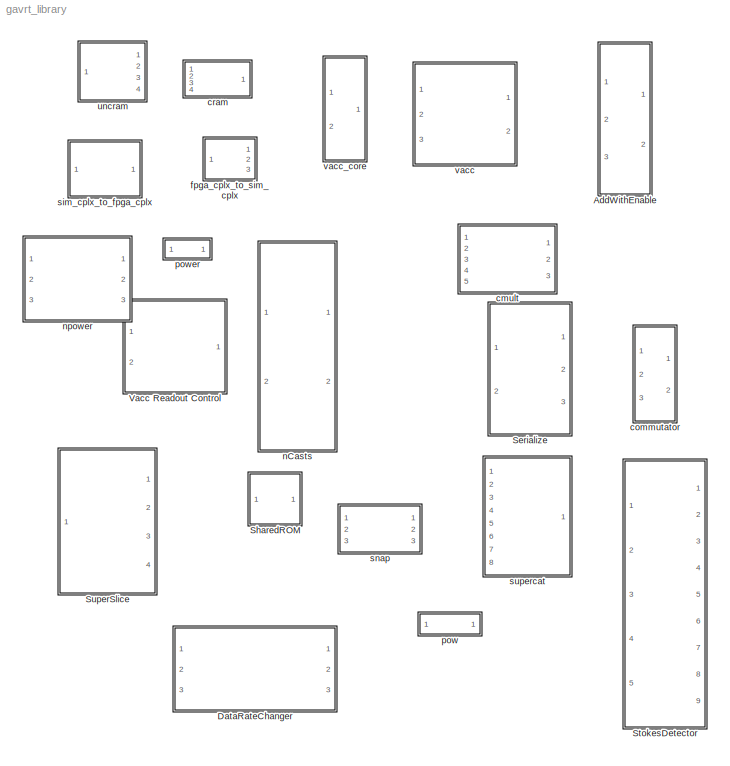
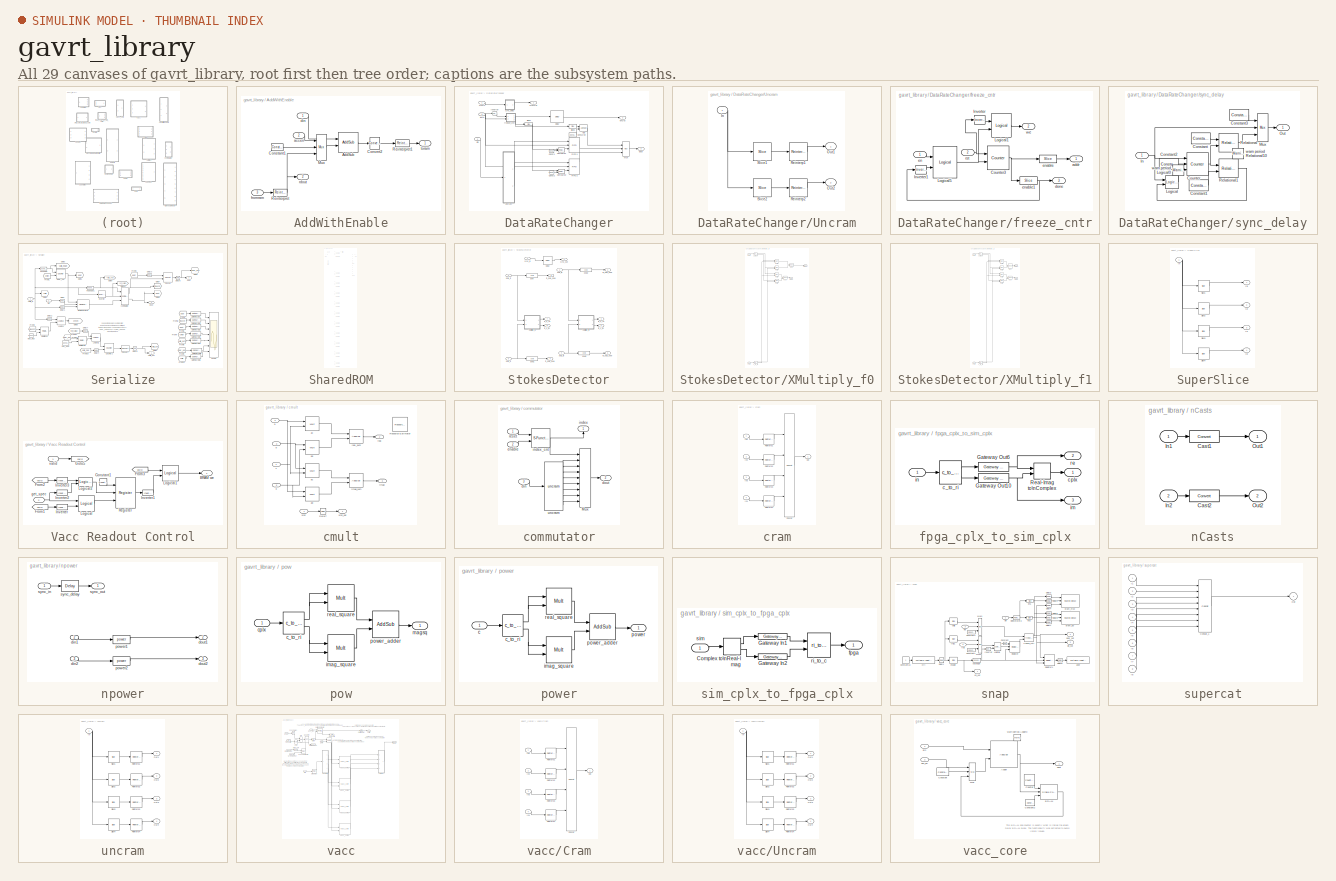
[diagram: thumbnail index - all 29 canvases of the model, root first then tree order]
MODEL gavrt_library
KIND library
BLOCK [SubSystem] AddWithEnable
  FunctionWithSeparateData = off
  MaskCallbackString = ||
  MaskDescription = Adder with enable.\nUsed by the Addressable accumulator addracc.\ntoram = din + accen * fromram  (with latency add_latency)\nrdout is for debugging
  MaskEnableString = on,on,on
  MaskIconFrame = on
  MaskIconOpaque = on
  MaskIconRotate = none
  MaskIconUnits = autoscale
  MaskPromptString = Output bit width|Binary Point|Add Latency
  MaskStyleString = edit,edit,edit
  MaskTabNameString = ,,
  MaskToolTipString = on,on,on
  MaskTunableValueString = on,on,on
  MaskValueString = 18|17|1
  MaskVarAliasString = ,,
  MaskVariables = acc_width=@1;bin_pt=@2;add_latency=@3;
  MaskVisibilityString = on,on,on
  MinAlgLoopOccurrences = off
  Ports = [3, 2]
  RTWSystemCode = Auto
BLOCK [Reference] AddWithEnable/AddSub  REF=xbsIndex_r4/AddSub
  Ports = [2, 1]
  SourceBlock = xbsIndex_r4/AddSub
  SourceType = Xilinx Adder/Subtractor Block
  arith_type = Unsigned
  bin_pt = 2
  block_type = addsub
  block_version = 10.1.2
  dbl_ovrd = off
  en = off
  has_advanced_control = 0
  latency = add_latency
  mode = Addition
  n_bits = 8
  overflow = Wrap
  pipelined = on
  precision = Full
  quantization = Truncate
  sg_icon_stat = 50,51,2,1,white,blue,0,d7118884,right
  sg_mask_display = fprintf('','COMMENT: begin icon graphics');\npatch([0 50 50 0 ],[0 0 51 51 ],[0.77 0.82 0.91]);\npatch([11 3 15 3 11 24 28 32 46 35 24 16 28 16 24 35 46 32 28 24 11 ],[6 14 26 38 46 46 42 46 46 35 46 38 26 14 6 17 6 6 10 6 6 ],[0.98 0.96 0.92]);\nplot([0 50 50 0 0 ],[0 0 51 51 0 ]);\nfprintf('','COMMENT: end icon graphics');\nfprintf('','COMMENT: begin icon text');\ncolor('black');port_label('inpu...<+234ch>  <repeated x5 — deduplicated; at blocks: AddSub, imag_sum, real_sum, power_adder>
  sggui_pos = -1,-1,-1,-1
  use_behavioral_HDL = on
  use_carryin = off
  use_carryout = off
  use_rpm = on
  xl_area = [0, 0, 0, 0, 0, 0, 0]
  xl_use_area = off
BLOCK [Reference] AddWithEnable/Constant1  REF=xbsIndex_r4/Constant
  Ports = [0, 1]
  SourceBlock = xbsIndex_r4/Constant
  SourceType = Xilinx Constant Block Block
  arith_type = Signed (2's comp)
  bin_pt = bin_pt
  block_type = constant
  block_version = 10.1.2
  carry = CIN
  const = 0
  dbl_ovrd = off
  dsp48_infoedit = The use of this block for DSP48 instructions is deprecated.  Please use the Opmode block.
  equ = P=C
  explicit_period = on
  has_advanced_control = 0
  inp1 = P
  inp2 = PCIN>>17
  n_bits = acc_width
  opr = +
  opselect = C
  period = 1
  sg_icon_stat = 30,18,0,1,white,blue,0,72d575a1,right
  sg_mask_display = fprintf('','COMMENT: begin icon graphics');\npatch([0 30 30 0 ],[0 0 18 18 ],[0.77 0.82 0.91]);\npatch([10 7 11 7 10 15 16 17 22 18 14 11 15 11 14 18 22 17 16 15 10 ],[2 5 9 13 16 16 15 16 16 12 16 13 9 5 2 6 2 2 3 2 2 ],[0.98 0.96 0.92]);\nplot([0 30 30 0 0 ],[0 0 18 18 0 ]);\nfprintf('','COMMENT: end icon graphics');\nfprintf('','COMMENT: begin icon text');\ncolor('black');port_label('output',1,...<+46ch>
  sggui_pos = -1,-1,-1,-1
BLOCK [Reference] AddWithEnable/Convert2  REF=xbsIndex_r4/Convert
  Ports = [1, 1]
  SourceBlock = xbsIndex_r4/Convert
  SourceType = Xilinx Type Converter Block
  arith_type = Signed  (2's comp)
  bin_pt = bin_pt
  block_type = convert
  block_version = 10.1.2
  dbl_ovrd = off
  has_advanced_control = 0
  infoedit = Hardware notes: rounding and saturating require hardware resources; truncating and wrapping do not.
  latency = 0
  n_bits = acc_width
  overflow = Wrap
  pipeline = off
  quantization = Truncate
  sg_icon_stat = 25,30,1,1,white,blue,0,74901e60,right
  sg_mask_display = fprintf('','COMMENT: begin icon graphics');\npatch([0 25 25 0 ],[0 0 30 30 ],[0.77 0.82 0.91]);\npatch([6 2 8 2 6 13 15 17 24 18 13 9 14 9 13 18 24 17 15 13 6 ],[5 9 15 21 25 25 23 25 25 19 24 20 15 10 6 11 5 5 7 5 5 ],[0.98 0.96 0.92]);\nplot([0 25 25 0 0 ],[0 0 30 30 0 ]);\nfprintf('','COMMENT: end icon graphics');\nfprintf('','COMMENT: begin icon text');\ncolor('black');port_label('output',1,'c...<+47ch>
  sggui_pos = -1,-1,-1,-1
  xl_area = [0, 0, 0, 0, 0, 0, 0]
  xl_use_area = off
BLOCK [Reference] AddWithEnable/Mux  REF=xbsIndex_r4/Mux
  Ports = [3, 1]
  SourceBlock = xbsIndex_r4/Mux
  SourceType = Xilinx Bus Multiplexer Block
  arith_type = Signed  (2's comp)
  bin_pt = 2
  block_type = mux
  block_version = 10.1.2
  dbl_ovrd = off
  en = off
  has_advanced_control = 0
  inputs = 2
  latency = 0
  n_bits = 8
  overflow = Wrap
  precision = Full
  quantization = Truncate
  sg_icon_stat = 25,66,1,1,white,blue,3,613f58e1,right
  sg_mask_display = fprintf('','COMMENT: begin icon graphics');\npatch([0 25 25 0 ],[0 9.42857 56.5714 66 ],[0.77 0.82 0.91]);\npatch([6 2 8 2 6 13 15 17 24 18 13 9 14 9 13 18 24 17 15 13 6 ],[23 27 33 39 43 43 41 43 43 37 42 38 33 28 24 29 23 23 25 23 23 ],[0.98 0.96 0.92]);\nplot([0 25 25 0 0 ],[0 9.42857 56.5714 66 0 ]);\nfprintf('','COMMENT: end icon graphics');\nfprintf('','COMMENT: begin icon text');\ncolor('bl...<+210ch>
  sggui_pos = -1,-1,-1,-1
  xl_area = [0, 0, 0, 0, 0, 0, 0]
  xl_use_area = off
BLOCK [Reference] AddWithEnable/Reinterpret  REF=xbsIndex_r4/Reinterpret
  Ports = [1, 1]
  SourceBlock = xbsIndex_r4/Reinterpret
  SourceType = Xilinx Type Reinterpreter Block
  arith_type = Signed  (2's comp)
  bin_pt = bin_pt
  block_type = reinterpret
  block_version = 10.1.2
  force_arith_type = on
  force_bin_pt = on
  has_advanced_control = 0
  infoedit = Changes signal type without altering the binary representation.   You can changed the signal between signed and unsigned, and relocate the binary point.<P><P>Hardware notes: In hardware this block costs nothing.<P><P>Example:  Suppose the input is 6 bits wide, signed, with 2 fractional bits, and the output is forced to unsigned with 0 fractional bits.  Then an input of -2.0 (1110.00 in binary 2's ...<+55ch>  <repeated x21 — deduplicated; at blocks: Reinterpret, Reinterpret1, Reinterp1, Reinterp2, Reinterp3, Reinterp4, Reinterpret3>
  sg_icon_stat = 35,18,1,1,white,blue,0,8982c1db,right
  sg_mask_display = fprintf('','COMMENT: begin icon graphics');\npatch([0 35 35 0 ],[0 0 18 18 ],[0.77 0.82 0.91]);\npatch([13 10 14 10 13 18 19 20 25 21 17 14 18 14 17 21 25 20 19 18 13 ],[2 5 9 13 16 16 15 16 16 12 16 13 9 5 2 6 2 2 3 2 2 ],[0.98 0.96 0.92]);\nplot([0 35 35 0 0 ],[0 0 18 18 0 ]);\nfprintf('','COMMENT: end icon graphics');\nfprintf('','COMMENT: begin icon text');\ncolor('black');disp('reinterpret');...<+41ch>
  sggui_pos = -1,-1,-1,-1
BLOCK [Reference] AddWithEnable/Reinterpret1  REF=xbsIndex_r4/Reinterpret
  Ports = [1, 1]
  SourceBlock = xbsIndex_r4/Reinterpret
  SourceType = Xilinx Type Reinterpreter Block
  arith_type = Unsigned
  bin_pt = 0
  block_type = reinterpret
  block_version = 10.1.2
  force_arith_type = on
  force_bin_pt = on
  has_advanced_control = 0
  sg_icon_stat = 35,18,1,1,white,blue,0,8982c1db,right
  sg_mask_display = fprintf('','COMMENT: begin icon graphics');\npatch([0 35 35 0 ],[0 0 18 18 ],[0.77 0.82 0.91]);\npatch([13 10 14 10 13 18 19 20 25 21 17 14 18 14 17 21 25 20 19 18 13 ],[2 5 9 13 16 16 15 16 16 12 16 13 9 5 2 6 2 2 3 2 2 ],[0.98 0.96 0.92]);\nplot([0 35 35 0 0 ],[0 0 18 18 0 ]);\nfprintf('','COMMENT: end icon graphics');\nfprintf('','COMMENT: begin icon text');\ncolor('black');disp('reinterpret');...<+41ch>
  sggui_pos = -1,-1,-1,-1
BLOCK [Inport] AddWithEnable/accen
  IconDisplay = Port number
  OutDataType = sfix(16)
  OutScaling = 2^0
  Port = 2
BLOCK [Inport] AddWithEnable/din
  IconDisplay = Port number
  OutDataType = sfix(16)
  OutScaling = 2^0
BLOCK [Inport] AddWithEnable/fromram
  IconDisplay = Port number
  OutDataType = sfix(16)
  OutScaling = 2^0
  Port = 3
BLOCK [Outport] AddWithEnable/rdout
  IconDisplay = Port number
  OutDataType = sfix(16)
  OutScaling = 2^0
  Port = 2
BLOCK [Outport] AddWithEnable/toram
  IconDisplay = Port number
  OutDataType = sfix(16)
  OutScaling = 2^0
BLOCK [SubSystem] DataRateChanger
  AttributesFormatString = inputs=2, bit_width=8, input length=16, output rate=2^-1
  FunctionWithSeparateData = off
  MaskCallbackString = |||||
  MaskDescription = Stores input data into a FIFO and then outputs the data at the specified data rate, cycling through inputs.\nThus if the input data looks like:\nx0 x1 x2 x3 ...\ny0 y1 y2 y3 ...\nAnd the output rate is 2^-1, the output will look like this:\nx0 x0 y0 y0 x1 x1 y1 y1 x2 x2 y2 y2...\nenIn (enable In) should be high for 2^Input length clocks while the input data is valid.\n*Currently enIn must be high ...<+263ch>
  MaskEnableString = on,on,on,on,on,on
  MaskIconFrame = on
  MaskIconOpaque = on
  MaskIconRotate = none
  MaskIconUnits = autoscale
  MaskInitialization = dataratechanger_init(gcb, 'input_length', input_length,...\n    'ninputs', ninputs, ...\n    'out_rate', out_rate,...\n    'in_bit_width', in_bit_width,...\n    'in_bin_pt', in_bin_pt,...\n    'arith_type',arith_type);
  MaskPromptString = Input Length (2^?)|Number of Simultaneous Inputs (2^?)|Output Rate (2^-?)|Input Bit Width|Input Binary Point|Arithmetic Type (0=Unsigned, 1=Signed)
  MaskStyleString = edit,edit,edit,edit,edit,edit
  MaskTabNameString = ,,,,,
  MaskToolTipString = on,on,on,on,on,on
  MaskTunableValueString = on,on,on,on,on,on
  MaskType = dataratechanger
  MaskValueString = 4|1|1|8|0|0
  MaskVarAliasString = ,,,,,
  MaskVariables = input_length=@1;ninputs=@2;out_rate=@3;in_bit_width=@4;in_bin_pt=@5;arith_type=@6;
  MaskVisibilityString = on,on,on,on,on,on
  MinAlgLoopOccurrences = off
  Ports = [3, 3]
  RTWSystemCode = Auto
  UserData = DataTag0
  UserDataPersistent = on
BLOCK [Reference] DataRateChanger/Add  REF=xbsIndex_r4/AddSub
  Ports = [2, 1]
  SourceBlock = xbsIndex_r4/AddSub
  SourceType = Xilinx Adder/Subtractor Block
  arith_type = Unsigned
  bin_pt = 0
  block_type = addsub
  block_version = 10.1.2
  dbl_ovrd = off
  en = off
  has_advanced_control = 0
  latency = 0
  mode = Addition
  n_bits = 1
  overflow = Wrap
  pipelined = off
  precision = User Defined
  quantization = Truncate
  sg_icon_stat = 35,31,1,1,white,blue,0,36a47907,right
  sg_mask_display = fprintf('','COMMENT: begin icon graphics');\npatch([0 35 35 0 ],[0 0 31 31 ],[0.77 0.82 0.91]);\npatch([9 4 11 4 9 17 19 21 30 23 16 11 18 11 16 23 30 21 19 17 9 ],[3 8 15 22 27 27 25 27 27 20 27 22 15 8 3 10 3 3 5 3 3 ],[0.98 0.96 0.92]);\nplot([0 35 35 0 0 ],[0 0 31 31 0 ]);\nfprintf('','COMMENT: end icon graphics');\nfprintf('','COMMENT: begin icon text');\ncolor('black');port_label('input',1,'...<+157ch>
  sggui_pos = -1,-1,-1,-1
  use_behavioral_HDL = off
  use_carryin = off
  use_carryout = off
  use_rpm = on
  xl_area = [0,0,0,0,0,0,0]
  xl_use_area = off
BLOCK [Reference] DataRateChanger/Compare1  REF=xbsIndex_r4/Relational
  Ports = [2, 1]
  SourceBlock = xbsIndex_r4/Relational
  SourceType = Xilinx Arithmetic Relational Operator Block
  block_type = relational
  block_version = 10.1.2
  dbl_ovrd = off
  en = off
  has_advanced_control = 0
  latency = 0
  mode = a=b
  sg_icon_stat = 30,20,1,1,white,blue,0,1b68ef8e,right
  sg_mask_display = fprintf('','COMMENT: begin icon graphics');\npatch([0 55 55 0 ],[0 0 56 56 ],[0.77 0.82 0.91]);\npatch([13 4 17 4 13 28 32 36 52 40 28 19 32 19 28 40 52 36 32 28 13 ],[6 15 28 41 50 50 46 50 50 38 50 41 28 15 6 18 6 6 10 6 6 ],[0.98 0.96 0.92]);\nplot([0 55 55 0 0 ],[0 0 56 56 0 ]);\nfprintf('','COMMENT: end icon graphics');\nfprintf('','COMMENT: begin icon text');\ncolor('black');port_label('inpu...<+168ch>  <repeated x4 — deduplicated; at blocks: Compare1, Relational, SyncCompare, ValidCompare>
  sggui_pos = -1,-1,-1,-1
  xl_area = [0, 0, 0, 0, 0, 0, 0]
  xl_use_area = off
BLOCK [Reference] DataRateChanger/Compare2  REF=xbsIndex_r4/Relational
  Ports = [2, 1]
  SourceBlock = xbsIndex_r4/Relational
  SourceType = Xilinx Arithmetic Relational Operator Block
  block_type = relational
  block_version = 10.1.2
  dbl_ovrd = off
  en = off
  has_advanced_control = 0
  latency = 0
  mode = a=b
  sg_icon_stat = 30,20,1,1,white,blue,0,1b68ef8e,right
  sg_mask_display = fprintf('','COMMENT: begin icon graphics');\npatch([0 30 30 0 ],[0 0 20 20 ],[0.77 0.82 0.91]);\npatch([9 6 11 6 9 14 15 16 22 18 14 11 16 11 14 18 22 16 15 14 9 ],[2 5 10 15 18 18 17 18 18 14 18 15 10 5 2 6 2 2 3 2 2 ],[0.98 0.96 0.92]);\nplot([0 30 30 0 0 ],[0 0 20 20 0 ]);\nfprintf('','COMMENT: end icon graphics');\nfprintf('','COMMENT: begin icon text');\ncolor('black');port_label('input',1,'a...<+161ch>
  sggui_pos = -1,-1,-1,-1
  xl_area = [0,0,0,0,0,0,0]
  xl_use_area = off
BLOCK [Reference] DataRateChanger/ConsOne  REF=xbsIndex_r4/Constant
  Ports = [0, 1]
  SourceBlock = xbsIndex_r4/Constant
  SourceType = Xilinx Constant Block Block
  arith_type = Unsigned
  bin_pt = 0
  block_type = constant
  block_version = 10.1.2
  carry = CIN
  const = 1
  dbl_ovrd = off
  dsp48_infoedit = The use of this block for DSP48 instructions is deprecated.  Please use the Opmode block.
  equ = P=C
  explicit_period = off
  has_advanced_control = 0
  inp1 = P
  inp2 = PCIN>>17
  n_bits = 1
  opr = +
  opselect = C
  period = 1
  sg_icon_stat = 35,20,1,1,white,blue,0,06094819,right
  sg_mask_display = fprintf('','COMMENT: begin icon graphics');\npatch([0 35 35 0 ],[0 0 20 20 ],[0.77 0.82 0.91]);\npatch([12 9 14 9 12 17 18 19 25 21 17 14 19 14 17 21 25 19 18 17 12 ],[2 5 10 15 18 18 17 18 18 14 18 15 10 5 2 6 2 2 3 2 2 ],[0.98 0.96 0.92]);\nplot([0 35 35 0 0 ],[0 0 20 20 0 ]);\nfprintf('','COMMENT: end icon graphics');\nfprintf('','COMMENT: begin icon text');\ncolor('black');port_label('output',...<+48ch>
  sggui_pos = -1,-1,-1,-1
BLOCK [Reference] DataRateChanger/Const1  REF=xbsIndex_r4/Constant
  Ports = [0, 1]
  SourceBlock = xbsIndex_r4/Constant
  SourceType = Xilinx Constant Block Block
  arith_type = Unsigned
  bin_pt = 0
  block_type = constant
  block_version = 10.1.2
  carry = CIN
  const = 1
  dbl_ovrd = off
  dsp48_infoedit = The use of this block for DSP48 instructions is deprecated.  Please use the Opmode block.
  equ = P=C
  explicit_period = off
  has_advanced_control = 0
  inp1 = P
  inp2 = PCIN>>17
  n_bits = 2
  opr = +
  opselect = C
  period = 1
  sg_icon_stat = 20,16,1,1,white,blue,0,06094819,right
  sg_mask_display = fprintf('','COMMENT: begin icon graphics');\npatch([0 20 20 0 ],[0 0 16 16 ],[0.77 0.82 0.91]);\npatch([6 3 7 3 6 10 11 12 17 13 10 8 12 8 10 13 17 12 11 10 6 ],[2 5 9 13 16 16 15 16 16 12 15 13 9 5 3 6 2 2 3 2 2 ],[0.98 0.96 0.92]);\nplot([0 20 20 0 0 ],[0 0 16 16 0 ]);\nfprintf('','COMMENT: end icon graphics');\nfprintf('','COMMENT: begin icon text');\ncolor('black');port_label('output',1,'1');\...<+40ch>
  sggui_pos = -1,-1,-1,-1
BLOCK [Reference] DataRateChanger/Const2  REF=xbsIndex_r4/Constant
  Ports = [0, 1]
  SourceBlock = xbsIndex_r4/Constant
  SourceType = Xilinx Constant Block Block
  arith_type = Unsigned
  bin_pt = 0
  block_type = constant
  block_version = 10.1.2
  carry = CIN
  const = 3
  dbl_ovrd = off
  dsp48_infoedit = The use of this block for DSP48 instructions is deprecated.  Please use the Opmode block.
  equ = P=C
  explicit_period = off
  has_advanced_control = 0
  inp1 = P
  inp2 = PCIN>>17
  n_bits = 2
  opr = +
  opselect = C
  period = 1
  sg_icon_stat = 20,16,0,1,white,blue,0,bdb1da60,right
  sg_mask_display = fprintf('','COMMENT: begin icon graphics');\npatch([0 20 20 0 ],[0 0 16 16 ],[0.77 0.82 0.91]);\npatch([6 3 7 3 6 10 11 12 17 13 10 8 12 8 10 13 17 12 11 10 6 ],[2 5 9 13 16 16 15 16 16 12 15 13 9 5 3 6 2 2 3 2 2 ],[0.98 0.96 0.92]);\nplot([0 20 20 0 0 ],[0 0 16 16 0 ]);\nfprintf('','COMMENT: end icon graphics');\nfprintf('','COMMENT: begin icon text');\ncolor('black');port_label('output',1,'3');\...<+40ch>
  sggui_pos = -1,-1,-1,-1
BLOCK [Reference] DataRateChanger/Delay  REF=xbsIndex_r4/Delay
  Ports = [1, 1]
  SourceBlock = xbsIndex_r4/Delay
  SourceType = Xilinx Delay Block
  block_type = delay
  block_version = 10.1.2
  dbl_ovrd = off
  en = off
  has_advanced_control = 0
  infoedit = Hardware notes: A delay line is a chain, each link of which is an SRL16 followed by a flip-flop.
  latency = 3
  reg_retiming = off
  sg_icon_stat = 60,56,1,1,white,blue,0,eabd56db,right
  sg_mask_display = fprintf('','COMMENT: begin icon graphics');\npatch([0 60 60 0 ],[0 0 56 56 ],[0.77 0.82 0.91]);\npatch([15 6 19 6 15 30 34 38 54 41 29 20 32 20 29 41 54 38 34 30 15 ],[6 15 28 41 50 50 46 50 50 37 49 40 28 16 7 19 6 6 10 6 6 ],[0.98 0.96 0.92]);\nplot([0 60 60 0 0 ],[0 0 56 56 0 ]);\nfprintf('','COMMENT: end icon graphics');\nfprintf('','COMMENT: begin icon text');\ncolor('black');disp('z^{-3}','t...<+55ch>
  sggui_pos = 568,26,348,255
  xl_area = [0,0,0,0,0,0,0]
  xl_use_area = off
BLOCK [Reference] DataRateChanger/FIFO1  REF=xbsIndex_r4/FIFO
  Ports = [3, 4]
  SourceBlock = xbsIndex_r4/FIFO
  SourceType = Xilinx FIFO Block Block
  almost_empty_thresh = 2
  almost_full_thresh = 14
  block_type = fifo
  block_version = 10.1.2
  dbl_ovrd = off
  depth = 16
  en = off
  explicit_period = off
  has_advanced_control = 0
  mem_type = Block RAM
  percent_nbits = 1
  period = 1
  rst = off
  sg_icon_stat = 50,71,1,1,white,blue,0,65252f4d,right
  sg_mask_display = fprintf('','COMMENT: begin icon graphics');\npatch([0 80 80 0 ],[0 0 114 114 ],[0.77 0.82 0.91]);\npatch([18 5 24 5 18 39 45 51 74 56 39 27 46 27 39 56 74 51 45 39 18 ],[26 39 58 77 90 90 84 90 90 72 89 77 58 39 27 44 26 26 32 26 26 ],[0.98 0.96 0.92]);\nplot([0 80 80 0 0 ],[0 0 114 114 0 ]);\nfprintf('','COMMENT: end icon graphics');\nfprintf('','COMMENT: begin icon text');\ncolor('black');port_l...<+341ch>
  sggui_pos = 20,20,348,419
  use_almost_empty = off
  use_almost_full = off
  use_dcount = off
  xl_area = [0, 0, 0, 0, 0, 0, 0]
  xl_use_area = off
BLOCK [Reference] DataRateChanger/FIFO2  REF=xbsIndex_r4/FIFO
  Ports = [3, 4]
  SourceBlock = xbsIndex_r4/FIFO
  SourceType = Xilinx FIFO Block Block
  almost_empty_thresh = 2
  almost_full_thresh = 14
  block_type = fifo
  block_version = 10.1.2
  dbl_ovrd = off
  depth = 16
  en = off
  has_advanced_control = 0
  mem_type = Block RAM
  percent_nbits = 1
  rst = off
  sg_icon_stat = 50,71,1,1,white,blue,0,65252f4d,right
  sg_mask_display = fprintf('','COMMENT: begin icon graphics');\npatch([0 50 50 0 ],[0 0 71 71 ],[0.77 0.82 0.91]);\npatch([11 3 15 3 11 24 28 32 46 35 24 16 28 16 24 35 46 32 28 24 11 ],[16 24 36 48 56 56 52 56 56 45 56 48 36 24 16 27 16 16 20 16 16 ],[0.98 0.96 0.92]);\nplot([0 50 50 0 0 ],[0 0 71 71 0 ]);\nfprintf('','COMMENT: end icon graphics');\nfprintf('','COMMENT: begin icon text');\ncolor('black');port_label...<+337ch>
  sggui_pos = -1,-1,-1,-1
  use_almost_empty = off
  use_almost_full = off
  use_dcount = off
  xl_area = [0,0,0,0,0,0,0]
  xl_use_area = off
BLOCK [Reference] DataRateChanger/Inverter  REF=xbsIndex_r4/Inverter
  Ports = [1, 1]
  SourceBlock = xbsIndex_r4/Inverter
  SourceType = Xilinx Inverter Block
  block_type = inv
  block_version = 10.1.2
  dbl_ovrd = off
  en = off
  has_advanced_control = 0
  infoedit = Bitwise logical negation (one's complement) operator.
  latency = 0
  sg_icon_stat = 20,16,1,1,white,blue,0,1ab4a85f,right
  sg_mask_display = fprintf('','COMMENT: begin icon graphics');\npatch([0 55 55 0 ],[0 0 58 58 ],[0.77 0.82 0.91]);\npatch([13 4 17 4 13 28 32 36 52 40 28 19 32 19 28 40 52 36 32 28 13 ],[7 16 29 42 51 51 47 51 51 39 51 42 29 16 7 19 7 7 11 7 7 ],[0.98 0.96 0.92]);\nplot([0 55 55 0 0 ],[0 0 58 58 0 ]);\nfprintf('','COMMENT: end icon graphics');\nfprintf('','COMMENT: begin icon text');\ncolor('black');disp('not');\nfp...<+37ch>  <repeated x3 — deduplicated; at blocks: Inverter, Inverter1>
  sggui_pos = -1,-1,-1,-1
  xl_area = [0, 0, 0, 0, 0, 0, 0]
  xl_use_area = off
BLOCK [Reference] DataRateChanger/Mux  REF=xbsIndex_r4/Mux
  Ports = [3, 1]
  SourceBlock = xbsIndex_r4/Mux
  SourceType = Xilinx Bus Multiplexer Block
  arith_type = Unsigned
  bin_pt = 14
  block_type = mux
  block_version = 10.1.2
  dbl_ovrd = off
  en = off
  has_advanced_control = 0
  inputs = 2
  latency = 1
  n_bits = 16
  overflow = Wrap
  precision = Full
  quantization = Truncate
  sg_icon_stat = 30,70,3,1,white,blue,3,03f9c9b9,right
  sg_mask_display = fprintf('','COMMENT: begin icon graphics');\npatch([0 30 30 0 ],[0 10 60 70 ],[0.77 0.82 0.91]);\npatch([7 2 9 2 7 15 17 19 27 20 14 9 15 9 14 20 27 19 17 15 7 ],[23 28 35 42 47 47 45 47 47 40 46 41 35 29 24 30 23 23 25 23 23 ],[0.98 0.96 0.92]);\nplot([0 30 30 0 0 ],[0 10 60 70 0 ]);\nfprintf('','COMMENT: end icon graphics');\nfprintf('','COMMENT: begin icon text');\ncolor('black');port_label('in...<+198ch>
  sggui_pos = -1,-1,-1,-1
  xl_area = [0,0,0,0,0,0,0]
  xl_use_area = off
BLOCK [Reference] DataRateChanger/Slice1  REF=xbsIndex_r4/Slice
  Ports = [1, 1]
  SourceBlock = xbsIndex_r4/Slice
  SourceType = Xilinx Bit Slice Extractor Block
  base0 = LSB of Input
  base1 = MSB of Input
  bit0 = 0
  bit1 = 0
  block_type = slice
  block_version = 10.1.2
  boolean_output = off
  dbl_ovrd = off
  has_advanced_control = 0
  infoedit = Extracts a given range of bits from each input sample and presents it at the output.  The output type is ordinarily unsigned with binary point at zero, but can be Boolean when the slice is one bit wide.<P><P>Hardware notes: In hardware this block costs nothing.  <repeated x26 — deduplicated; at blocks: Slice1, Slice2, enable, enable1, Slice, Slice3, Slice4, en1, en2, trig1, valid, SliceLow>
  mode = Lower Bit Location + Width
  nbits = 2
  sg_icon_stat = 35,16,1,1,white,blue,0,b1026674,right
  sg_mask_display = fprintf('','COMMENT: begin icon graphics');\npatch([0 60 60 0 ],[0 0 30 30 ],[0.77 0.82 0.91]);\npatch([22 17 24 17 22 30 32 34 42 35 29 24 30 24 29 35 42 34 32 30 22 ],[3 8 15 22 27 27 25 27 27 20 26 21 15 9 4 10 3 3 5 3 3 ],[0.98 0.96 0.92]);\nplot([0 60 60 0 0 ],[0 0 30 30 0 ]);\nfprintf('','COMMENT: end icon graphics');\nfprintf('','COMMENT: begin icon text');\ncolor('black');port_label('outpu...<+55ch>  <repeated x11 — deduplicated; at blocks: Slice1, enable, enable1, Slice, Slice2, Slice3, Slice4, SliceLow>
  sggui_pos = 553,61,449,376
BLOCK [Reference] DataRateChanger/Slice2  REF=xbsIndex_r4/Slice
  Ports = [1, 1]
  SourceBlock = xbsIndex_r4/Slice
  SourceType = Xilinx Bit Slice Extractor Block
  base0 = LSB of Input
  base1 = MSB of Input
  bit0 = 1
  bit1 = 0
  block_type = slice
  block_version = 10.1.2
  boolean_output = off
  dbl_ovrd = off
  has_advanced_control = 0
  mode = Lower Bit Location + Width
  nbits = 1
  sg_icon_stat = 35,20,1,1,white,blue,0,b1026674,right
  sg_mask_display = fprintf('','COMMENT: begin icon graphics');\npatch([0 35 35 0 ],[0 0 20 20 ],[0.77 0.82 0.91]);\npatch([12 9 14 9 12 17 18 19 25 21 17 14 19 14 17 21 25 19 18 17 12 ],[2 5 10 15 18 18 17 18 18 14 18 15 10 5 2 6 2 2 3 2 2 ],[0.98 0.96 0.92]);\nplot([0 35 35 0 0 ],[0 0 20 20 0 ]);\nfprintf('','COMMENT: end icon graphics');\nfprintf('','COMMENT: begin icon text');\ncolor('black');port_label('output',...<+52ch>
  sggui_pos = -1,-1,-1,-1
BLOCK [SubSystem] DataRateChanger/Uncram
  AncestorBlock = gavrt_library/uncram
  AttributesFormatString = UFix_8_0
  FunctionWithSeparateData = off
  MaskCallbackString = |||
  MaskDescription = Takes a concatenated input and slices it up into even pieces and reinterprets them as signed fixed point numbers with a given binary point.
  MaskEnableString = on,on,on,on
  MaskIconFrame = on
  MaskIconOpaque = on
  MaskIconRotate = none
  MaskIconUnits = autoscale
  MaskInitialization = uncram_init(gcb, ...\n    'num_slice', num_slice, ...\n    'slice_width', slice_width, ...\n    'bin_pt', bin_pt, ...\n    'arith_type', arith_type);
  MaskPromptString = Number of slices|Slice Width|Output Binary Point|Output Arithmetic Type (0=Unsigned, 1=Signed)
  MaskSelfModifiable = on
  MaskStyleString = edit,edit,edit,edit
  MaskTabNameString = ,,,
  MaskToolTipString = on,on,on,on
  MaskTunableValueString = on,on,on,on
  MaskType = uncram
  MaskValueString = 2|8|0|0
  MaskVarAliasString = ,,,
  MaskVariables = num_slice=@1;slice_width=@2;bin_pt=@3;arith_type=@4;
  MaskVisibilityString = on,on,on,on
  MinAlgLoopOccurrences = off
  Ports = [1, 2]
  RTWSystemCode = Auto
  UserData = DataTag1
  UserDataPersistent = on
BLOCK [Inport] DataRateChanger/Uncram/In
  IconDisplay = Port number
  OutDataType = sfix(16)
  OutScaling = 2^0
BLOCK [Outport] DataRateChanger/Uncram/Out1
  IconDisplay = Port number
  OutDataType = sfix(16)
  OutScaling = 2^0
BLOCK [Outport] DataRateChanger/Uncram/Out2
  IconDisplay = Port number
  Port = 2
BLOCK [Reference] DataRateChanger/Uncram/Reinterp1  REF=xbsIndex_r4/Reinterpret
  Ports = [1, 1]
  SourceBlock = xbsIndex_r4/Reinterpret
  SourceType = Xilinx Type Reinterpreter Block
  arith_type = Unsigned
  bin_pt = 0
  block_type = reinterpret
  block_version = 10.1.2
  force_arith_type = on
  force_bin_pt = on
  has_advanced_control = 0
  sg_icon_stat = 50,50,1,1,white,blue,0,8982c1db,right
  sg_mask_display = fprintf('','COMMENT: begin icon graphics');\npatch([0 50 50 0 ],[0 0 32 32 ],[0.77 0.82 0.91]);\npatch([16 11 18 11 16 24 26 28 37 30 23 18 25 18 23 30 37 28 26 24 16 ],[3 8 15 22 27 27 25 27 27 20 27 22 15 8 3 10 3 3 5 3 3 ],[0.98 0.96 0.92]);\nplot([0 50 50 0 0 ],[0 0 32 32 0 ]);\nfprintf('','COMMENT: end icon graphics');\nfprintf('','COMMENT: begin icon text');\ncolor('black');disp('reinterpret...<+44ch>  <repeated x5 — deduplicated; at blocks: Reinterp1, Reinterp2, Reinterp3, Reinterp4>
  sggui_pos = -1,-1,-1,-1
BLOCK [Reference] DataRateChanger/Uncram/Reinterp2  REF=xbsIndex_r4/Reinterpret
  Ports = [1, 1]
  SourceBlock = xbsIndex_r4/Reinterpret
  SourceType = Xilinx Type Reinterpreter Block
  arith_type = Unsigned
  bin_pt = 0
  block_type = reinterpret
  block_version = 10.1.2
  force_arith_type = on
  force_bin_pt = on
  has_advanced_control = 0
  sg_icon_stat = 50,50,1,1,white,blue,0,8982c1db,right
  sg_mask_display = fprintf('','COMMENT: begin icon graphics');\npatch([0 50 50 0 ],[0 0 50 50 ],[0.77 0.82 0.91]);\npatch([11 3 15 3 11 24 28 32 46 35 24 16 28 16 24 35 46 32 28 24 11 ],[5 13 25 37 45 45 41 45 45 34 45 37 25 13 5 16 5 5 9 5 5 ],[0.98 0.96 0.92]);\nplot([0 50 50 0 0 ],[0 0 50 50 0 ]);\nfprintf('','COMMENT: end icon graphics');\nfprintf('','COMMENT: begin icon text');\ncolor('black');disp('reinterpret...<+44ch>  <repeated x13 — deduplicated; at blocks: Reinterp2, Reinterp1, Reinterp3, Reinterp4>
  sggui_pos = -1,-1,-1,-1
BLOCK [Reference] DataRateChanger/Uncram/Slice1  REF=xbsIndex_r4/Slice
  Ports = [1, 1]
  SourceBlock = xbsIndex_r4/Slice
  SourceType = Xilinx Bit Slice Extractor Block
  base0 = LSB of Input
  base1 = MSB of Input
  bit0 = 0
  bit1 = 0
  block_type = slice
  block_version = 10.1.2
  boolean_output = off
  dbl_ovrd = off
  has_advanced_control = 0
  mode = Upper Bit Location + Width
  nbits = 8
  sg_icon_stat = 50,50,1,1,white,blue,0,b1026674,right
  sggui_pos = -1,-1,-1,-1
BLOCK [Reference] DataRateChanger/Uncram/Slice2  REF=xbsIndex_r4/Slice
  Ports = [1, 1]
  SourceBlock = xbsIndex_r4/Slice
  SourceType = Xilinx Bit Slice Extractor Block
  base0 = LSB of Input
  base1 = MSB of Input
  bit0 = 0
  bit1 = -8
  block_type = slice
  block_version = 10.1.2
  boolean_output = off
  dbl_ovrd = off
  has_advanced_control = 0
  mode = Upper Bit Location + Width
  nbits = 8
  sg_icon_stat = 50,50,1,1,white,blue,0,b1026674,right
  sg_mask_display = fprintf('','COMMENT: begin icon graphics');\npatch([0 50 50 0 ],[0 0 50 50 ],[0.77 0.82 0.91]);\npatch([11 3 15 3 11 24 28 32 46 35 24 16 28 16 24 35 46 32 28 24 11 ],[5 13 25 37 45 45 41 45 45 34 45 37 25 13 5 16 5 5 9 5 5 ],[0.98 0.96 0.92]);\nplot([0 50 50 0 0 ],[0 0 50 50 0 ]);\nfprintf('','COMMENT: end icon graphics');\nfprintf('','COMMENT: begin icon text');\ncolor('black');port_label('outpu...<+55ch>  <repeated x9 — deduplicated; at blocks: Slice2, Slice1, Slice3, Slice4>
  sggui_pos = -1,-1,-1,-1
BLOCK [Inport] DataRateChanger/din
  IconDisplay = Port number
  OutDataType = sfix(16)
  OutScaling = 2^0
  Port = 3
BLOCK [Outport] DataRateChanger/dout
  IconDisplay = Port number
  OutDataType = sfix(16)
  OutScaling = 2^0
  Port = 3
BLOCK [Inport] DataRateChanger/enIn
  IconDisplay = Port number
  OutDataType = sfix(16)
  OutScaling = 2^0
  Port = 2
BLOCK [Outport] DataRateChanger/enOut
  IconDisplay = Port number
  OutDataType = sfix(16)
  OutScaling = 2^0
  Port = 2
BLOCK [SubSystem] DataRateChanger/freeze_cntr
  AncestorBlock = casper_library/Misc/freeze_cntr
  FunctionWithSeparateData = off
  MaskDescription = A freeze counter is an enabled counter which holds its final value (regardless of enables)\nuntil it is reset.
  MaskEnableString = on
  MaskHelp = eval('xlWeb([getenv(''MLIB_ROOT''), ''<path>''])')
  MaskIconFrame = on
  MaskIconOpaque = on
  MaskIconRotate = none
  MaskIconUnits = autoscale
  MaskPromptString = Counter Length (2^?)
  MaskStyleString = edit
  MaskToolTipString = on
  MaskTunableValueString = on
  MaskType = freeze_cntr
  MaskValueString = 6
  MaskVariables = CounterBits=@1;
  MaskVisibilityString = on
  MinAlgLoopOccurrences = off
  Ports = [2, 3]
  RTWSystemCode = Auto
BLOCK [Reference] DataRateChanger/freeze_cntr/Counter3  REF=xbsIndex_r4/Counter
  Ports = [2, 1]
  SourceBlock = xbsIndex_r4/Counter
  SourceType = Xilinx Counter Block
  arith_type = Unsigned
  bin_pt = 0
  block_type = counter
  block_version = 10.1.2
  cnt_by_val = 1
  cnt_to = 1023
  cnt_type = Free Running
  dbl_ovrd = off
  en = on
  explicit_period = on
  has_advanced_control = 0
  infoedit = Hardware notes: Free running counters are the least expensive in hardware.  A count limited counter is implemented by combining a counter with a comparator.
  load_pin = off
  n_bits = CounterBits + 1
  operation = Up
  period = 1
  rst = on
  sg_icon_stat = 50,55,2,1,white,blue,0,46c73e85,right
  sg_mask_display = fprintf('','COMMENT: begin icon graphics');\npatch([0 50 50 0 ],[0 0 55 55 ],[0.77 0.82 0.91]);\npatch([11 3 15 3 11 24 28 32 46 35 24 16 28 16 24 35 46 32 28 24 11 ],[8 16 28 40 48 48 44 48 48 37 48 40 28 16 8 19 8 8 12 8 8 ],[0.98 0.96 0.92]);\nplot([0 50 50 0 0 ],[0 0 55 55 0 ]);\nfprintf('','COMMENT: end icon graphics');\nfprintf('','COMMENT: begin icon text');\ncolor('black');port_label('inpu...<+143ch>
  sggui_pos = -1,-1,-1,-1
  start_count = 0
  use_behavioral_HDL = off
  use_rpm = on
  xl_area = [0, 0, 0, 0, 0, 0, 0]
  xl_use_area = off
BLOCK [Reference] DataRateChanger/freeze_cntr/Inverter  REF=xbsIndex_r4/Inverter
  Ports = [1, 1]
  SourceBlock = xbsIndex_r4/Inverter
  SourceType = Xilinx Inverter Block
  block_type = inv
  block_version = 10.1.2
  dbl_ovrd = off
  en = off
  has_advanced_control = 0
  infoedit = Bitwise logical negation (one's complement) operator.
  latency = 0
  sg_icon_stat = 25,20,1,1,white,blue,0,1ab4a85f,right
  sggui_pos = -1,-1,-1,-1
  xl_area = [0, 0, 0, 0, 0, 0, 0]
  xl_use_area = off
BLOCK [Reference] DataRateChanger/freeze_cntr/Inverter1  REF=xbsIndex_r4/Inverter
  Ports = [1, 1]
  SourceBlock = xbsIndex_r4/Inverter
  SourceType = Xilinx Inverter Block
  block_type = inv
  block_version = 10.1.2
  dbl_ovrd = off
  en = off
  has_advanced_control = 0
  infoedit = Bitwise logical negation (one's complement) operator.
  latency = 0
  sg_icon_stat = 25,20,1,1,white,blue,0,1ab4a85f,right
  sggui_pos = -1,-1,-1,-1
  xl_area = [0, 0, 0, 0, 0, 0, 0]
  xl_use_area = off
BLOCK [Reference] DataRateChanger/freeze_cntr/Logical1  REF=xbsIndex_r4/Logical
  Ports = [2, 1]
  SourceBlock = xbsIndex_r4/Logical
  SourceType = Xilinx Logical Block Block
  align_bp = on
  arith_type = Unsigned
  bin_pt = 2
  block_type = logical
  block_version = 10.1.2
  dbl_ovrd = off
  en = off
  has_advanced_control = 0
  inputs = 2
  latency = 0
  logical_function = AND
  n_bits = 8
  precision = Full
  sg_icon_stat = 45,55,2,1,white,blue,0,087b5522,right
  sg_mask_display = fprintf('','COMMENT: begin icon graphics');\npatch([0 55 55 0 ],[0 0 60 60 ],[0.77 0.82 0.91]);\npatch([13 4 17 4 13 28 32 36 52 40 28 19 32 19 28 40 52 36 32 28 13 ],[8 17 30 43 52 52 48 52 52 40 52 43 30 17 8 20 8 8 12 8 8 ],[0.98 0.96 0.92]);\nplot([0 55 55 0 0 ],[0 0 60 60 0 ]);\nfprintf('','COMMENT: end icon graphics');\nfprintf('','COMMENT: begin icon text');\ncolor('black');disp('\\newlinea...<+76ch>  <repeated x3 — deduplicated; at blocks: Logical1, Logical5, AND>
  sggui_pos = -1,-1,-1,-1
  xl_area = [0, 0, 0, 0, 0, 0, 0]
  xl_use_area = off
BLOCK [Reference] DataRateChanger/freeze_cntr/Logical5  REF=xbsIndex_r4/Logical
  Ports = [2, 1]
  SourceBlock = xbsIndex_r4/Logical
  SourceType = Xilinx Logical Block Block
  align_bp = on
  arith_type = Unsigned
  bin_pt = 2
  block_type = logical
  block_version = 10.1.2
  dbl_ovrd = off
  en = off
  has_advanced_control = 0
  inputs = 2
  latency = 0
  logical_function = AND
  n_bits = 8
  precision = Full
  sg_icon_stat = 55,73,2,1,white,blue,0,087b5522,right
  sggui_pos = -1,-1,-1,-1
  xl_area = [0, 0, 0, 0, 0, 0, 0]
  xl_use_area = off
BLOCK [Outport] DataRateChanger/freeze_cntr/addr
  IconDisplay = Port number
  OutDataType = sfix(16)
  OutScaling = 2^0
BLOCK [Outport] DataRateChanger/freeze_cntr/done
  IconDisplay = Port number
  OutDataType = sfix(16)
  OutScaling = 2^0
  Port = 3
BLOCK [Inport] DataRateChanger/freeze_cntr/en
  IconDisplay = Port number
  OutDataType = sfix(16)
  OutScaling = 2^0
BLOCK [Reference] DataRateChanger/freeze_cntr/enable  REF=xbsIndex_r4/Slice
  Ports = [1, 1]
  SourceBlock = xbsIndex_r4/Slice
  SourceType = Xilinx Bit Slice Extractor Block
  base0 = LSB of Input
  base1 = LSB of Input
  bit0 = 0
  bit1 = 0
  block_type = slice
  block_version = 10.1.2
  boolean_output = off
  dbl_ovrd = off
  has_advanced_control = 0
  mode = Lower Bit Location + Width
  nbits = CounterBits
  sg_icon_stat = 40,18,1,1,white,blue,0,b1026674,right
  sggui_pos = -1,-1,-1,-1
BLOCK [Reference] DataRateChanger/freeze_cntr/enable1  REF=xbsIndex_r4/Slice
  Ports = [1, 1]
  SourceBlock = xbsIndex_r4/Slice
  SourceType = Xilinx Bit Slice Extractor Block
  base0 = LSB of Input
  base1 = MSB of Input
  bit0 = 0
  bit1 = 0
  block_type = slice
  block_version = 10.1.2
  boolean_output = on
  dbl_ovrd = off
  has_advanced_control = 0
  mode = Upper Bit Location + Width
  nbits = 1
  sg_icon_stat = 40,18,1,1,white,blue,0,b1026674,right
  sggui_pos = -1,-1,-1,-1
BLOCK [Inport] DataRateChanger/freeze_cntr/rst
  IconDisplay = Port number
  OutDataType = sfix(16)
  OutScaling = 2^0
  Port = 2
BLOCK [Outport] DataRateChanger/freeze_cntr/we
  IconDisplay = Port number
  OutDataType = sfix(16)
  OutScaling = 2^0
  Port = 2
BLOCK [Inport] DataRateChanger/syncIn
  IconDisplay = Port number
  OutDataType = sfix(16)
  OutScaling = 2^0
BLOCK [Outport] DataRateChanger/syncOut
  IconDisplay = Port number
  OutDataType = sfix(16)
  OutScaling = 2^0
BLOCK [SubSystem] DataRateChanger/sync_delay
  AncestorBlock = casper_library/Delays/sync_delay
  FunctionWithSeparateData = off
  MaskDescription = Delay an infrequent boolean pulse by the specified number of clocks.
  MaskDisplay = fprintf('Z^-%d', DelayLen)
  MaskEnableString = on
  MaskHelp = eval('xlWeb([getenv(''MLIB_ROOT''), ''<path>''])')
  MaskIconFrame = on
  MaskIconOpaque = on
  MaskIconRotate = none
  MaskIconUnits = autoscale
  MaskInitialization = BitWidth = max(2, ceil(log2(DelayLen+1)));\nUseCounter = 1;\nif DelayLen == 0,\n	UseCounter = 0;\nend
  MaskPromptString = Delay Length:
  MaskSelfModifiable = on
  MaskStyleString = edit
  MaskToolTipString = on
  MaskTunableValueString = on
  MaskType = sync_delay
  MaskValueString = 19
  MaskVariables = DelayLen=@1;
  MaskVisibilityString = on
  MinAlgLoopOccurrences = off
  Ports = [1, 1]
  RTWSystemCode = Auto
BLOCK [Reference] DataRateChanger/sync_delay/Constant  REF=xbsIndex_r4/Constant
  Ports = [0, 1]
  SourceBlock = xbsIndex_r4/Constant
  SourceType = Xilinx Constant Block Block
  arith_type = Unsigned
  bin_pt = 0
  block_type = constant
  block_version = 10.1.2
  carry = CIN
  const = 1
  dbl_ovrd = off
  dsp48_infoedit = The use of this block for DSP48 instructions is deprecated.  Please use the Opmode block.
  equ = P=C
  explicit_period = on
  has_advanced_control = 0
  inp1 = P
  inp2 = PCIN>>17
  n_bits = BitWidth
  opr = +
  opselect = C
  period = 1
  sg_icon_stat = 45,26,1,1,white,blue,0,06094819,right
  sg_mask_display = fprintf('','COMMENT: begin icon graphics');\npatch([0 55 55 0 ],[0 0 26 26 ],[0.77 0.82 0.91]);\npatch([20 16 22 16 20 27 29 31 38 32 26 22 28 22 26 32 38 31 29 27 20 ],[3 7 13 19 23 23 21 23 23 17 23 19 13 7 3 9 3 3 5 3 3 ],[0.98 0.96 0.92]);\nplot([0 55 55 0 0 ],[0 0 26 26 0 ]);\nfprintf('','COMMENT: end icon graphics');\nfprintf('','COMMENT: begin icon text');\ncolor('black');port_label('output...<+50ch>  <repeated x6 — deduplicated; at blocks: Constant, Constant1, Constant3, Zero, Constant2>
  sggui_pos = -1,-1,-1,-1
BLOCK [Reference] DataRateChanger/sync_delay/Constant1  REF=xbsIndex_r4/Constant
  Ports = [0, 1]
  SourceBlock = xbsIndex_r4/Constant
  SourceType = Xilinx Constant Block Block
  arith_type = Unsigned
  bin_pt = 0
  block_type = constant
  block_version = 10.1.2
  carry = CIN
  const = 0
  dbl_ovrd = off
  dsp48_infoedit = The use of this block for DSP48 instructions is deprecated.  Please use the Opmode block.
  equ = P=C
  explicit_period = on
  has_advanced_control = 0
  inp1 = P
  inp2 = PCIN>>17
  n_bits = BitWidth
  opr = +
  opselect = C
  period = 1
  sg_icon_stat = 45,26,1,1,white,blue,0,72d575a1,right
  sggui_pos = -1,-1,-1,-1
BLOCK [Reference] DataRateChanger/sync_delay/Constant2  REF=xbsIndex_r4/Constant
  Ports = [0, 1]
  SourceBlock = xbsIndex_r4/Constant
  SourceType = Xilinx Constant Block Block
  arith_type = Unsigned
  bin_pt = 0
  block_type = constant
  block_version = 10.1.2
  carry = CIN
  const = DelayLen
  dbl_ovrd = off
  dsp48_infoedit = The use of this block for DSP48 instructions is deprecated.  Please use the Opmode block.
  equ = P=C
  explicit_period = on
  has_advanced_control = 0
  inp1 = P
  inp2 = PCIN>>17
  n_bits = BitWidth
  opr = +
  opselect = C
  period = 1
  sg_icon_stat = 45,26,1,1,white,blue,0,7157ff2b,right
  sg_mask_display = fprintf('','COMMENT: begin icon graphics');\npatch([0 55 55 0 ],[0 0 26 26 ],[0.77 0.82 0.91]);\npatch([20 16 22 16 20 27 29 31 38 32 26 22 28 22 26 32 38 31 29 27 20 ],[3 7 13 19 23 23 21 23 23 17 23 19 13 7 3 9 3 3 5 3 3 ],[0.98 0.96 0.92]);\nplot([0 55 55 0 0 ],[0 0 26 26 0 ]);\nfprintf('','COMMENT: end icon graphics');\nfprintf('','COMMENT: begin icon text');\ncolor('black');port_label('output...<+51ch>
  sggui_pos = -1,-1,-1,-1
BLOCK [Reference] DataRateChanger/sync_delay/Constant3  REF=xbsIndex_r4/Constant
  Ports = [0, 1]
  SourceBlock = xbsIndex_r4/Constant
  SourceType = Xilinx Constant Block Block
  arith_type = Unsigned
  bin_pt = 0
  block_type = constant
  block_version = 10.1.2
  carry = CIN
  const = UseCounter
  dbl_ovrd = off
  dsp48_infoedit = The use of this block for DSP48 instructions is deprecated.  Please use the Opmode block.
  equ = P=C
  explicit_period = on
  has_advanced_control = 0
  inp1 = P
  inp2 = PCIN>>17
  n_bits = 1
  opr = +
  opselect = C
  period = 1
  sg_icon_stat = 45,26,1,1,white,blue,0,06094819,right
  sggui_pos = -1,-1,-1,-1
BLOCK [Reference] DataRateChanger/sync_delay/Counter  REF=xbsIndex_r4/Counter
  Ports = [3, 1]
  SourceBlock = xbsIndex_r4/Counter
  SourceType = Xilinx Counter Block
  arith_type = Unsigned
  bin_pt = 0
  block_type = counter
  block_version = 10.1.2
  cnt_by_val = 1
  cnt_to = Inf
  cnt_type = Free Running
  dbl_ovrd = off
  en = on
  explicit_period = on
  has_advanced_control = 0
  infoedit = Hardware notes: Free running counters are the least expensive in hardware.  A count limited counter is implemented by combining a counter with a comparator.
  load_pin = on
  n_bits = BitWidth
  operation = Down
  period = 1
  rst = off
  sg_icon_stat = 50,54,1,1,white,blue,0,904db1eb,right
  sg_mask_display = fprintf('','COMMENT: begin icon graphics');\npatch([0 60 60 0 ],[0 0 60 60 ],[0.77 0.82 0.91]);\npatch([14 4 18 4 14 30 34 38 55 42 29 20 35 20 29 42 55 38 34 30 14 ],[6 16 30 44 54 54 50 54 54 41 54 45 30 15 6 19 6 6 10 6 6 ],[0.98 0.96 0.92]);\nplot([0 60 60 0 0 ],[0 0 60 60 0 ]);\nfprintf('','COMMENT: end icon graphics');\nfprintf('','COMMENT: begin icon text');\ncolor('black');port_label('inpu...<+189ch>
  sggui_pos = -1,-1,-1,-1
  start_count = 0
  use_behavioral_HDL = off
  use_rpm = on
  xl_area = [0, 0, 0, 0, 0, 0, 0]
  xl_use_area = off
BLOCK [Inport] DataRateChanger/sync_delay/In
  IconDisplay = Port number
  OutDataType = sfix(16)
  OutScaling = 2^0
BLOCK [Reference] DataRateChanger/sync_delay/Logical  REF=xbsIndex_r4/Logical
  Ports = [2, 1]
  SourceBlock = xbsIndex_r4/Logical
  SourceType = Xilinx Logical Block Block
  align_bp = on
  arith_type = Unsigned
  bin_pt = 2
  block_type = logical
  block_version = 10.1.2
  dbl_ovrd = off
  en = off
  has_advanced_control = 0
  inputs = 2
  latency = 0
  logical_function = OR
  n_bits = 8
  precision = Full
  sg_icon_stat = 30,31,1,1,white,blue,0,f4a65842,right
  sg_mask_display = fprintf('','COMMENT: begin icon graphics');\npatch([0 55 55 0 ],[0 0 60 60 ],[0.77 0.82 0.91]);\npatch([13 4 17 4 13 28 32 36 52 40 28 19 32 19 28 40 52 36 32 28 13 ],[8 17 30 43 52 52 48 52 52 40 52 43 30 17 8 20 8 8 12 8 8 ],[0.98 0.96 0.92]);\nplot([0 55 55 0 0 ],[0 0 60 60 0 ]);\nfprintf('','COMMENT: end icon graphics');\nfprintf('','COMMENT: begin icon text');\ncolor('black');disp('\\newlineo...<+75ch>
  sggui_pos = -1,-1,-1,-1
  xl_area = [0, 0, 0, 0, 0, 0, 0]
  xl_use_area = off
BLOCK [Reference] DataRateChanger/sync_delay/Mux  REF=xbsIndex_r4/Mux
  Ports = [3, 1]
  SourceBlock = xbsIndex_r4/Mux
  SourceType = Xilinx Bus Multiplexer Block
  arith_type = Signed  (2's comp)
  bin_pt = 2
  block_type = mux
  block_version = 10.1.2
  dbl_ovrd = off
  en = off
  has_advanced_control = 0
  inputs = 2
  latency = 0
  n_bits = 8
  overflow = Wrap
  precision = Full
  quantization = Truncate
  sg_icon_stat = 25,66,1,1,white,blue,3,613f58e1,right
  sg_mask_display = fprintf('','COMMENT: begin icon graphics');\npatch([0 45 45 0 ],[0 14.8571 89.1429 104 ],[0.77 0.82 0.91]);\npatch([10 3 14 3 10 22 25 28 41 31 21 14 25 14 21 31 41 28 25 22 10 ],[34 41 52 63 70 70 67 70 70 60 70 63 52 41 34 44 34 34 37 34 34 ],[0.98 0.96 0.92]);\nplot([0 45 45 0 0 ],[0 14.8571 89.1429 104 0 ]);\nfprintf('','COMMENT: end icon graphics');\nfprintf('','COMMENT: begin icon text');\nc...<+218ch>
  sggui_pos = -1,-1,-1,-1
  xl_area = [0, 0, 0, 0, 0, 0, 0]
  xl_use_area = off
BLOCK [Outport] DataRateChanger/sync_delay/Out
  IconDisplay = Port number
  OutDataType = sfix(16)
  OutScaling = 2^0
BLOCK [Reference] DataRateChanger/sync_delay/Relational  REF=xbsIndex_r4/Relational
  Ports = [2, 1]
  SourceBlock = xbsIndex_r4/Relational
  SourceType = Xilinx Arithmetic Relational Operator Block
  block_type = relational
  block_version = 10.1.2
  dbl_ovrd = off
  en = off
  has_advanced_control = 0
  latency = 0
  mode = a=b
  sg_icon_stat = 45,44,1,1,white,blue,0,1b68ef8e,right
  sggui_pos = -1,-1,-1,-1
  xl_area = [0, 0, 0, 0, 0, 0, 0]
  xl_use_area = off
BLOCK [Reference] DataRateChanger/sync_delay/Relational1  REF=xbsIndex_r4/Relational
  Ports = [2, 1]
  SourceBlock = xbsIndex_r4/Relational
  SourceType = Xilinx Arithmetic Relational Operator Block
  block_type = relational
  block_version = 10.1.2
  dbl_ovrd = off
  en = off
  has_advanced_control = 0
  latency = 0
  mode = a!=b
  sg_icon_stat = 45,44,1,1,white,blue,0,1d65505e,right
  sg_mask_display = fprintf('','COMMENT: begin icon graphics');\npatch([0 55 55 0 ],[0 0 56 56 ],[0.77 0.82 0.91]);\npatch([13 4 17 4 13 28 32 36 52 40 28 19 32 19 28 40 52 36 32 28 13 ],[6 15 28 41 50 50 46 50 50 38 50 41 28 15 6 18 6 6 10 6 6 ],[0.98 0.96 0.92]);\nplot([0 55 55 0 0 ],[0 0 56 56 0 ]);\nfprintf('','COMMENT: end icon graphics');\nfprintf('','COMMENT: begin icon text');\ncolor('black');port_label('inpu...<+169ch>
  sggui_pos = -1,-1,-1,-1
  xl_area = [0, 0, 0, 0, 0, 0, 0]
  xl_use_area = off
BLOCK [Reference] DataRateChanger/sync_delay/warn period Logical0  REF=xbsReplacements_r4/Warning
  FunctionWithSeparateData = off
  Ports = []
  RTWMemSecDataConstants = Inherit from model
  RTWMemSecDataInternal = Inherit from model
  RTWMemSecDataParameters = Inherit from model
  RTWMemSecFuncExecute = Inherit from model
  RTWMemSecFuncInitTerm = Inherit from model
  ShowPortLabels = FromPortIcon
  SourceBlock = xbsReplacements_r4/Warning
  SourceType = Unknown
  SystemSampleTime = -1
  period = 1
BLOCK [Reference] DataRateChanger/sync_delay/warn period Relational10  REF=xbsReplacements_r4/Warning
  FunctionWithSeparateData = off
  Ports = []
  RTWMemSecDataConstants = Inherit from model
  RTWMemSecDataInternal = Inherit from model
  RTWMemSecDataParameters = Inherit from model
  RTWMemSecFuncExecute = Inherit from model
  RTWMemSecFuncInitTerm = Inherit from model
  ShowPortLabels = FromPortIcon
  SourceBlock = xbsReplacements_r4/Warning
  SourceType = Unknown
  SystemSampleTime = -1
  period = 1
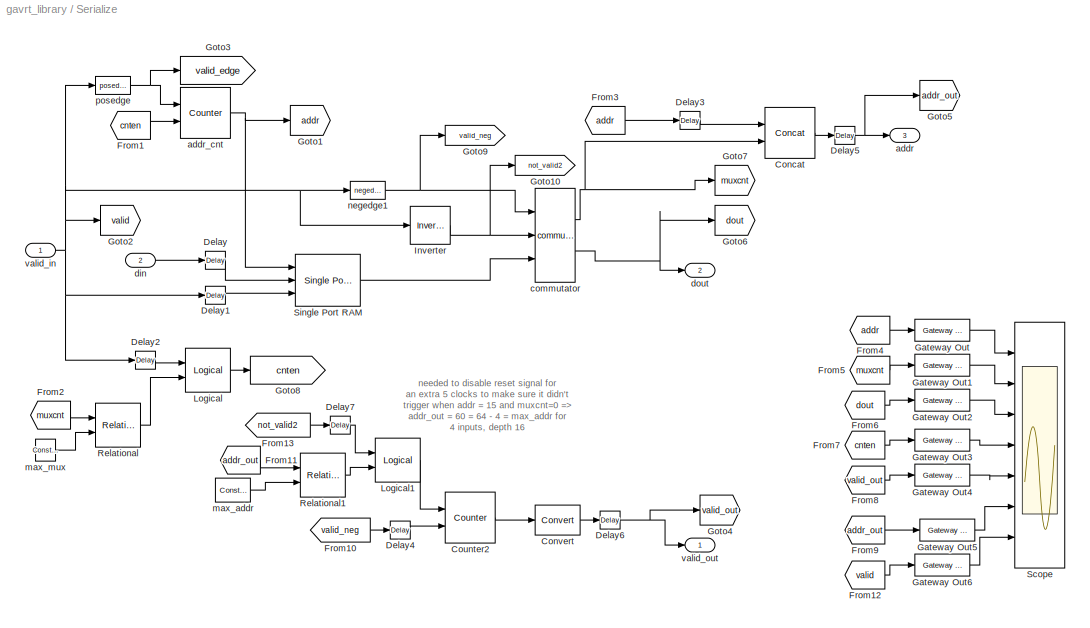
BLOCK [SubSystem] Serialize
  FunctionWithSeparateData = off
  MaskCallbackString = |||
  MaskDescription = Takes concatenated parallel inputs and presents them one by one on dout. Designed to work with the Specacc block directly. valid_in should be high for 'depth' clocks while the data is present on din. After a short delay from when valid_in returns low, valid_out will go high and the first data will be present on dout and addr will be 0. addr increments for each subsequent output data.  dout(0) is t...<+232ch>
  MaskEnableString = on,on,on,on
  MaskIconFrame = on
  MaskIconOpaque = on
  MaskIconRotate = none
  MaskIconUnits = autoscale
  MaskInitialization = serialize_init(gcb, ...\n    'ninputs', ninputs, ...\n    'in_width', in_width, ...\n    'depth', depth, ...\n    'mux_latency', mux_latency);\n
  MaskPromptString = Number of simultaneous inputs|Input data bit width|Depth|Mux Latency
  MaskSelfModifiable = on
  MaskStyleString = edit,edit,edit,edit
  MaskTabNameString = ,,,
  MaskToolTipString = on,on,on,on
  MaskTunableValueString = on,on,on,on
  MaskType = serialize
  MaskValueString = 8|8|32|2
  MaskVarAliasString = ,,,
  MaskVariables = ninputs=@1;in_width=@2;depth=@3;mux_latency=@4;
  MaskVisibilityString = on,on,on,on
  MinAlgLoopOccurrences = off
  Ports = [2, 3]
  RTWSystemCode = Auto
  UserData = DataTag2
  UserDataPersistent = on
BLOCK [Reference] Serialize/Concat  REF=xbsIndex_r4/Concat
  Ports = [2, 1]
  SourceBlock = xbsIndex_r4/Concat
  SourceType = Xilinx Bus Concatenator Block
  block_type = concat
  block_version = 10.1.2
  dbl_ovrd = off
  has_advanced_control = 0
  infoedit = Concatenates two or more inputs.  Output will be cast to an unsigned value with the binary point at zero.
  num_inputs = 2
  sg_icon_stat = 50,51,1,1,white,blue,0,df1e5aba,right
  sg_mask_display = fprintf('','COMMENT: begin icon graphics');\npatch([0 50 50 0 ],[0 0 51 51 ],[0.77 0.82 0.91]);\npatch([11 3 15 3 11 24 28 32 46 35 24 16 28 16 24 35 46 32 28 24 11 ],[6 14 26 38 46 46 42 46 46 35 46 38 26 14 6 17 6 6 10 6 6 ],[0.98 0.96 0.92]);\nplot([0 50 50 0 0 ],[0 0 51 51 0 ]);\nfprintf('','COMMENT: end icon graphics');\nfprintf('','COMMENT: begin icon text');\ncolor('black');port_label('inpu...<+96ch>
  sggui_pos = -1,-1,-1,-1
BLOCK [Reference] Serialize/Convert  REF=xbsIndex_r4/Convert
  Ports = [1, 1]
  SourceBlock = xbsIndex_r4/Convert
  SourceType = Xilinx Type Converter Block
  arith_type = Boolean
  bin_pt = 6
  block_type = convert
  block_version = 10.1.2
  dbl_ovrd = off
  has_advanced_control = 0
  infoedit = Hardware notes: rounding and saturating require hardware resources; truncating and wrapping do not.
  latency = 0
  n_bits = 8
  overflow = Wrap
  pipeline = off
  quantization = Truncate
  sg_icon_stat = 45,30,1,1,white,blue,0,74901e60,right
  sg_mask_display = fprintf('','COMMENT: begin icon graphics');\npatch([0 45 45 0 ],[0 0 30 30 ],[0.77 0.82 0.91]);\npatch([15 10 17 10 15 23 25 27 35 28 22 17 23 17 22 28 35 27 25 23 15 ],[3 8 15 22 27 27 25 27 27 20 26 21 15 9 4 10 3 3 5 3 3 ],[0.98 0.96 0.92]);\nplot([0 45 45 0 0 ],[0 0 30 30 0 ]);\nfprintf('','COMMENT: end icon graphics');\nfprintf('','COMMENT: begin icon text');\ncolor('black');port_label('outpu...<+54ch>  <repeated x3 — deduplicated; at blocks: Convert, Cast1, Cast2>
  sggui_pos = -1,-1,-1,-1
  xl_area = [0, 0, 0, 0, 0, 0, 0]
  xl_use_area = off
BLOCK [Reference] Serialize/Counter2  REF=xbsIndex_r4/Counter
  Ports = [2, 1]
  SourceBlock = xbsIndex_r4/Counter
  SourceType = Xilinx Counter Block
  arith_type = Unsigned
  bin_pt = 0
  block_type = counter
  block_version = 10.1.2
  cnt_by_val = 1
  cnt_to = Inf
  cnt_type = Free Running
  dbl_ovrd = off
  en = on
  explicit_period = off
  has_advanced_control = 0
  infoedit = Hardware notes: Free running counters are the least expensive in hardware.  A count limited counter is implemented by combining a counter with a comparator.
  load_pin = off
  n_bits = 1
  operation = Up
  period = 1
  rst = on
  sg_icon_stat = 50,51,2,1,white,blue,0,46c73e85,right
  sg_mask_display = fprintf('','COMMENT: begin icon graphics');\npatch([0 50 50 0 ],[0 0 51 51 ],[0.77 0.82 0.91]);\npatch([11 3 15 3 11 24 28 32 46 35 24 16 28 16 24 35 46 32 28 24 11 ],[6 14 26 38 46 46 42 46 46 35 46 38 26 14 6 17 6 6 10 6 6 ],[0.98 0.96 0.92]);\nplot([0 50 50 0 0 ],[0 0 51 51 0 ]);\nfprintf('','COMMENT: end icon graphics');\nfprintf('','COMMENT: begin icon text');\ncolor('black');port_label('inpu...<+143ch>
  sggui_pos = -1,-1,-1,-1
  start_count = 0
  use_behavioral_HDL = off
  use_rpm = on
  xl_area = [0, 0, 0, 0, 0, 0, 0]
  xl_use_area = off
BLOCK [Reference] Serialize/Delay  REF=xbsIndex_r4/Delay
  Ports = [1, 1]
  SourceBlock = xbsIndex_r4/Delay
  SourceType = Xilinx Delay Block
  block_type = delay
  block_version = 10.1.2
  dbl_ovrd = off
  en = off
  has_advanced_control = 0
  infoedit = Hardware notes: A delay line is a chain, each link of which is an SRL16 followed by a flip-flop.
  latency = 1
  reg_retiming = off
  sg_icon_stat = 20,18,1,1,white,blue,0,fc531c0e,right
  sg_mask_display = fprintf('','COMMENT: begin icon graphics');\npatch([0 20 20 0 ],[0 0 18 18 ],[0.77 0.82 0.91]);\npatch([5 2 6 2 5 10 11 12 17 13 9 6 10 6 9 13 17 12 11 10 5 ],[2 5 9 13 16 16 15 16 16 12 16 13 9 5 2 6 2 2 3 2 2 ],[0.98 0.96 0.92]);\nplot([0 20 20 0 0 ],[0 0 18 18 0 ]);\nfprintf('','COMMENT: end icon graphics');\nfprintf('','COMMENT: begin icon text');\ncolor('black');disp('z^{-1}','texmode','on');...<+41ch>  <repeated x5 — deduplicated; at blocks: Delay, Delay1, Delay2, Delay3, Delay4>
  sggui_pos = -1,-1,-1,-1
  xl_area = [0, 0, 0, 0, 0, 0, 0]
  xl_use_area = off
BLOCK [Reference] Serialize/Delay1  REF=xbsIndex_r4/Delay
  Ports = [1, 1]
  SourceBlock = xbsIndex_r4/Delay
  SourceType = Xilinx Delay Block
  block_type = delay
  block_version = 10.1.2
  dbl_ovrd = off
  en = off
  has_advanced_control = 0
  infoedit = Hardware notes: A delay line is a chain, each link of which is an SRL16 followed by a flip-flop.
  latency = 1
  reg_retiming = off
  sg_icon_stat = 20,18,1,1,white,blue,0,fc531c0e,right
  sggui_pos = -1,-1,-1,-1
  xl_area = [0, 0, 0, 0, 0, 0, 0]
  xl_use_area = off
BLOCK [Reference] Serialize/Delay2  REF=xbsIndex_r4/Delay
  Ports = [1, 1]
  SourceBlock = xbsIndex_r4/Delay
  SourceType = Xilinx Delay Block
  block_type = delay
  block_version = 10.1.2
  dbl_ovrd = off
  en = off
  has_advanced_control = 0
  infoedit = Hardware notes: A delay line is a chain, each link of which is an SRL16 followed by a flip-flop.
  latency = 1
  reg_retiming = off
  sg_icon_stat = 20,18,1,1,white,blue,0,fc531c0e,right
  sggui_pos = -1,-1,-1,-1
  xl_area = [0, 0, 0, 0, 0, 0, 0]
  xl_use_area = off
BLOCK [Reference] Serialize/Delay3  REF=xbsIndex_r4/Delay
  Ports = [1, 1]
  SourceBlock = xbsIndex_r4/Delay
  SourceType = Xilinx Delay Block
  block_type = delay
  block_version = 10.1.2
  dbl_ovrd = off
  en = off
  has_advanced_control = 0
  infoedit = Hardware notes: A delay line is a chain, each link of which is an SRL16 followed by a flip-flop.
  latency = 1
  reg_retiming = off
  sg_icon_stat = 20,18,1,1,white,blue,0,fc531c0e,right
  sggui_pos = -1,-1,-1,-1
  xl_area = [0, 0, 0, 0, 0, 0, 0]
  xl_use_area = off
BLOCK [Reference] Serialize/Delay4  REF=xbsIndex_r4/Delay
  Ports = [1, 1]
  SourceBlock = xbsIndex_r4/Delay
  SourceType = Xilinx Delay Block
  block_type = delay
  block_version = 10.1.2
  dbl_ovrd = off
  en = off
  has_advanced_control = 0
  infoedit = Hardware notes: A delay line is a chain, each link of which is an SRL16 followed by a flip-flop.
  latency = 1
  reg_retiming = off
  sg_icon_stat = 20,18,1,1,white,blue,0,fc531c0e,right
  sggui_pos = -1,-1,-1,-1
  xl_area = [0, 0, 0, 0, 0, 0, 0]
  xl_use_area = off
BLOCK [Reference] Serialize/Delay5  REF=xbsIndex_r4/Delay
  Ports = [1, 1]
  SourceBlock = xbsIndex_r4/Delay
  SourceType = Xilinx Delay Block
  block_type = delay
  block_version = 10.1.2
  dbl_ovrd = off
  en = off
  has_advanced_control = 0
  infoedit = Hardware notes: A delay line is a chain, each link of which is an SRL16 followed by a flip-flop.
  latency = 2
  reg_retiming = on
  sg_icon_stat = 20,18,1,1,white,blue,0,0a7a6cf1,right
  sg_mask_display = fprintf('','COMMENT: begin icon graphics');\npatch([0 20 20 0 ],[0 0 18 18 ],[0.77 0.82 0.91]);\npatch([5 2 6 2 5 10 11 12 17 13 9 6 10 6 9 13 17 12 11 10 5 ],[2 5 9 13 16 16 15 16 16 12 16 13 9 5 2 6 2 2 3 2 2 ],[0.98 0.96 0.92]);\nplot([0 20 20 0 0 ],[0 0 18 18 0 ]);\nfprintf('','COMMENT: end icon graphics');\nfprintf('','COMMENT: begin icon text');\ncolor('black');disp('z^{-2}','texmode','on');...<+41ch>
  sggui_pos = -1,-1,-1,-1
  xl_area = [0, 0, 0, 0, 0, 0, 0]
  xl_use_area = off
BLOCK [Reference] Serialize/Delay6  REF=xbsIndex_r4/Delay
  Ports = [1, 1]
  SourceBlock = xbsIndex_r4/Delay
  SourceType = Xilinx Delay Block
  block_type = delay
  block_version = 10.1.2
  dbl_ovrd = off
  en = off
  has_advanced_control = 0
  infoedit = Hardware notes: A delay line is a chain, each link of which is an SRL16 followed by a flip-flop.
  latency = 2
  reg_retiming = on
  sg_icon_stat = 20,18,1,1,white,blue,0,0a7a6cf1,right
  sg_mask_display = fprintf('','COMMENT: begin icon graphics');\npatch([0 20 20 0 ],[0 0 18 18 ],[0.77 0.82 0.91]);\npatch([5 2 6 2 5 10 11 12 17 13 9 6 10 6 9 13 17 12 11 10 5 ],[2 5 9 13 16 16 15 16 16 12 16 13 9 5 2 6 2 2 3 2 2 ],[0.98 0.96 0.92]);\nplot([0 20 20 0 0 ],[0 0 18 18 0 ]);\nfprintf('','COMMENT: end icon graphics');\nfprintf('','COMMENT: begin icon text');\ncolor('black');disp('z^{-2}','texmode','on');...<+41ch>
  sggui_pos = -1,-1,-1,-1
  xl_area = [0, 0, 0, 0, 0, 0, 0]
  xl_use_area = off
BLOCK [Reference] Serialize/Delay7  REF=xbsIndex_r4/Delay
  Ports = [1, 1]
  SourceBlock = xbsIndex_r4/Delay
  SourceType = Xilinx Delay Block
  block_type = delay
  block_version = 10.1.2
  dbl_ovrd = off
  en = off
  has_advanced_control = 0
  infoedit = Hardware notes: A delay line is a chain, each link of which is an SRL16 followed by a flip-flop.
  latency = 3
  reg_retiming = off
  sg_icon_stat = 20,18,1,1,white,blue,0,eabd56db,right
  sg_mask_display = fprintf('','COMMENT: begin icon graphics');\npatch([0 20 20 0 ],[0 0 18 18 ],[0.77 0.82 0.91]);\npatch([5 2 6 2 5 10 11 12 17 13 9 6 10 6 9 13 17 12 11 10 5 ],[2 5 9 13 16 16 15 16 16 12 16 13 9 5 2 6 2 2 3 2 2 ],[0.98 0.96 0.92]);\nplot([0 20 20 0 0 ],[0 0 18 18 0 ]);\nfprintf('','COMMENT: end icon graphics');\nfprintf('','COMMENT: begin icon text');\ncolor('black');disp('z^{-3}','texmode','on');...<+41ch>
  sggui_pos = -1,-1,-1,-1
  xl_area = [0, 0, 0, 0, 0, 0, 0]
  xl_use_area = off
BLOCK [From] Serialize/From1
  CloseFcn = tagdialog Close
  GotoTag = cnten
BLOCK [From] Serialize/From10
  CloseFcn = tagdialog Close
  GotoTag = valid_neg
BLOCK [From] Serialize/From11
  CloseFcn = tagdialog Close
  GotoTag = addr_out
BLOCK [From] Serialize/From12
  CloseFcn = tagdialog Close
  GotoTag = valid
BLOCK [From] Serialize/From13
  CloseFcn = tagdialog Close
  GotoTag = not_valid2
BLOCK [From] Serialize/From2
  CloseFcn = tagdialog Close
  GotoTag = muxcnt
BLOCK [From] Serialize/From3
  CloseFcn = tagdialog Close
  GotoTag = addr
BLOCK [From] Serialize/From4
  CloseFcn = tagdialog Close
  GotoTag = addr
BLOCK [From] Serialize/From5
  CloseFcn = tagdialog Close
  GotoTag = muxcnt
BLOCK [From] Serialize/From6
  CloseFcn = tagdialog Close
  GotoTag = dout
BLOCK [From] Serialize/From7
  CloseFcn = tagdialog Close
  GotoTag = cnten
BLOCK [From] Serialize/From8
  CloseFcn = tagdialog Close
  GotoTag = valid_out
BLOCK [From] Serialize/From9
  CloseFcn = tagdialog Close
  GotoTag = addr_out
BLOCK [Reference] Serialize/Gateway Out  REF=xbsIndex_r4/Gateway Out
  LOCs = {}
  Ports = [1, 1]
  SourceBlock = xbsIndex_r4/Gateway Out
  SourceType = Xilinx Gateway Out Block
  block_type = gatewayout
  block_version = 10.1.2
  has_advanced_control = 0
  hdl_port = off
  infoedit = Gateway out block.  Converts Xilinx fixed point inputs into ouputs of type Simulink integer, double, or fixed point.<P><P>Hardware notes:  In hardware these blocks become top level output ports or are discarded, depending on how they are configured.  <repeated x9 — deduplicated; at blocks: Gateway Out, Gateway Out1, Gateway Out2, Gateway Out3, Gateway Out4, Gateway Out5, Gateway Out6, Gateway Out10>
  locs_specified = off
  sg_icon_stat = 55,22,1,1,white,grey,0,b3a044a9,right
  sg_mask_display = fprintf('','COMMENT: begin icon graphics');\npatch([0 55 55 0 ],[0 0 22 22 ],[0.88 0.88 0.88]);\npatch([22 18 23 18 22 28 30 32 38 33 28 25 31 25 28 33 38 32 30 28 22 ],[2 6 11 16 20 20 18 20 20 15 20 17 11 5 2 7 2 2 4 2 2 ],[0.98 0.96 0.92]);\nplot([0 55 55 0 0 ],[0 0 22 22 0 ]);\nfprintf('','COMMENT: end icon graphics');\nfprintf('','COMMENT: begin icon text');\ncolor('black');port_label('input'...<+128ch>  <repeated x7 — deduplicated; at blocks: Gateway Out, Gateway Out1, Gateway Out2, Gateway Out3, Gateway Out4, Gateway Out5, Gateway Out6>
  sggui_pos = -1,-1,-1,-1
  timing_constraint = None
  xl_area = [0, 0, 0, 0, 0, 0, 0]
  xl_use_area = off
BLOCK [Reference] Serialize/Gateway Out1  REF=xbsIndex_r4/Gateway Out
  LOCs = {}
  Ports = [1, 1]
  SourceBlock = xbsIndex_r4/Gateway Out
  SourceType = Xilinx Gateway Out Block
  block_type = gatewayout
  block_version = 10.1.2
  has_advanced_control = 0
  hdl_port = off
  locs_specified = off
  sg_icon_stat = 55,22,1,1,white,grey,0,b3a044a9,right
  sggui_pos = -1,-1,-1,-1
  timing_constraint = None
  xl_area = [0, 0, 0, 0, 0, 0, 0]
  xl_use_area = off
BLOCK [Reference] Serialize/Gateway Out2  REF=xbsIndex_r4/Gateway Out
  LOCs = {}
  Ports = [1, 1]
  SourceBlock = xbsIndex_r4/Gateway Out
  SourceType = Xilinx Gateway Out Block
  block_type = gatewayout
  block_version = 10.1.2
  has_advanced_control = 0
  hdl_port = off
  locs_specified = off
  sg_icon_stat = 55,22,1,1,white,grey,0,b3a044a9,right
  sggui_pos = -1,-1,-1,-1
  timing_constraint = None
  xl_area = [0, 0, 0, 0, 0, 0, 0]
  xl_use_area = off
BLOCK [Reference] Serialize/Gateway Out3  REF=xbsIndex_r4/Gateway Out
  LOCs = {}
  Ports = [1, 1]
  SourceBlock = xbsIndex_r4/Gateway Out
  SourceType = Xilinx Gateway Out Block
  block_type = gatewayout
  block_version = 10.1.2
  has_advanced_control = 0
  hdl_port = off
  locs_specified = off
  sg_icon_stat = 55,22,1,1,white,grey,0,b3a044a9,right
  sggui_pos = -1,-1,-1,-1
  timing_constraint = None
  xl_area = [0, 0, 0, 0, 0, 0, 0]
  xl_use_area = off
BLOCK [Reference] Serialize/Gateway Out4  REF=xbsIndex_r4/Gateway Out
  LOCs = {}
  Ports = [1, 1]
  SourceBlock = xbsIndex_r4/Gateway Out
  SourceType = Xilinx Gateway Out Block
  block_type = gatewayout
  block_version = 10.1.2
  has_advanced_control = 0
  hdl_port = off
  locs_specified = off
  sg_icon_stat = 55,22,1,1,white,grey,0,b3a044a9,right
  sggui_pos = -1,-1,-1,-1
  timing_constraint = None
  xl_area = [0, 0, 0, 0, 0, 0, 0]
  xl_use_area = off
BLOCK [Reference] Serialize/Gateway Out5  REF=xbsIndex_r4/Gateway Out
  LOCs = {}
  Ports = [1, 1]
  SourceBlock = xbsIndex_r4/Gateway Out
  SourceType = Xilinx Gateway Out Block
  block_type = gatewayout
  block_version = 10.1.2
  has_advanced_control = 0
  hdl_port = off
  locs_specified = off
  sg_icon_stat = 55,22,1,1,white,grey,0,b3a044a9,right
  sggui_pos = -1,-1,-1,-1
  timing_constraint = None
  xl_area = [0, 0, 0, 0, 0, 0, 0]
  xl_use_area = off
BLOCK [Reference] Serialize/Gateway Out6  REF=xbsIndex_r4/Gateway Out
  LOCs = {}
  Ports = [1, 1]
  SourceBlock = xbsIndex_r4/Gateway Out
  SourceType = Xilinx Gateway Out Block
  block_type = gatewayout
  block_version = 10.1.2
  has_advanced_control = 0
  hdl_port = off
  locs_specified = off
  sg_icon_stat = 55,22,1,1,white,grey,0,b3a044a9,right
  sggui_pos = -1,-1,-1,-1
  timing_constraint = None
  xl_area = [0, 0, 0, 0, 0, 0, 0]
  xl_use_area = off
BLOCK [Goto] Serialize/Goto1
  GotoTag = addr
  TagVisibility = local
BLOCK [Goto] Serialize/Goto10
  GotoTag = not_valid2
  TagVisibility = local
BLOCK [Goto] Serialize/Goto2
  GotoTag = valid
  TagVisibility = local
BLOCK [Goto] Serialize/Goto3
  GotoTag = valid_edge
  TagVisibility = local
BLOCK [Goto] Serialize/Goto4
  GotoTag = valid_out
  TagVisibility = local
BLOCK [Goto] Serialize/Goto5
  GotoTag = addr_out
  TagVisibility = local
BLOCK [Goto] Serialize/Goto6
  GotoTag = dout
  TagVisibility = local
BLOCK [Goto] Serialize/Goto7
  GotoTag = muxcnt
  TagVisibility = local
BLOCK [Goto] Serialize/Goto8
  GotoTag = cnten
  TagVisibility = local
BLOCK [Goto] Serialize/Goto9
  GotoTag = valid_neg
  TagVisibility = local
BLOCK [Reference] Serialize/Inverter  REF=xbsIndex_r4/Inverter
  Ports = [1, 1]
  SourceBlock = xbsIndex_r4/Inverter
  SourceType = Xilinx Inverter Block
  block_type = inv
  block_version = 10.1.2
  dbl_ovrd = off
  en = off
  has_advanced_control = 0
  infoedit = Bitwise logical negation (one's complement) operator.
  latency = 2
  sg_icon_stat = 40,38,1,1,white,blue,0,e4d75003,right
  sg_mask_display = fprintf('','COMMENT: begin icon graphics');\npatch([0 40 40 0 ],[0 0 38 38 ],[0.77 0.82 0.91]);\npatch([10 4 13 4 10 20 23 26 37 29 21 15 24 15 21 29 37 26 23 20 10 ],[4 10 19 28 34 34 31 34 34 26 34 28 19 10 4 12 4 4 7 4 4 ],[0.98 0.96 0.92]);\nplot([0 40 40 0 0 ],[0 0 38 38 0 ]);\nfprintf('','COMMENT: end icon graphics');\nfprintf('','COMMENT: begin icon text');\ncolor('black');disp('\\newline\\...<+81ch>
  sggui_pos = -1,-1,-1,-1
  xl_area = [0, 0, 0, 0, 0, 0, 0]
  xl_use_area = off
BLOCK [Reference] Serialize/Logical  REF=xbsIndex_r4/Logical
  Ports = [2, 1]
  SourceBlock = xbsIndex_r4/Logical
  SourceType = Xilinx Logical Block Block
  align_bp = on
  arith_type = Unsigned
  bin_pt = 2
  block_type = logical
  block_version = 10.1.2
  dbl_ovrd = off
  en = off
  has_advanced_control = 0
  inputs = 2
  latency = 0
  logical_function = OR
  n_bits = 8
  precision = Full
  sg_icon_stat = 45,44,2,1,white,blue,0,f4a65842,right
  sg_mask_display = fprintf('','COMMENT: begin icon graphics');\npatch([0 45 45 0 ],[0 0 44 44 ],[0.77 0.82 0.91]);\npatch([10 3 13 3 10 22 25 28 40 30 21 14 23 14 21 30 40 28 25 22 10 ],[5 12 22 32 39 39 36 39 39 29 38 31 22 13 6 15 5 5 8 5 5 ],[0.98 0.96 0.92]);\nplot([0 45 45 0 0 ],[0 0 44 44 0 ]);\nfprintf('','COMMENT: end icon graphics');\nfprintf('','COMMENT: begin icon text');\ncolor('black');disp('\\newlineor...<+74ch>
  sggui_pos = -1,-1,-1,-1
  xl_area = [0, 0, 0, 0, 0, 0, 0]
  xl_use_area = off
BLOCK [Reference] Serialize/Logical1  REF=xbsIndex_r4/Logical
  Ports = [2, 1]
  SourceBlock = xbsIndex_r4/Logical
  SourceType = Xilinx Logical Block Block
  align_bp = on
  arith_type = Unsigned
  bin_pt = 2
  block_type = logical
  block_version = 10.1.2
  dbl_ovrd = off
  en = off
  has_advanced_control = 0
  inputs = 2
  latency = 0
  logical_function = AND
  n_bits = 8
  precision = Full
  sg_icon_stat = 45,44,1,1,white,blue,0,087b5522,right
  sg_mask_display = fprintf('','COMMENT: begin icon graphics');\npatch([0 45 45 0 ],[0 0 44 44 ],[0.77 0.82 0.91]);\npatch([10 3 13 3 10 22 25 28 40 30 21 14 23 14 21 30 40 28 25 22 10 ],[5 12 22 32 39 39 36 39 39 29 38 31 22 13 6 15 5 5 8 5 5 ],[0.98 0.96 0.92]);\nplot([0 45 45 0 0 ],[0 0 44 44 0 ]);\nfprintf('','COMMENT: end icon graphics');\nfprintf('','COMMENT: begin icon text');\ncolor('black');disp('\\newlinean...<+75ch>  <repeated x3 — deduplicated; at blocks: Logical1, Logical>
  sggui_pos = -1,-1,-1,-1
  xl_area = [0, 0, 0, 0, 0, 0, 0]
  xl_use_area = off
BLOCK [Reference] Serialize/Relational  REF=xbsIndex_r4/Relational
  Ports = [2, 1]
  SourceBlock = xbsIndex_r4/Relational
  SourceType = Xilinx Arithmetic Relational Operator Block
  block_type = relational
  block_version = 10.1.2
  dbl_ovrd = off
  en = off
  has_advanced_control = 0
  latency = 1
  mode = a=b
  sg_icon_stat = 45,44,1,1,white,blue,0,1cf02e61,right
  sg_mask_display = fprintf('','COMMENT: begin icon graphics');\npatch([0 45 45 0 ],[0 0 44 44 ],[0.77 0.82 0.91]);\npatch([10 3 13 3 10 22 25 28 40 30 21 14 23 14 21 30 40 28 25 22 10 ],[5 12 22 32 39 39 36 39 39 29 38 31 22 13 6 15 5 5 8 5 5 ],[0.98 0.96 0.92]);\nplot([0 45 45 0 0 ],[0 0 44 44 0 ]);\nfprintf('','COMMENT: end icon graphics');\nfprintf('','COMMENT: begin icon text');\ncolor('black');port_label('input...<+167ch>
  sggui_pos = -1,-1,-1,-1
  xl_area = [0, 0, 0, 0, 0, 0, 0]
  xl_use_area = off
BLOCK [Reference] Serialize/Relational1  REF=xbsIndex_r4/Relational
  Ports = [2, 1]
  SourceBlock = xbsIndex_r4/Relational
  SourceType = Xilinx Arithmetic Relational Operator Block
  block_type = relational
  block_version = 10.1.2
  dbl_ovrd = off
  en = off
  has_advanced_control = 0
  latency = 1
  mode = a=b
  sg_icon_stat = 45,44,1,1,white,blue,0,1cf02e61,right
  sg_mask_display = fprintf('','COMMENT: begin icon graphics');\npatch([0 45 45 0 ],[0 0 44 44 ],[0.77 0.82 0.91]);\npatch([10 3 13 3 10 22 25 28 40 30 21 14 23 14 21 30 40 28 25 22 10 ],[5 12 22 32 39 39 36 39 39 29 38 31 22 13 6 15 5 5 8 5 5 ],[0.98 0.96 0.92]);\nplot([0 45 45 0 0 ],[0 0 44 44 0 ]);\nfprintf('','COMMENT: end icon graphics');\nfprintf('','COMMENT: begin icon text');\ncolor('black');port_label('input...<+167ch>
  sggui_pos = -1,-1,-1,-1
  xl_area = [0, 0, 0, 0, 0, 0, 0]
  xl_use_area = off
BLOCK [Scope] Serialize/Scope
  DataFormat = StructureWithTime
  Floating = off
  NumInputPorts = 7
  Ports = [7]
  SampleTime = 0
  TimeRange = 256
  YMax = 5~5~5~5~5~5~5
  YMin = -5~-5~-5~-5~-5~-5~-5
  ZoomMode = xonly
BLOCK [Reference] Serialize/Single Port RAM  REF=xbsIndex_r4/Single Port RAM
  Ports = [3, 1]
  SourceBlock = xbsIndex_r4/Single Port RAM
  SourceType = Xilinx Single Port Random Access Memory Block
  block_type = spram
  block_version = 10.1.2
  dbl_ovrd = off
  depth = 32
  distributed_mem = Block RAM
  en = off
  has_advanced_control = 0
  initVector = sin(pi*(0:15)/16)
  init_reg = 0
  latency = 1
  optimize = Area
  rst = off
  sg_icon_stat = 65,52,1,1,white,blue,0,90951842,right
  sg_mask_display = fprintf('','COMMENT: begin icon graphics');\npatch([0 65 65 0 ],[0 0 52 52 ],[0.77 0.82 0.91]);\npatch([19 10 22 10 19 33 37 41 56 44 33 25 37 25 33 44 56 41 37 33 19 ],[6 15 27 39 48 48 44 48 48 36 47 39 27 15 7 18 6 6 10 6 6 ],[0.98 0.96 0.92]);\nplot([0 65 65 0 0 ],[0 0 52 52 0 ]);\nfprintf('','COMMENT: end icon graphics');\nfprintf('','COMMENT: begin icon text');\ncolor('black');port_label('in...<+193ch>
  sggui_pos = -1,-1,-1,-1
  use_rpm = off
  write_mode = Read After Write
  xl_area = [0, 0, 0, 0, 0, 0, 0]
  xl_use_area = off
BLOCK [Outport] Serialize/addr
  IconDisplay = Port number
  OutDataType = sfix(16)
  OutScaling = 2^0
  Port = 3
BLOCK [Reference] Serialize/addr_cnt  REF=xbsIndex_r4/Counter
  Ports = [2, 1]
  SourceBlock = xbsIndex_r4/Counter
  SourceType = Xilinx Counter Block
  arith_type = Unsigned
  bin_pt = 0
  block_type = counter
  block_version = 10.1.2
  cnt_by_val = 1
  cnt_to = Inf
  cnt_type = Free Running
  dbl_ovrd = off
  en = on
  explicit_period = off
  has_advanced_control = 0
  infoedit = Hardware notes: Free running counters are the least expensive in hardware.  A count limited counter is implemented by combining a counter with a comparator.
  load_pin = off
  n_bits = 5
  operation = Up
  period = 1
  rst = on
  sg_icon_stat = 50,51,2,1,white,blue,0,46c73e85,right
  sg_mask_display = fprintf('','COMMENT: begin icon graphics');\npatch([0 50 50 0 ],[0 0 51 51 ],[0.77 0.82 0.91]);\npatch([11 3 15 3 11 24 28 32 46 35 24 16 28 16 24 35 46 32 28 24 11 ],[6 14 26 38 46 46 42 46 46 35 46 38 26 14 6 17 6 6 10 6 6 ],[0.98 0.96 0.92]);\nplot([0 50 50 0 0 ],[0 0 51 51 0 ]);\nfprintf('','COMMENT: end icon graphics');\nfprintf('','COMMENT: begin icon text');\ncolor('black');port_label('inpu...<+143ch>
  sggui_pos = -1,-1,-1,-1
  start_count = 0
  use_behavioral_HDL = off
  use_rpm = on
  xl_area = [0, 0, 0, 0, 0, 0, 0]
  xl_use_area = off
BLOCK [Reference] Serialize/commutator  REF=gavrt_library/commutator  (lib defined in mdl_32bd0963308d, mdl_3c21e696b527, +1 more)
  FunctionWithSeparateData = off
  Ports = [3, 2]
  RTWMemSecDataConstants = Inherit from model
  RTWMemSecDataInternal = Inherit from model
  RTWMemSecDataParameters = Inherit from model
  RTWMemSecFuncExecute = Inherit from model
  RTWMemSecFuncInitTerm = Inherit from model
  ShowPortLabels = FromPortIcon
  SourceBlock = gavrt_library/commutator
  SourceType = commutator
  SystemSampleTime = -1
  UserData = DataTag3
  UserDataPersistent = on
  in_width = 8
  mux_latency = 2
  ninputs = 8
BLOCK [Inport] Serialize/din
  IconDisplay = Port number
  OutDataType = sfix(16)
  OutScaling = 2^0
  Port = 2
BLOCK [Outport] Serialize/dout
  IconDisplay = Port number
  OutDataType = sfix(16)
  OutScaling = 2^0
  Port = 2
BLOCK [Reference] Serialize/max_addr  REF=xbsIndex_r4/Constant
  Ports = [0, 1]
  SourceBlock = xbsIndex_r4/Constant
  SourceType = Xilinx Constant Block Block
  arith_type = Unsigned
  bin_pt = 0
  block_type = constant
  block_version = 10.1.2
  carry = CIN
  const = 252
  dbl_ovrd = off
  dsp48_infoedit = The use of this block for DSP48 instructions is deprecated.  Please use the Opmode block.
  equ = P=C
  explicit_period = on
  has_advanced_control = 0
  inp1 = P
  inp2 = PCIN>>17
  n_bits = 8
  opr = +
  opselect = C
  period = 1
  sg_icon_stat = 35,24,0,1,white,blue,0,3710bdab,right
  sg_mask_display = fprintf('','COMMENT: begin icon graphics');\npatch([0 35 35 0 ],[0 0 24 24 ],[0.77 0.82 0.91]);\npatch([11 7 13 7 11 17 19 21 28 23 18 14 20 14 18 23 28 21 19 17 11 ],[3 7 13 19 23 23 21 23 23 18 23 19 13 7 3 8 3 3 5 3 3 ],[0.98 0.96 0.92]);\nplot([0 35 35 0 0 ],[0 0 24 24 0 ]);\nfprintf('','COMMENT: end icon graphics');\nfprintf('','COMMENT: begin icon text');\ncolor('black');port_label('output',...<+50ch>
  sggui_pos = -1,-1,-1,-1
BLOCK [Reference] Serialize/max_mux  REF=xbsIndex_r4/Constant
  Ports = [0, 1]
  SourceBlock = xbsIndex_r4/Constant
  SourceType = Xilinx Constant Block Block
  arith_type = Unsigned
  bin_pt = 0
  block_type = constant
  block_version = 10.1.2
  carry = CIN
  const = 5
  dbl_ovrd = off
  dsp48_infoedit = The use of this block for DSP48 instructions is deprecated.  Please use the Opmode block.
  equ = P=C
  explicit_period = on
  has_advanced_control = 0
  inp1 = P
  inp2 = PCIN>>17
  n_bits = 3
  opr = +
  opselect = C
  period = 1
  sg_icon_stat = 20,22,0,1,white,blue,0,bac61723,right
  sg_mask_display = fprintf('','COMMENT: begin icon graphics');\npatch([0 20 20 0 ],[0 0 22 22 ],[0.77 0.82 0.91]);\npatch([4 1 6 1 4 9 10 11 17 13 9 6 11 6 9 13 17 11 10 9 4 ],[3 6 11 16 19 19 18 19 19 15 19 16 11 6 3 7 3 3 4 3 3 ],[0.98 0.96 0.92]);\nplot([0 20 20 0 0 ],[0 0 22 22 0 ]);\nfprintf('','COMMENT: end icon graphics');\nfprintf('','COMMENT: begin icon text');\ncolor('black');port_label('output',1,'5');\nf...<+38ch>
  sggui_pos = -1,-1,-1,-1
BLOCK [Reference] Serialize/negedge1  REF=casper_library/Misc/negedge  (lib defined in mdl_138b2fc3435f, mdl_4ed325b712b3, +2 more)
  FunctionWithSeparateData = off
  Ports = [1, 1]
  RTWMemSecDataConstants = Inherit from model
  RTWMemSecDataInternal = Inherit from model
  RTWMemSecDataParameters = Inherit from model
  RTWMemSecFuncExecute = Inherit from model
  RTWMemSecFuncInitTerm = Inherit from model
  ShowPortLabels = FromPortIcon
  SourceBlock = casper_library/Misc/negedge
  SourceType = negedge
  SystemSampleTime = -1
  Tag = Rising Edge Detector
BLOCK [Reference] Serialize/posedge  REF=casper_library/Misc/posedge  (lib defined in mdl_138b2fc3435f, mdl_4ed325b712b3, +2 more)
  FunctionWithSeparateData = off
  Ports = [1, 1]
  RTWMemSecDataConstants = Inherit from model
  RTWMemSecDataInternal = Inherit from model
  RTWMemSecDataParameters = Inherit from model
  RTWMemSecFuncExecute = Inherit from model
  RTWMemSecFuncInitTerm = Inherit from model
  ShowPortLabels = FromPortIcon
  SourceBlock = casper_library/Misc/posedge
  SourceType = posedge
  SystemSampleTime = -1
  Tag = Rising Edge Detector
BLOCK [Inport] Serialize/valid_in
  IconDisplay = Port number
  OutDataType = sfix(16)
  OutScaling = 2^0
BLOCK [Outport] Serialize/valid_out
  IconDisplay = Port number
  OutDataType = sfix(16)
  OutScaling = 2^0
BLOCK [SubSystem] SharedROM
  FunctionWithSeparateData = off
  MaskCallbackString = |
  MaskEnableString = on,on
  MaskIconFrame = on
  MaskIconOpaque = on
  MaskIconRotate = none
  MaskIconUnits = autoscale
  MaskInitialization = sharedrom_init(gcb,...\n    'outwidth', outwidth,...\n    'depth', depth);
  MaskPromptString = Output Bit Width|Depth
  MaskStyleString = edit,edit
  MaskTabNameString = ,
  MaskToolTipString = on,on
  MaskTunableValueString = on,on
  MaskType = sharedrom
  MaskValueString = 327|8192
  MaskVarAliasString = ,
  MaskVariables = outwidth=@1;depth=@2;
  MaskVisibilityString = on,on
  MinAlgLoopOccurrences = off
  Ports = [1, 1]
  RTWSystemCode = Auto
  UserData = DataTag4
  UserDataPersistent = on
BLOCK [Reference] SharedROM/Concat  REF=xbsIndex_r4/Concat
  Ports = [11, 1]
  SourceBlock = xbsIndex_r4/Concat
  SourceType = Xilinx Bus Concatenator Block
  block_type = concat
  block_version = 10.1.2
  dbl_ovrd = off
  has_advanced_control = 0
  infoedit = Concatenates two or more inputs.  Output will be cast to an unsigned value with the binary point at zero.
  num_inputs = 11
  sg_icon_stat = 30,450,11,1,white,blue,0,4b5f4931,right
  sg_mask_display = fprintf('','COMMENT: begin icon graphics');\npatch([0 30 30 0 ],[0 0 450 450 ],[0.77 0.82 0.91]);\npatch([7 2 9 2 7 15 17 19 27 20 14 9 15 9 14 20 27 19 17 15 7 ],[213 218 225 232 237 237 235 237 237 230 236 231 225 219 214 220 213 213 215 213 213 ],[0.98 0.96 0.92]);\nplot([0 30 30 0 0 ],[0 0 450 450 0 ]);\nfprintf('','COMMENT: end icon graphics');\nfprintf('','COMMENT: begin icon text');\ncolor(...<+122ch>
  sggui_pos = -1,-1,-1,-1
BLOCK [S-Function] SharedROM/Convert
  AncestorBlock = xbsIndex_r3/Convert
  FunctionName = xlconvert
  MaskCallbackString = xlconvertCallback||||||xlMagicCallback|||xlShowIPCallback||||
  MaskDescription = Type conversion block. The input is presented at the output after quantization and overflow effects.\n\nHardware notes: Additional hardware is used when rounding or saturation is selected and output width is less than the input width.
  MaskDisplay = patch([0 iWidth iWidth 0],[0 0 iHeight iHeight] , bg);\npatch(logoX,logoY , fg);\ntext(zstrx,zstry,zstr);\ntext(zstrx+5,zstry+5,zpstr);\nport_label('output',1,'cast');\nplot([0 0 iWidth iWidth 0], [0 iHeight iHeight 0 0]);\n
  MaskEnableString = on,on,on,on,on,on,on,on,on,on,on,on,on,on
  MaskHelp = eval('xlWeb(xlhtmldoclink(''Convert''))');
  MaskIconFrame = off
  MaskIconOpaque = off
  MaskIconRotate = none
  MaskIconUnits = autoscale
  MaskInitialization = [designRoot, family, part, speed, package, simulinkPeriod, sysclkPeriod, dbl_ovrd, trimVbit] = xlSysgenSettings(gcb,1,1);\nif (arith_type==1)\n  bool = 1;\nelse\n  bool = 0;\n  arith_type = arith_type-1;\nend\nzstr=''; zpstr='';\nif latency > 0\n  zstr = 'z';\n  zpstr = sprintf('-%d', latency);\nend\n[bg,fg] = xlcmap('XBlock',dbl_ovrd);\nif (inserted_by_tool)\n  bg = [1.00 0.50 0.25];\nend\niPos =...<+498ch>
  MaskPromptString = Output Type|Number of Bits|Binary Point|Quantization Behavior|Overflow Behavior|Latency|Use Explicit Sample Period|Sample Period|Override with Doubles|---------------------- Show Implementation Parameters -----------------------------------------------------------------------------------|Hidden Parameter:  inserted_by_tool|      Pipeline to Greatest Extent Possible|FPGA Area [Slices, FFs, BRAMs, L...<+59ch>
  MaskStyleString = popup(Boolean|Unsigned|Signed  (2's comp)),edit,edit,popup(Truncate|Round  (unbiased: +/- Inf)|Round  (unbiased: Even Values)),popup(Wrap|Saturate|Error),edit,checkbox,edit,checkbox,checkbox,checkbox,checkbox,edit,checkbox
  MaskTabNameString = ,,,,,,,,,,,,,
  MaskToolTipString = on,on,on,on,on,on,on,on,on,on,on,on,on,on
  MaskTunableValueString = off,off,off,off,off,off,off,off,off,off,off,off,on,on
  MaskType = Xilinx Converter Block
  MaskValueString = Unsigned|13|0|Truncate|Wrap|0|off|1|off|off|off|off|[0, 0, 0, 0, 0, 0, 0]|off
  MaskVarAliasString = ,,,,,,,,,,,,,
  MaskVariables = arith_type=@1;n_bits=@2;bin_pt=@3;quantization=@4;overflow=@5;latency=@6;explicit_period=@7;period=@8;dbl_ovrd=@9;show_param=@10;inserted_by_tool=@11;pipeline=@12;xl_area=@13;xl_use_area=@14;
  MaskVisibilityString = on,on,on,on,on,on,on,off,on,on,off,off,off,off
  Parameters = sfcn_mwsv__
  Ports = [1, 1]
BLOCK [Reference] SharedROM/SharedROM0  REF=xps_library/Shared BRAM  (lib defined in mdl_00b5cec29cd0, mdl_02ab6ecaa3d1, +5 more)
  FunctionWithSeparateData = off
  Ports = [3, 1]
  RTWMemSecDataConstants = Inherit from model
  RTWMemSecDataInternal = Inherit from model
  RTWMemSecDataParameters = Inherit from model
  RTWMemSecFuncExecute = Inherit from model
  RTWMemSecFuncInitTerm = Inherit from model
  ShowPortLabels = FromPortIcon
  SourceBlock = xps_library/Shared BRAM
  SourceType = Unknown
  SystemSampleTime = -1
  Tag = xps:bram
  addr_width = 13
  arith_type = Unsigned
  data_bin_pt = 0
  data_width = 32
  init_vals = [1:2^11]
  sample_rate = 1
BLOCK [Reference] SharedROM/SharedROM1  REF=xps_library/Shared BRAM  (lib defined in mdl_00b5cec29cd0, mdl_02ab6ecaa3d1, +5 more)
  FunctionWithSeparateData = off
  Ports = [3, 1]
  RTWMemSecDataConstants = Inherit from model
  RTWMemSecDataInternal = Inherit from model
  RTWMemSecDataParameters = Inherit from model
  RTWMemSecFuncExecute = Inherit from model
  RTWMemSecFuncInitTerm = Inherit from model
  ShowPortLabels = FromPortIcon
  SourceBlock = xps_library/Shared BRAM
  SourceType = Unknown
  SystemSampleTime = -1
  Tag = xps:bram
  addr_width = 13
  arith_type = Unsigned
  data_bin_pt = 0
  data_width = 32
  init_vals = [1:2^11]
  sample_rate = 1
BLOCK [Reference] SharedROM/SharedROM10  REF=xps_library/Shared BRAM  (lib defined in mdl_00b5cec29cd0, mdl_02ab6ecaa3d1, +5 more)
  FunctionWithSeparateData = off
  Ports = [3, 1]
  RTWMemSecDataConstants = Inherit from model
  RTWMemSecDataInternal = Inherit from model
  RTWMemSecDataParameters = Inherit from model
  RTWMemSecFuncExecute = Inherit from model
  RTWMemSecFuncInitTerm = Inherit from model
  ShowPortLabels = FromPortIcon
  SourceBlock = xps_library/Shared BRAM
  SourceType = Unknown
  SystemSampleTime = -1
  Tag = xps:bram
  addr_width = 13
  arith_type = Unsigned
  data_bin_pt = 0
  data_width = 32
  init_vals = [1:2^11]
  sample_rate = 1
BLOCK [Reference] SharedROM/SharedROM2  REF=xps_library/Shared BRAM  (lib defined in mdl_00b5cec29cd0, mdl_02ab6ecaa3d1, +5 more)
  FunctionWithSeparateData = off
  Ports = [3, 1]
  RTWMemSecDataConstants = Inherit from model
  RTWMemSecDataInternal = Inherit from model
  RTWMemSecDataParameters = Inherit from model
  RTWMemSecFuncExecute = Inherit from model
  RTWMemSecFuncInitTerm = Inherit from model
  ShowPortLabels = FromPortIcon
  SourceBlock = xps_library/Shared BRAM
  SourceType = Unknown
  SystemSampleTime = -1
  Tag = xps:bram
  addr_width = 13
  arith_type = Unsigned
  data_bin_pt = 0
  data_width = 32
  init_vals = [1:2^11]
  sample_rate = 1
BLOCK [Reference] SharedROM/SharedROM3  REF=xps_library/Shared BRAM  (lib defined in mdl_00b5cec29cd0, mdl_02ab6ecaa3d1, +5 more)
  FunctionWithSeparateData = off
  Ports = [3, 1]
  RTWMemSecDataConstants = Inherit from model
  RTWMemSecDataInternal = Inherit from model
  RTWMemSecDataParameters = Inherit from model
  RTWMemSecFuncExecute = Inherit from model
  RTWMemSecFuncInitTerm = Inherit from model
  ShowPortLabels = FromPortIcon
  SourceBlock = xps_library/Shared BRAM
  SourceType = Unknown
  SystemSampleTime = -1
  Tag = xps:bram
  addr_width = 13
  arith_type = Unsigned
  data_bin_pt = 0
  data_width = 32
  init_vals = [1:2^11]
  sample_rate = 1
BLOCK [Reference] SharedROM/SharedROM4  REF=xps_library/Shared BRAM  (lib defined in mdl_00b5cec29cd0, mdl_02ab6ecaa3d1, +5 more)
  FunctionWithSeparateData = off
  Ports = [3, 1]
  RTWMemSecDataConstants = Inherit from model
  RTWMemSecDataInternal = Inherit from model
  RTWMemSecDataParameters = Inherit from model
  RTWMemSecFuncExecute = Inherit from model
  RTWMemSecFuncInitTerm = Inherit from model
  ShowPortLabels = FromPortIcon
  SourceBlock = xps_library/Shared BRAM
  SourceType = Unknown
  SystemSampleTime = -1
  Tag = xps:bram
  addr_width = 13
  arith_type = Unsigned
  data_bin_pt = 0
  data_width = 32
  init_vals = [1:2^11]
  sample_rate = 1
BLOCK [Reference] SharedROM/SharedROM5  REF=xps_library/Shared BRAM  (lib defined in mdl_00b5cec29cd0, mdl_02ab6ecaa3d1, +5 more)
  FunctionWithSeparateData = off
  Ports = [3, 1]
  RTWMemSecDataConstants = Inherit from model
  RTWMemSecDataInternal = Inherit from model
  RTWMemSecDataParameters = Inherit from model
  RTWMemSecFuncExecute = Inherit from model
  RTWMemSecFuncInitTerm = Inherit from model
  ShowPortLabels = FromPortIcon
  SourceBlock = xps_library/Shared BRAM
  SourceType = Unknown
  SystemSampleTime = -1
  Tag = xps:bram
  addr_width = 13
  arith_type = Unsigned
  data_bin_pt = 0
  data_width = 32
  init_vals = [1:2^11]
  sample_rate = 1
BLOCK [Reference] SharedROM/SharedROM6  REF=xps_library/Shared BRAM  (lib defined in mdl_00b5cec29cd0, mdl_02ab6ecaa3d1, +5 more)
  FunctionWithSeparateData = off
  Ports = [3, 1]
  RTWMemSecDataConstants = Inherit from model
  RTWMemSecDataInternal = Inherit from model
  RTWMemSecDataParameters = Inherit from model
  RTWMemSecFuncExecute = Inherit from model
  RTWMemSecFuncInitTerm = Inherit from model
  ShowPortLabels = FromPortIcon
  SourceBlock = xps_library/Shared BRAM
  SourceType = Unknown
  SystemSampleTime = -1
  Tag = xps:bram
  addr_width = 13
  arith_type = Unsigned
  data_bin_pt = 0
  data_width = 32
  init_vals = [1:2^11]
  sample_rate = 1
BLOCK [Reference] SharedROM/SharedROM7  REF=xps_library/Shared BRAM  (lib defined in mdl_00b5cec29cd0, mdl_02ab6ecaa3d1, +5 more)
  FunctionWithSeparateData = off
  Ports = [3, 1]
  RTWMemSecDataConstants = Inherit from model
  RTWMemSecDataInternal = Inherit from model
  RTWMemSecDataParameters = Inherit from model
  RTWMemSecFuncExecute = Inherit from model
  RTWMemSecFuncInitTerm = Inherit from model
  ShowPortLabels = FromPortIcon
  SourceBlock = xps_library/Shared BRAM
  SourceType = Unknown
  SystemSampleTime = -1
  Tag = xps:bram
  addr_width = 13
  arith_type = Unsigned
  data_bin_pt = 0
  data_width = 32
  init_vals = [1:2^11]
  sample_rate = 1
BLOCK [Reference] SharedROM/SharedROM8  REF=xps_library/Shared BRAM  (lib defined in mdl_00b5cec29cd0, mdl_02ab6ecaa3d1, +5 more)
  FunctionWithSeparateData = off
  Ports = [3, 1]
  RTWMemSecDataConstants = Inherit from model
  RTWMemSecDataInternal = Inherit from model
  RTWMemSecDataParameters = Inherit from model
  RTWMemSecFuncExecute = Inherit from model
  RTWMemSecFuncInitTerm = Inherit from model
  ShowPortLabels = FromPortIcon
  SourceBlock = xps_library/Shared BRAM
  SourceType = Unknown
  SystemSampleTime = -1
  Tag = xps:bram
  addr_width = 13
  arith_type = Unsigned
  data_bin_pt = 0
  data_width = 32
  init_vals = [1:2^11]
  sample_rate = 1
BLOCK [Reference] SharedROM/SharedROM9  REF=xps_library/Shared BRAM  (lib defined in mdl_00b5cec29cd0, mdl_02ab6ecaa3d1, +5 more)
  FunctionWithSeparateData = off
  Ports = [3, 1]
  RTWMemSecDataConstants = Inherit from model
  RTWMemSecDataInternal = Inherit from model
  RTWMemSecDataParameters = Inherit from model
  RTWMemSecFuncExecute = Inherit from model
  RTWMemSecFuncInitTerm = Inherit from model
  ShowPortLabels = FromPortIcon
  SourceBlock = xps_library/Shared BRAM
  SourceType = Unknown
  SystemSampleTime = -1
  Tag = xps:bram
  addr_width = 13
  arith_type = Unsigned
  data_bin_pt = 0
  data_width = 32
  init_vals = [1:2^11]
  sample_rate = 1
BLOCK [Reference] SharedROM/Slice  REF=xbsIndex_r4/Slice
  Ports = [1, 1]
  SourceBlock = xbsIndex_r4/Slice
  SourceType = Xilinx Bit Slice Extractor Block
  base0 = LSB of Input
  base1 = MSB of Input
  bit0 = 0
  bit1 = 0
  block_type = slice
  block_version = 10.1.2
  boolean_output = off
  dbl_ovrd = off
  has_advanced_control = 0
  mode = Lower Bit Location + Width
  nbits = 7
  sg_icon_stat = 60,30,1,1,white,blue,0,b1026674,right
  sggui_pos = -1,-1,-1,-1
BLOCK [Inport] SharedROM/addr
  IconDisplay = Port number
  OutDataType = sfix(16)
  OutScaling = 2^0
BLOCK [Reference] SharedROM/dinz  REF=xbsIndex_r4/Constant
  Ports = [0, 1]
  SourceBlock = xbsIndex_r4/Constant
  SourceType = Xilinx Constant Block Block
  arith_type = Unsigned
  bin_pt = 0
  block_type = constant
  block_version = 10.1.2
  carry = CIN
  const = 0
  dbl_ovrd = off
  dsp48_infoedit = The use of this block for DSP48 instructions is deprecated.  Please use the Opmode block.
  equ = P=C
  explicit_period = off
  has_advanced_control = 0
  inp1 = P
  inp2 = PCIN>>17
  n_bits = 32
  opr = +
  opselect = C
  period = 1
  sg_icon_stat = 20,20,0,1,white,blue,0,72d575a1,right
  sg_mask_display = fprintf('','COMMENT: begin icon graphics');\npatch([0 20 20 0 ],[0 0 20 20 ],[0.77 0.82 0.91]);\npatch([4 1 6 1 4 9 10 11 17 13 9 6 11 6 9 13 17 11 10 9 4 ],[2 5 10 15 18 18 17 18 18 14 18 15 10 5 2 6 2 2 3 2 2 ],[0.98 0.96 0.92]);\nplot([0 20 20 0 0 ],[0 0 20 20 0 ]);\nfprintf('','COMMENT: end icon graphics');\nfprintf('','COMMENT: begin icon text');\ncolor('black');port_label('output',1,'0');\nf...<+38ch>
  sggui_pos = -1,-1,-1,-1
BLOCK [Outport] SharedROM/dout
  IconDisplay = Port number
  OutDataType = sfix(16)
  OutScaling = 2^0
BLOCK [Reference] SharedROM/wez  REF=xbsIndex_r4/Constant
  Ports = [0, 1]
  SourceBlock = xbsIndex_r4/Constant
  SourceType = Xilinx Constant Block Block
  arith_type = Boolean
  bin_pt = 0
  block_type = constant
  block_version = 10.1.2
  carry = CIN
  const = 0
  dbl_ovrd = off
  dsp48_infoedit = The use of this block for DSP48 instructions is deprecated.  Please use the Opmode block.
  equ = P=C
  explicit_period = off
  has_advanced_control = 0
  inp1 = P
  inp2 = PCIN>>17
  n_bits = 1
  opr = +
  opselect = C
  period = 1
  sg_icon_stat = 20,20,0,1,white,blue,0,72d575a1,right
  sg_mask_display = fprintf('','COMMENT: begin icon graphics');\npatch([0 20 20 0 ],[0 0 20 20 ],[0.77 0.82 0.91]);\npatch([4 1 6 1 4 9 10 11 17 13 9 6 11 6 9 13 17 11 10 9 4 ],[2 5 10 15 18 18 17 18 18 14 18 15 10 5 2 6 2 2 3 2 2 ],[0.98 0.96 0.92]);\nplot([0 20 20 0 0 ],[0 0 20 20 0 ]);\nfprintf('','COMMENT: end icon graphics');\nfprintf('','COMMENT: begin icon text');\ncolor('black');port_label('output',1,'0');\nf...<+38ch>
  sggui_pos = -1,-1,-1,-1
BLOCK [SubSystem] StokesDetector
  FunctionWithSeparateData = off
  MaskCallbackString = ||
  MaskDescription = Compute cross products necessary for full stokes parameters
  MaskEnableString = on,on,on
  MaskIconFrame = on
  MaskIconOpaque = on
  MaskIconRotate = none
  MaskIconUnits = autoscale
  MaskPromptString = Bit Width|Add Latency|Mult Latency
  MaskStyleString = edit,edit,edit
  MaskTabNameString = ,,
  MaskToolTipString = on,on,on
  MaskTunableValueString = on,on,on
  MaskType = stokes
  MaskValueString = 18|2|3
  MaskVarAliasString = ,,
  MaskVariables = bit_width=@1;add_latency=@2;mult_latency=@3;
  MaskVisibilityString = on,on,on
  MinAlgLoopOccurrences = off
  Ports = [5, 9]
  RTWSystemCode = Auto
BLOCK [Reference] StokesDetector/Delay  REF=xbsIndex_r4/Delay
  Ports = [1, 1]
  SourceBlock = xbsIndex_r4/Delay
  SourceType = Xilinx Delay Block
  block_type = delay
  block_version = 10.1.2
  dbl_ovrd = off
  en = off
  has_advanced_control = 0
  infoedit = Hardware notes: A delay line is a chain, each link of which is an SRL16 followed by a flip-flop.
  latency = add_latency + mult_latency
  reg_retiming = off
  sg_icon_stat = 45,46,1,1,white,blue,0,4edfc01c,right
  sg_mask_display = fprintf('','COMMENT: begin icon graphics');\npatch([0 45 45 0 ],[0 0 46 46 ],[0.77 0.82 0.91]);\npatch([10 3 14 3 10 22 25 28 41 31 21 14 25 14 21 31 41 28 25 22 10 ],[5 12 23 34 41 41 38 41 41 31 41 34 23 12 5 15 5 5 8 5 5 ],[0.98 0.96 0.92]);\nplot([0 45 45 0 0 ],[0 0 46 46 0 ]);\nfprintf('','COMMENT: end icon graphics');\nfprintf('','COMMENT: begin icon text');\ncolor('black');disp('z^{-5}','te...<+54ch>
  sggui_pos = -1,-1,-1,-1
  xl_area = [0, 0, 0, 0, 0, 0, 0]
  xl_use_area = off
BLOCK [SubSystem] StokesDetector/XMultiply_f0
  FunctionWithSeparateData = off
  MaskIconFrame = on
  MaskIconOpaque = on
  MaskIconRotate = none
  MaskIconUnits = autoscale
  MinAlgLoopOccurrences = off
  Ports = [2, 2]
  RTWSystemCode = Auto
BLOCK [Inport] StokesDetector/XMultiply_f0/Pol1
  IconDisplay = Port number
  OutDataType = sfix(16)
  OutScaling = 2^0
BLOCK [Inport] StokesDetector/XMultiply_f0/Pol2
  IconDisplay = Port number
  OutDataType = sfix(16)
  OutScaling = 2^0
  Port = 2
BLOCK [Outport] StokesDetector/XMultiply_f0/X Imag
  IconDisplay = Port number
  OutDataType = sfix(16)
  OutScaling = 2^0
  Port = 2
BLOCK [Outport] StokesDetector/XMultiply_f0/X Real
  IconDisplay = Port number
  OutDataType = sfix(16)
  OutScaling = 2^0
BLOCK [Reference] StokesDetector/XMultiply_f0/add  REF=xbsIndex_r4/AddSub
  Ports = [2, 1]
  SourceBlock = xbsIndex_r4/AddSub
  SourceType = Xilinx Adder/Subtractor Block
  arith_type = Signed  (2's comp)
  bin_pt = 34
  block_type = addsub
  block_version = 10.1.2
  dbl_ovrd = off
  en = off
  has_advanced_control = 0
  latency = 2
  mode = Addition
  n_bits = 36
  overflow = Wrap
  pipelined = on
  precision = User Defined
  quantization = Truncate
  sg_icon_stat = 35,31,2,1,white,blue,0,89752214,right
  sg_mask_display = fprintf('','COMMENT: begin icon graphics');\npatch([0 35 35 0 ],[0 0 31 31 ],[0.77 0.82 0.91]);\npatch([9 4 11 4 9 17 19 21 30 23 16 11 18 11 16 23 30 21 19 17 9 ],[3 8 15 22 27 27 25 27 27 20 27 22 15 8 3 10 3 3 5 3 3 ],[0.98 0.96 0.92]);\nplot([0 35 35 0 0 ],[0 0 31 31 0 ]);\nfprintf('','COMMENT: end icon graphics');\nfprintf('','COMMENT: begin icon text');\ncolor('black');port_label('input',1,'...<+228ch>  <repeated x3 — deduplicated; at blocks: add, sub>
  sggui_pos = -1,-1,-1,-1
  use_behavioral_HDL = on
  use_carryin = off
  use_carryout = off
  use_rpm = on
  xl_area = [0, 0, 0, 0, 0, 0, 0]
  xl_use_area = off
BLOCK [Reference] StokesDetector/XMultiply_f0/c_to_ri  REF=casper_library/Misc/c_to_ri  (lib defined in mdl_138b2fc3435f, mdl_4ed325b712b3, +2 more)
  AttributesFormatString = 18_17 r/i
  FunctionWithSeparateData = off
  Ports = [1, 2]
  RTWMemSecDataConstants = Inherit from model
  RTWMemSecDataInternal = Inherit from model
  RTWMemSecDataParameters = Inherit from model
  RTWMemSecFuncExecute = Inherit from model
  RTWMemSecFuncInitTerm = Inherit from model
  ShowPortLabels = FromPortIcon
  SourceBlock = casper_library/Misc/c_to_ri
  SourceType = c_to_ri
  SystemSampleTime = -1
  UserData = DataTag5
  UserDataPersistent = on
  bin_pt = 17
  n_bits = 18
BLOCK [Reference] StokesDetector/XMultiply_f0/c_to_ri1  REF=casper_library/Misc/c_to_ri  (lib defined in mdl_138b2fc3435f, mdl_4ed325b712b3, +2 more)
  AttributesFormatString = 18_17 r/i
  FunctionWithSeparateData = off
  Ports = [1, 2]
  RTWMemSecDataConstants = Inherit from model
  RTWMemSecDataInternal = Inherit from model
  RTWMemSecDataParameters = Inherit from model
  RTWMemSecFuncExecute = Inherit from model
  RTWMemSecFuncInitTerm = Inherit from model
  ShowPortLabels = FromPortIcon
  SourceBlock = casper_library/Misc/c_to_ri
  SourceType = c_to_ri
  SystemSampleTime = -1
  UserData = DataTag6
  UserDataPersistent = on
  bin_pt = 17
  n_bits = 18
BLOCK [Reference] StokesDetector/XMultiply_f0/mult1  REF=xbsIndex_r4/Mult
  Ports = [2, 1]
  SourceBlock = xbsIndex_r4/Mult
  SourceType = Xilinx Multiplier Block
  arith_type = Signed  (2's comp)
  bin_pt = 2
  block_type = mult
  block_version = 10.1.2
  dbl_ovrd = off
  en = off
  has_advanced_control = 0
  infoedit = Hardware notes: To use the internal pipeline stage of the dedicated multiplier you must select 'Pipeline for maximum performance'.
  latency = 3
  n_bits = 8
  opt = Speed
  optimum_pipeline = off
  overflow = Wrap
  pipeline = on
  placement_style = Rectangular shape
  precision = Full
  quantization = Truncate
  sg_icon_stat = 35,33,1,1,white,blue,0,9c0d74db,right
  sg_mask_display = fprintf('','COMMENT: begin icon graphics');\npatch([0 35 35 0 ],[0 0 33 33 ],[0.77 0.82 0.91]);\npatch([8 3 11 3 8 17 19 21 30 23 16 11 19 11 16 23 30 21 19 17 8 ],[4 9 17 25 30 30 28 30 30 23 30 25 17 9 4 11 4 4 6 4 4 ],[0.98 0.96 0.92]);\nplot([0 35 35 0 0 ],[0 0 33 33 0 ]);\nfprintf('','COMMENT: end icon graphics');\nfprintf('','COMMENT: begin icon text');\ncolor('black');port_label('input',1,'...<+206ch>  <repeated x8 — deduplicated; at blocks: mult1, mult2, mult3, mult4>
  sggui_pos = -1,-1,-1,-1
  use_behavioral_HDL = off
  use_embedded = on
  use_rpm = on
  xl_area = [0, 0, 0, 0, 0, 0, 0]
  xl_use_area = off
BLOCK [Reference] StokesDetector/XMultiply_f0/mult2  REF=xbsIndex_r4/Mult
  Ports = [2, 1]
  SourceBlock = xbsIndex_r4/Mult
  SourceType = Xilinx Multiplier Block
  arith_type = Signed  (2's comp)
  bin_pt = 2
  block_type = mult
  block_version = 10.1.2
  dbl_ovrd = off
  en = off
  has_advanced_control = 0
  infoedit = Hardware notes: To use the internal pipeline stage of the dedicated multiplier you must select 'Pipeline for maximum performance'.
  latency = 3
  n_bits = 8
  opt = Speed
  optimum_pipeline = off
  overflow = Wrap
  pipeline = on
  placement_style = Rectangular shape
  precision = Full
  quantization = Truncate
  sg_icon_stat = 35,33,1,1,white,blue,0,9c0d74db,right
  sggui_pos = -1,-1,-1,-1
  use_behavioral_HDL = off
  use_embedded = on
  use_rpm = on
  xl_area = [0, 0, 0, 0, 0, 0, 0]
  xl_use_area = off
BLOCK [Reference] StokesDetector/XMultiply_f0/mult3  REF=xbsIndex_r4/Mult
  Ports = [2, 1]
  SourceBlock = xbsIndex_r4/Mult
  SourceType = Xilinx Multiplier Block
  arith_type = Signed  (2's comp)
  bin_pt = 2
  block_type = mult
  block_version = 10.1.2
  dbl_ovrd = off
  en = off
  has_advanced_control = 0
  infoedit = Hardware notes: To use the internal pipeline stage of the dedicated multiplier you must select 'Pipeline for maximum performance'.
  latency = 3
  n_bits = 8
  opt = Speed
  optimum_pipeline = off
  overflow = Wrap
  pipeline = on
  placement_style = Rectangular shape
  precision = Full
  quantization = Truncate
  sg_icon_stat = 35,33,1,1,white,blue,0,9c0d74db,right
  sggui_pos = -1,-1,-1,-1
  use_behavioral_HDL = off
  use_embedded = on
  use_rpm = on
  xl_area = [0, 0, 0, 0, 0, 0, 0]
  xl_use_area = off
BLOCK [Reference] StokesDetector/XMultiply_f0/mult4  REF=xbsIndex_r4/Mult
  Ports = [2, 1]
  SourceBlock = xbsIndex_r4/Mult
  SourceType = Xilinx Multiplier Block
  arith_type = Signed  (2's comp)
  bin_pt = 2
  block_type = mult
  block_version = 10.1.2
  dbl_ovrd = off
  en = off
  has_advanced_control = 0
  infoedit = Hardware notes: To use the internal pipeline stage of the dedicated multiplier you must select 'Pipeline for maximum performance'.
  latency = 3
  n_bits = 8
  opt = Speed
  optimum_pipeline = off
  overflow = Wrap
  pipeline = on
  placement_style = Rectangular shape
  precision = Full
  quantization = Truncate
  sg_icon_stat = 35,33,1,1,white,blue,0,9c0d74db,right
  sggui_pos = -1,-1,-1,-1
  use_behavioral_HDL = off
  use_embedded = on
  use_rpm = on
  xl_area = [0, 0, 0, 0, 0, 0, 0]
  xl_use_area = off
BLOCK [Reference] StokesDetector/XMultiply_f0/sub  REF=xbsIndex_r4/AddSub
  Ports = [2, 1]
  SourceBlock = xbsIndex_r4/AddSub
  SourceType = Xilinx Adder/Subtractor Block
  arith_type = Signed  (2's comp)
  bin_pt = 34
  block_type = addsub
  block_version = 10.1.2
  dbl_ovrd = off
  en = off
  has_advanced_control = 0
  latency = 2
  mode = Subtraction
  n_bits = 36
  overflow = Wrap
  pipelined = on
  precision = User Defined
  quantization = Truncate
  sg_icon_stat = 35,31,2,1,white,blue,0,2d46ec54,right
  sggui_pos = -1,-1,-1,-1
  use_behavioral_HDL = on
  use_carryin = off
  use_carryout = off
  use_rpm = on
  xl_area = [0, 0, 0, 0, 0, 0, 0]
  xl_use_area = off
BLOCK [SubSystem] StokesDetector/XMultiply_f1
  FunctionWithSeparateData = off
  MaskIconFrame = on
  MaskIconOpaque = on
  MaskIconRotate = none
  MaskIconUnits = autoscale
  MinAlgLoopOccurrences = off
  Ports = [2, 2]
  RTWSystemCode = Auto
BLOCK [Inport] StokesDetector/XMultiply_f1/Pol1
  IconDisplay = Port number
  OutDataType = sfix(16)
  OutScaling = 2^0
BLOCK [Inport] StokesDetector/XMultiply_f1/Pol2
  IconDisplay = Port number
  OutDataType = sfix(16)
  OutScaling = 2^0
  Port = 2
BLOCK [Outport] StokesDetector/XMultiply_f1/X Imag
  IconDisplay = Port number
  OutDataType = sfix(16)
  OutScaling = 2^0
  Port = 2
BLOCK [Outport] StokesDetector/XMultiply_f1/X Real
  IconDisplay = Port number
  OutDataType = sfix(16)
  OutScaling = 2^0
BLOCK [Reference] StokesDetector/XMultiply_f1/add  REF=xbsIndex_r4/AddSub
  Ports = [2, 1]
  SourceBlock = xbsIndex_r4/AddSub
  SourceType = Xilinx Adder/Subtractor Block
  arith_type = Signed  (2's comp)
  bin_pt = 2*bit_width - 2
  block_type = addsub
  block_version = 10.1.2
  dbl_ovrd = off
  en = off
  has_advanced_control = 0
  latency = add_latency
  mode = Addition
  n_bits = 2*bit_width
  overflow = Wrap
  pipelined = on
  precision = User Defined
  quantization = Truncate
  sg_icon_stat = 35,49,2,1,white,blue,0,89752214,right
  sg_mask_display = fprintf('','COMMENT: begin icon graphics');\npatch([0 35 35 0 ],[0 0 49 49 ],[0.77 0.82 0.91]);\npatch([8 2 10 2 8 17 20 23 33 25 18 13 21 13 18 25 33 23 20 17 8 ],[11 17 25 33 39 39 36 39 39 31 38 33 25 17 12 19 11 11 14 11 11 ],[0.98 0.96 0.92]);\nplot([0 35 35 0 0 ],[0 0 49 49 0 ]);\nfprintf('','COMMENT: end icon graphics');\nfprintf('','COMMENT: begin icon text');\ncolor('black');port_label('i...<+237ch>
  sggui_pos = -1,-1,-1,-1
  use_behavioral_HDL = on
  use_carryin = off
  use_carryout = off
  use_rpm = on
  xl_area = [0, 0, 0, 0, 0, 0, 0]
  xl_use_area = off
BLOCK [Reference] StokesDetector/XMultiply_f1/c_to_ri  REF=casper_library/Misc/c_to_ri  (lib defined in mdl_138b2fc3435f, mdl_4ed325b712b3, +2 more)
  AttributesFormatString = _ r/i
  FunctionWithSeparateData = off
  Ports = [1, 2]
  RTWMemSecDataConstants = Inherit from model
  RTWMemSecDataInternal = Inherit from model
  RTWMemSecDataParameters = Inherit from model
  RTWMemSecFuncExecute = Inherit from model
  RTWMemSecFuncInitTerm = Inherit from model
  ShowPortLabels = FromPortIcon
  SourceBlock = casper_library/Misc/c_to_ri
  SourceType = c_to_ri
  SystemSampleTime = -1
  UserData = DataTag7
  UserDataPersistent = on
  bin_pt = bit_width-1
  n_bits = bit_width
BLOCK [Reference] StokesDetector/XMultiply_f1/c_to_ri1  REF=casper_library/Misc/c_to_ri  (lib defined in mdl_138b2fc3435f, mdl_4ed325b712b3, +2 more)
  AttributesFormatString = _ r/i
  FunctionWithSeparateData = off
  Ports = [1, 2]
  RTWMemSecDataConstants = Inherit from model
  RTWMemSecDataInternal = Inherit from model
  RTWMemSecDataParameters = Inherit from model
  RTWMemSecFuncExecute = Inherit from model
  RTWMemSecFuncInitTerm = Inherit from model
  ShowPortLabels = FromPortIcon
  SourceBlock = casper_library/Misc/c_to_ri
  SourceType = c_to_ri
  SystemSampleTime = -1
  UserData = DataTag8
  UserDataPersistent = on
  bin_pt = bit_width -1
  n_bits = bit_width
BLOCK [Reference] StokesDetector/XMultiply_f1/mult1  REF=xbsIndex_r4/Mult
  Ports = [2, 1]
  SourceBlock = xbsIndex_r4/Mult
  SourceType = Xilinx Multiplier Block
  arith_type = Signed  (2's comp)
  bin_pt = 2
  block_type = mult
  block_version = 10.1.2
  dbl_ovrd = off
  en = off
  has_advanced_control = 0
  infoedit = Hardware notes: To use the internal pipeline stage of the dedicated multiplier you must select 'Pipeline for maximum performance'.
  latency = mult_latency
  n_bits = 8
  opt = Speed
  optimum_pipeline = off
  overflow = Wrap
  pipeline = on
  placement_style = Rectangular shape
  precision = Full
  quantization = Truncate
  sg_icon_stat = 35,33,1,1,white,blue,0,9c0d74db,right
  sggui_pos = -1,-1,-1,-1
  use_behavioral_HDL = off
  use_embedded = on
  use_rpm = on
  xl_area = [0, 0, 0, 0, 0, 0, 0]
  xl_use_area = off
BLOCK [Reference] StokesDetector/XMultiply_f1/mult2  REF=xbsIndex_r4/Mult
  Ports = [2, 1]
  SourceBlock = xbsIndex_r4/Mult
  SourceType = Xilinx Multiplier Block
  arith_type = Signed  (2's comp)
  bin_pt = 2
  block_type = mult
  block_version = 10.1.2
  dbl_ovrd = off
  en = off
  has_advanced_control = 0
  infoedit = Hardware notes: To use the internal pipeline stage of the dedicated multiplier you must select 'Pipeline for maximum performance'.
  latency = mult_latency
  n_bits = 8
  opt = Speed
  optimum_pipeline = off
  overflow = Wrap
  pipeline = on
  placement_style = Rectangular shape
  precision = Full
  quantization = Truncate
  sg_icon_stat = 35,33,1,1,white,blue,0,9c0d74db,right
  sggui_pos = -1,-1,-1,-1
  use_behavioral_HDL = off
  use_embedded = on
  use_rpm = on
  xl_area = [0, 0, 0, 0, 0, 0, 0]
  xl_use_area = off
BLOCK [Reference] StokesDetector/XMultiply_f1/mult3  REF=xbsIndex_r4/Mult
  Ports = [2, 1]
  SourceBlock = xbsIndex_r4/Mult
  SourceType = Xilinx Multiplier Block
  arith_type = Signed  (2's comp)
  bin_pt = 2
  block_type = mult
  block_version = 10.1.2
  dbl_ovrd = off
  en = off
  has_advanced_control = 0
  infoedit = Hardware notes: To use the internal pipeline stage of the dedicated multiplier you must select 'Pipeline for maximum performance'.
  latency = mult_latency
  n_bits = 8
  opt = Speed
  optimum_pipeline = off
  overflow = Wrap
  pipeline = on
  placement_style = Rectangular shape
  precision = Full
  quantization = Truncate
  sg_icon_stat = 35,33,1,1,white,blue,0,9c0d74db,right
  sggui_pos = -1,-1,-1,-1
  use_behavioral_HDL = off
  use_embedded = on
  use_rpm = on
  xl_area = [0, 0, 0, 0, 0, 0, 0]
  xl_use_area = off
BLOCK [Reference] StokesDetector/XMultiply_f1/mult4  REF=xbsIndex_r4/Mult
  Ports = [2, 1]
  SourceBlock = xbsIndex_r4/Mult
  SourceType = Xilinx Multiplier Block
  arith_type = Signed  (2's comp)
  bin_pt = 2
  block_type = mult
  block_version = 10.1.2
  dbl_ovrd = off
  en = off
  has_advanced_control = 0
  infoedit = Hardware notes: To use the internal pipeline stage of the dedicated multiplier you must select 'Pipeline for maximum performance'.
  latency = mult_latency
  n_bits = 8
  opt = Speed
  optimum_pipeline = off
  overflow = Wrap
  pipeline = on
  placement_style = Rectangular shape
  precision = Full
  quantization = Truncate
  sg_icon_stat = 35,33,1,1,white,blue,0,9c0d74db,right
  sggui_pos = -1,-1,-1,-1
  use_behavioral_HDL = off
  use_embedded = on
  use_rpm = on
  xl_area = [0, 0, 0, 0, 0, 0, 0]
  xl_use_area = off
BLOCK [Reference] StokesDetector/XMultiply_f1/sub  REF=xbsIndex_r4/AddSub
  Ports = [2, 1]
  SourceBlock = xbsIndex_r4/AddSub
  SourceType = Xilinx Adder/Subtractor Block
  arith_type = Signed  (2's comp)
  bin_pt = 2 * bit_width - 2
  block_type = addsub
  block_version = 10.1.2
  dbl_ovrd = off
  en = off
  has_advanced_control = 0
  latency = add_latency
  mode = Subtraction
  n_bits = 2 * bit_width
  overflow = Wrap
  pipelined = on
  precision = User Defined
  quantization = Truncate
  sg_icon_stat = 35,31,2,1,white,blue,0,2d46ec54,right
  sggui_pos = -1,-1,-1,-1
  use_behavioral_HDL = on
  use_carryin = off
  use_carryout = off
  use_rpm = on
  xl_area = [0, 0, 0, 0, 0, 0, 0]
  xl_use_area = off
BLOCK [Outport] StokesDetector/f0_pol1_pow
  IconDisplay = Port number
  OutDataType = sfix(16)
  OutScaling = 2^0
  Port = 2
BLOCK [Outport] StokesDetector/f0_pol2_pow
  IconDisplay = Port number
  OutDataType = sfix(16)
  OutScaling = 2^0
  Port = 5
BLOCK [Outport] StokesDetector/f0_x_im
  IconDisplay = Port number
  OutDataType = sfix(16)
  OutScaling = 2^0
  Port = 4
BLOCK [Outport] StokesDetector/f0_x_re
  IconDisplay = Port number
  OutDataType = sfix(16)
  OutScaling = 2^0
  Port = 3
BLOCK [Outport] StokesDetector/f1_pol1_pow
  IconDisplay = Port number
  OutDataType = sfix(16)
  OutScaling = 2^0
  Port = 6
BLOCK [Outport] StokesDetector/f1_pol2_pow
  IconDisplay = Port number
  OutDataType = sfix(16)
  OutScaling = 2^0
  Port = 9
BLOCK [Outport] StokesDetector/f1_x_im
  IconDisplay = Port number
  OutDataType = sfix(16)
  OutScaling = 2^0
  Port = 8
BLOCK [Outport] StokesDetector/f1_x_re
  IconDisplay = Port number
  OutDataType = sfix(16)
  OutScaling = 2^0
  Port = 7
BLOCK [Inport] StokesDetector/pol1_f0
  IconDisplay = Port number
  OutDataType = sfix(16)
  OutScaling = 2^0
  Port = 2
BLOCK [Inport] StokesDetector/pol1_f1
  IconDisplay = Port number
  OutDataType = sfix(16)
  OutScaling = 2^0
  Port = 3
BLOCK [Inport] StokesDetector/pol2_f0
  IconDisplay = Port number
  OutDataType = sfix(16)
  OutScaling = 2^0
  Port = 4
BLOCK [Inport] StokesDetector/pol2_f1
  IconDisplay = Port number
  OutDataType = sfix(16)
  OutScaling = 2^0
  Port = 5
BLOCK [Reference] StokesDetector/pow  REF=gavrt_library/pow  (lib defined in mdl_32bd0963308d, mdl_3c21e696b527, +1 more)
  FunctionWithSeparateData = off
  Ports = [1, 1]
  RTWMemSecDataConstants = Inherit from model
  RTWMemSecDataInternal = Inherit from model
  RTWMemSecDataParameters = Inherit from model
  RTWMemSecFuncExecute = Inherit from model
  RTWMemSecFuncInitTerm = Inherit from model
  ShowPortLabels = FromPortIcon
  SourceBlock = gavrt_library/pow
  SourceType = Unknown
  SystemSampleTime = -1
  add_latency = add_latency
  bit_width = bit_width
  mult_latency = mult_latency
BLOCK [Reference] StokesDetector/pow1  REF=gavrt_library/pow  (lib defined in mdl_32bd0963308d, mdl_3c21e696b527, +1 more)
  FunctionWithSeparateData = off
  Ports = [1, 1]
  RTWMemSecDataConstants = Inherit from model
  RTWMemSecDataInternal = Inherit from model
  RTWMemSecDataParameters = Inherit from model
  RTWMemSecFuncExecute = Inherit from model
  RTWMemSecFuncInitTerm = Inherit from model
  ShowPortLabels = FromPortIcon
  SourceBlock = gavrt_library/pow
  SourceType = Unknown
  SystemSampleTime = -1
  add_latency = add_latency
  bit_width = bit_width
  mult_latency = mult_latency
BLOCK [Reference] StokesDetector/pow2  REF=gavrt_library/pow  (lib defined in mdl_32bd0963308d, mdl_3c21e696b527, +1 more)
  FunctionWithSeparateData = off
  Ports = [1, 1]
  RTWMemSecDataConstants = Inherit from model
  RTWMemSecDataInternal = Inherit from model
  RTWMemSecDataParameters = Inherit from model
  RTWMemSecFuncExecute = Inherit from model
  RTWMemSecFuncInitTerm = Inherit from model
  ShowPortLabels = FromPortIcon
  SourceBlock = gavrt_library/pow
  SourceType = Unknown
  SystemSampleTime = -1
  add_latency = add_latency
  bit_width = bit_width
  mult_latency = mult_latency
BLOCK [Reference] StokesDetector/pow3  REF=gavrt_library/pow  (lib defined in mdl_32bd0963308d, mdl_3c21e696b527, +1 more)
  FunctionWithSeparateData = off
  Ports = [1, 1]
  RTWMemSecDataConstants = Inherit from model
  RTWMemSecDataInternal = Inherit from model
  RTWMemSecDataParameters = Inherit from model
  RTWMemSecFuncExecute = Inherit from model
  RTWMemSecFuncInitTerm = Inherit from model
  ShowPortLabels = FromPortIcon
  SourceBlock = gavrt_library/pow
  SourceType = Unknown
  SystemSampleTime = -1
  add_latency = add_latency
  bit_width = bit_width
  mult_latency = mult_latency
BLOCK [Inport] StokesDetector/sync_in
  IconDisplay = Port number
  OutDataType = sfix(16)
  OutScaling = 2^0
BLOCK [Outport] StokesDetector/sync_out
  IconDisplay = Port number
  OutDataType = sfix(16)
  OutScaling = 2^0
BLOCK [SubSystem] SuperSlice
  FunctionWithSeparateData = off
  MaskDescription = Slices the input word into consecutive outputs of arbitrary width.\nSlice pattern should be a vector with each entry representing the width of that particular slice. The first entry is the MSB slice and the last is the LSB slice.\nIf a slice is given width -1, that slice will have a boolean output.\nEx: -1*ones(1,32)  -- Slice a 32 bit word into seperate boolean flags\n[16, 8, -1*ones(1,8)] -- Sli...<+71ch>
  MaskEnableString = on
  MaskIconFrame = on
  MaskIconOpaque = on
  MaskIconRotate = none
  MaskIconUnits = autoscale
  MaskInitialization = superslice_init(gcb, 'slices', slices);
  MaskPromptString = Slice pattern
  MaskStyleString = edit
  MaskToolTipString = on
  MaskTunableValueString = off
  MaskType = superslice
  MaskValueString = -1*ones(1,4)
  MaskVariables = slices=&1;
  MaskVisibilityString = on
  MinAlgLoopOccurrences = off
  Ports = [1, 4]
  RTWSystemCode = Auto
  UserData = DataTag9
  UserDataPersistent = on
BLOCK [Inport] SuperSlice/In
  IconDisplay = Port number
  OutDataType = sfix(16)
  OutScaling = 2^0
BLOCK [Reference] SuperSlice/Slice1  REF=xbsIndex_r4/Slice
  Ports = [1, 1]
  SourceBlock = xbsIndex_r4/Slice
  SourceType = Xilinx Bit Slice Extractor Block
  base0 = LSB of Input
  base1 = MSB of Input
  bit0 = 3
  bit1 = 0
  block_type = slice
  block_version = 10.1.2
  boolean_output = on
  dbl_ovrd = off
  has_advanced_control = 0
  mode = Lower Bit Location + Width
  nbits = 1
  sg_icon_stat = 50,50,1,1,white,blue,0,b1026674,right
  sggui_pos = -1,-1,-1,-1
BLOCK [Reference] SuperSlice/Slice2  REF=xbsIndex_r4/Slice
  Ports = [1, 1]
  SourceBlock = xbsIndex_r4/Slice
  SourceType = Xilinx Bit Slice Extractor Block
  base0 = LSB of Input
  base1 = MSB of Input
  bit0 = 2
  bit1 = 0
  block_type = slice
  block_version = 10.1.2
  boolean_output = on
  dbl_ovrd = off
  has_advanced_control = 0
  mode = Lower Bit Location + Width
  nbits = 1
  sg_icon_stat = 50,50,1,1,white,blue,0,b1026674,right
  sggui_pos = -1,-1,-1,-1
BLOCK [Reference] SuperSlice/Slice3  REF=xbsIndex_r4/Slice
  Ports = [1, 1]
  SourceBlock = xbsIndex_r4/Slice
  SourceType = Xilinx Bit Slice Extractor Block
  base0 = LSB of Input
  base1 = MSB of Input
  bit0 = 1
  bit1 = 0
  block_type = slice
  block_version = 10.1.2
  boolean_output = on
  dbl_ovrd = off
  has_advanced_control = 0
  mode = Lower Bit Location + Width
  nbits = 1
  sg_icon_stat = 50,50,1,1,white,blue,0,b1026674,right
  sggui_pos = -1,-1,-1,-1
BLOCK [Reference] SuperSlice/Slice4  REF=xbsIndex_r4/Slice
  Ports = [1, 1]
  SourceBlock = xbsIndex_r4/Slice
  SourceType = Xilinx Bit Slice Extractor Block
  base0 = LSB of Input
  base1 = MSB of Input
  bit0 = 0
  bit1 = 0
  block_type = slice
  block_version = 10.1.2
  boolean_output = on
  dbl_ovrd = off
  has_advanced_control = 0
  mode = Lower Bit Location + Width
  nbits = 1
  sg_icon_stat = 50,50,1,1,white,blue,0,b1026674,right
  sggui_pos = -1,-1,-1,-1
BLOCK [Outport] SuperSlice/[0]
  IconDisplay = Port number
  Port = 4
BLOCK [Outport] SuperSlice/[1]
  IconDisplay = Port number
  Port = 3
BLOCK [Outport] SuperSlice/[2]
  IconDisplay = Port number
  Port = 2
BLOCK [Outport] SuperSlice/[3]
  IconDisplay = Port number
BLOCK [SubSystem] Vacc Readout Control
  FunctionWithSeparateData = off
  MaskDescription = Designed for easily reading out vacc block with the PowerPC. Connect valid to the valid out of the vacc or serializer. Connect BRAM we to the we port of the Shared BRAM and make this bit available in a software register. Connect get_spec to a bit from a software register.\nTo read out an accumulation,\nset get_spec high\nwait for BRAM we to go low\nread valid accumulation from Shared BRAM\nset get...<+9ch>
  MaskIconFrame = on
  MaskIconOpaque = on
  MaskIconRotate = none
  MaskIconUnits = autoscale
  MinAlgLoopOccurrences = off
  Ports = [2, 1]
  RTWSystemCode = Auto
BLOCK [Outport] Vacc Readout Control/BRAM we
  IconDisplay = Port number
  OutDataType = sfix(16)
  OutScaling = 2^0
BLOCK [Reference] Vacc Readout Control/Constant1  REF=xbsIndex_r4/Constant
  Ports = [0, 1]
  SourceBlock = xbsIndex_r4/Constant
  SourceType = Xilinx Constant Block Block
  arith_type = Boolean
  bin_pt = 0
  block_type = constant
  block_version = 10.1.2
  carry = CIN
  const = 1
  dbl_ovrd = off
  dsp48_infoedit = The use of this block for DSP48 instructions is deprecated.  Please use the Opmode block.
  equ = P=C
  explicit_period = on
  has_advanced_control = 0
  inp1 = P
  inp2 = PCIN>>17
  n_bits = 8
  opr = +
  opselect = C
  period = 1
  sg_icon_stat = 20,20,1,1,white,blue,0,06094819,right
  sg_mask_display = fprintf('','COMMENT: begin icon graphics');\npatch([0 20 20 0 ],[0 0 20 20 ],[0.77 0.82 0.91]);\npatch([4 1 6 1 4 9 10 11 17 13 9 6 11 6 9 13 17 11 10 9 4 ],[2 5 10 15 18 18 17 18 18 14 18 15 10 5 2 6 2 2 3 2 2 ],[0.98 0.96 0.92]);\nplot([0 20 20 0 0 ],[0 0 20 20 0 ]);\nfprintf('','COMMENT: end icon graphics');\nfprintf('','COMMENT: begin icon text');\ncolor('black');port_label('output',1,'1');\nf...<+38ch>
  sggui_pos = -1,-1,-1,-1
BLOCK [From] Vacc Readout Control/From1
  CloseFcn = tagdialog Close
  GotoTag = valid
BLOCK [From] Vacc Readout Control/From2
  CloseFcn = tagdialog Close
  GotoTag = valid
BLOCK [From] Vacc Readout Control/From3
  CloseFcn = tagdialog Close
  GotoTag = valid
BLOCK [Goto] Vacc Readout Control/Goto5
  GotoTag = valid
  TagVisibility = local
BLOCK [Reference] Vacc Readout Control/Inverter  REF=xbsIndex_r4/Inverter
  Ports = [1, 1]
  SourceBlock = xbsIndex_r4/Inverter
  SourceType = Xilinx Inverter Block
  block_type = inv
  block_version = 10.1.2
  dbl_ovrd = off
  en = off
  has_advanced_control = 0
  infoedit = Bitwise logical negation (one's complement) operator.
  latency = 0
  sg_icon_stat = 30,16,1,1,white,blue,0,1ab4a85f,right
  sg_mask_display = fprintf('','COMMENT: begin icon graphics');\npatch([0 30 30 0 ],[0 0 16 16 ],[0.77 0.82 0.91]);\npatch([11 8 12 8 11 15 16 17 22 18 15 13 17 13 15 18 22 17 16 15 11 ],[2 5 9 13 16 16 15 16 16 12 15 13 9 5 3 6 2 2 3 2 2 ],[0.98 0.96 0.92]);\nplot([0 30 30 0 0 ],[0 0 16 16 0 ]);\nfprintf('','COMMENT: end icon graphics');\nfprintf('','COMMENT: begin icon text');\ncolor('black');disp('not');\nfprintf(...<+31ch>  <repeated x4 — deduplicated; at blocks: Inverter, Inverter1, Inverter2, Inverter3>
  sggui_pos = -1,-1,-1,-1
  xl_area = [0, 0, 0, 0, 0, 0, 0]
  xl_use_area = off
BLOCK [Reference] Vacc Readout Control/Inverter1  REF=xbsIndex_r4/Inverter
  Ports = [1, 1]
  SourceBlock = xbsIndex_r4/Inverter
  SourceType = Xilinx Inverter Block
  block_type = inv
  block_version = 10.1.2
  dbl_ovrd = off
  en = off
  has_advanced_control = 0
  infoedit = Bitwise logical negation (one's complement) operator.
  latency = 0
  sg_icon_stat = 30,16,1,1,white,blue,0,1ab4a85f,right
  sggui_pos = -1,-1,-1,-1
  xl_area = [0, 0, 0, 0, 0, 0, 0]
  xl_use_area = off
BLOCK [Reference] Vacc Readout Control/Inverter2  REF=xbsIndex_r4/Inverter
  Ports = [1, 1]
  SourceBlock = xbsIndex_r4/Inverter
  SourceType = Xilinx Inverter Block
  block_type = inv
  block_version = 10.1.2
  dbl_ovrd = off
  en = off
  has_advanced_control = 0
  infoedit = Bitwise logical negation (one's complement) operator.
  latency = 0
  sg_icon_stat = 30,16,1,1,white,blue,0,1ab4a85f,right
  sggui_pos = -1,-1,-1,-1
  xl_area = [0, 0, 0, 0, 0, 0, 0]
  xl_use_area = off
BLOCK [Reference] Vacc Readout Control/Inverter3  REF=xbsIndex_r4/Inverter
  Ports = [1, 1]
  SourceBlock = xbsIndex_r4/Inverter
  SourceType = Xilinx Inverter Block
  block_type = inv
  block_version = 10.1.2
  dbl_ovrd = off
  en = off
  has_advanced_control = 0
  infoedit = Bitwise logical negation (one's complement) operator.
  latency = 0
  sg_icon_stat = 30,16,1,1,white,blue,0,1ab4a85f,right
  sggui_pos = -1,-1,-1,-1
  xl_area = [0, 0, 0, 0, 0, 0, 0]
  xl_use_area = off
BLOCK [Reference] Vacc Readout Control/Logical  REF=xbsIndex_r4/Logical
  Ports = [2, 1]
  SourceBlock = xbsIndex_r4/Logical
  SourceType = Xilinx Logical Block Block
  align_bp = on
  arith_type = Unsigned
  bin_pt = 2
  block_type = logical
  block_version = 10.1.2
  dbl_ovrd = off
  en = off
  has_advanced_control = 0
  inputs = 2
  latency = 0
  logical_function = AND
  n_bits = 8
  precision = Full
  sg_icon_stat = 45,44,1,1,white,blue,0,087b5522,right
  sggui_pos = -1,-1,-1,-1
  xl_area = [0, 0, 0, 0, 0, 0, 0]
  xl_use_area = off
BLOCK [Reference] Vacc Readout Control/Logical1  REF=xbsIndex_r4/Logical
  Ports = [2, 1]
  SourceBlock = xbsIndex_r4/Logical
  SourceType = Xilinx Logical Block Block
  align_bp = on
  arith_type = Unsigned
  bin_pt = 2
  block_type = logical
  block_version = 10.1.2
  dbl_ovrd = off
  en = off
  has_advanced_control = 0
  inputs = 2
  latency = 0
  logical_function = AND
  n_bits = 8
  precision = Full
  sg_icon_stat = 45,44,1,1,white,blue,0,087b5522,right
  sggui_pos = -1,-1,-1,-1
  xl_area = [0, 0, 0, 0, 0, 0, 0]
  xl_use_area = off
BLOCK [Reference] Vacc Readout Control/Logical2  REF=xbsIndex_r4/Logical
  Ports = [2, 1]
  SourceBlock = xbsIndex_r4/Logical
  SourceType = Xilinx Logical Block Block
  align_bp = on
  arith_type = Unsigned
  bin_pt = 2
  block_type = logical
  block_version = 10.1.2
  dbl_ovrd = off
  en = off
  has_advanced_control = 0
  inputs = 2
  latency = 0
  logical_function = AND
  n_bits = 8
  precision = Full
  sg_icon_stat = 40,24,1,1,white,blue,0,087b5522,right
  sg_mask_display = fprintf('','COMMENT: begin icon graphics');\npatch([0 40 40 0 ],[0 0 24 24 ],[0.77 0.82 0.91]);\npatch([14 10 16 10 14 20 22 24 31 26 21 17 23 17 21 26 31 24 22 20 14 ],[3 7 13 19 23 23 21 23 23 18 23 19 13 7 3 8 3 3 5 3 3 ],[0.98 0.96 0.92]);\nplot([0 40 40 0 0 ],[0 0 24 24 0 ]);\nfprintf('','COMMENT: end icon graphics');\nfprintf('','COMMENT: begin icon text');\ncolor('black');disp('\\newlineand...<+74ch>
  sggui_pos = -1,-1,-1,-1
  xl_area = [0, 0, 0, 0, 0, 0, 0]
  xl_use_area = off
BLOCK [Reference] Vacc Readout Control/Register  REF=xbsIndex_r4/Register
  Ports = [3, 1]
  SourceBlock = xbsIndex_r4/Register
  SourceType = Xilinx Register Block
  block_type = register
  block_version = 10.1.2
  dbl_ovrd = off
  en = on
  has_advanced_control = 0
  init = 0
  rst = on
  sg_icon_stat = 55,86,3,1,white,blue,0,923c1847,right
  sg_mask_display = fprintf('','COMMENT: begin icon graphics');\npatch([0 55 55 0 ],[0 0 86 86 ],[0.77 0.82 0.91]);\npatch([13 4 17 4 13 28 32 36 52 40 28 19 32 19 28 40 52 36 32 28 13 ],[21 30 43 56 65 65 61 65 65 53 65 56 43 30 21 33 21 21 25 21 21 ],[0.98 0.96 0.92]);\nplot([0 55 55 0 0 ],[0 0 86 86 0 ]);\nfprintf('','COMMENT: end icon graphics');\nfprintf('','COMMENT: begin icon text');\ncolor('black');port_label...<+243ch>
  sggui_pos = -1,-1,-1,-1
  xl_area = [0, 0, 0, 0, 0, 0, 0]
  xl_use_area = off
BLOCK [Inport] Vacc Readout Control/get_spec
  IconDisplay = Port number
  OutDataType = sfix(16)
  OutScaling = 2^0
  Port = 2
BLOCK [Inport] Vacc Readout Control/valid
  IconDisplay = Port number
  OutDataType = sfix(16)
  OutScaling = 2^0
BLOCK [SubSystem] cmult
  FunctionWithSeparateData = off
  MaskCallbackString = |
  MaskDescription = Perform a complex multiplication (a+bi)(c-di)=(ac-bd)+(ad+bc)i. Implements the logic in embedded multipliers.
  MaskEnableString = on,on
  MaskIconFrame = on
  MaskIconOpaque = on
  MaskIconRotate = none
  MaskIconUnits = autoscale
  MaskPromptString = Mult Latency|Add Latency
  MaskStyleString = edit,edit
  MaskTabNameString = ,
  MaskToolTipString = on,on
  MaskTunableValueString = on,on
  MaskType = cmult_em
  MaskValueString = 4|3
  MaskVarAliasString = ,
  MaskVariables = mult_latency=@1;add_latency=@2;
  MaskVisibilityString = on,on
  MinAlgLoopOccurrences = off
  Ports = [5, 3]
  RTWSystemCode = Auto
BLOCK [Reference] cmult/Delay7  REF=xbsIndex_r4/Delay
  Ports = [1, 1]
  SourceBlock = xbsIndex_r4/Delay
  SourceType = Xilinx Delay Block
  block_type = delay
  block_version = 10.1.2
  dbl_ovrd = off
  en = off
  has_advanced_control = 0
  infoedit = Hardware notes: A delay line is a chain, each link of which is an SRL16 followed by a flip-flop.
  latency = add_latency+mult_latency
  reg_retiming = off
  sg_icon_stat = 20,22,1,1,white,blue,0,4c76d8d2,right
  sg_mask_display = fprintf('','COMMENT: begin icon graphics');\npatch([0 20 20 0 ],[0 0 22 22 ],[0.77 0.82 0.91]);\npatch([4 1 6 1 4 9 10 11 17 13 9 6 11 6 9 13 17 11 10 9 4 ],[3 6 11 16 19 19 18 19 19 15 19 16 11 6 3 7 3 3 4 3 3 ],[0.98 0.96 0.92]);\nplot([0 20 20 0 0 ],[0 0 22 22 0 ]);\nfprintf('','COMMENT: end icon graphics');\nfprintf('','COMMENT: begin icon text');\ncolor('black');disp('z^{-7}','texmode','on');...<+41ch>
  sggui_pos = -1,-1,-1,-1
  xl_area = [0, 0, 0, 0, 0, 0, 0]
  xl_use_area = off
BLOCK [Reference] cmult/Resource Estimator  REF=xbsIndex_r4/Resource Estimator
  AttributesFormatString = Resource\\nEstimator
  BRAMs = 0
  EBMs = 4
  FFs = 18
  IOBs = 0
  LUTs = 48
  Ports = []
  Slices = 26
  SourceBlock = xbsIndex_r4/Resource Estimator
  SourceType = Xilinx Resource Estimator Block
  TBUFs = 0
  Tag = resEstTag
  block_type = resource_estimator
  block_version = 10.1.2
  est_options = Estimate
  has_advanced_control = 0
  mrp_directory = <path>
  sg_icon_stat = 53,53,-1,-1,blue,white,0,07734,right
  sg_mask_display = fprintf('','COMMENT: begin icon graphics');\npatch([0 53 53 0 ],[0 0 53 53 ],[0.98 0.96 0.92]);\npatch([13 4 16 4 13 27 31 35 50 38 27 19 31 19 27 38 50 35 31 27 13 ],[6 15 27 39 48 48 44 48 48 36 47 39 27 15 7 18 6 6 10 6 6 ],[0.77 0.82 0.91]);\nplot([0 53 53 0 0 ],[0 0 53 53 0 ]);\nfprintf('','COMMENT: end icon graphics');\nfprintf('','COMMENT: begin icon text');\nfprintf('','COMMENT: end icon t...<+8ch>
  sggui_pos = -1,-1,-1,-1
  simulink_period = 1
  xl_estimator_area = [26 18 0 48 0 4 0]
  xl_use_estimator_area = off
BLOCK [Inport] cmult/a
  IconDisplay = Port number
  OutDataType = sfix(16)
  OutScaling = 2^0
  Port = 2
BLOCK [Reference] cmult/ac  REF=xbsIndex_r4/Mult
  Ports = [2, 1]
  SourceBlock = xbsIndex_r4/Mult
  SourceType = Xilinx Multiplier Block
  arith_type = Signed  (2's comp)
  bin_pt = 2
  block_type = mult
  block_version = 10.1.2
  dbl_ovrd = off
  en = off
  has_advanced_control = 0
  infoedit = Hardware notes: To use the internal pipeline stage of the dedicated multiplier you must select 'Pipeline for maximum performance'.
  latency = mult_latency
  n_bits = 8
  opt = Speed
  optimum_pipeline = off
  overflow = Wrap
  pipeline = on
  placement_style = Rectangular shape
  precision = Full
  quantization = Truncate
  sg_icon_stat = 50,51,2,1,white,blue,0,81bdab55,right
  sg_mask_display = fprintf('','COMMENT: begin icon graphics');\npatch([0 50 50 0 ],[0 0 51 51 ],[0.77 0.82 0.91]);\npatch([11 3 15 3 11 24 28 32 46 35 24 16 28 16 24 35 46 32 28 24 11 ],[6 14 26 38 46 46 42 46 46 35 46 38 26 14 6 17 6 6 10 6 6 ],[0.98 0.96 0.92]);\nplot([0 50 50 0 0 ],[0 0 51 51 0 ]);\nfprintf('','COMMENT: end icon graphics');\nfprintf('','COMMENT: begin icon text');\ncolor('black');port_label('inpu...<+212ch>  <repeated x8 — deduplicated; at blocks: ac, ad, bc, bd, imag_square, real_square>
  sggui_pos = -1,-1,-1,-1
  use_behavioral_HDL = off
  use_embedded = on
  use_rpm = on
  xl_area = [4 0 0 8 0 1 0]
  xl_use_area = off
BLOCK [Reference] cmult/ad  REF=xbsIndex_r4/Mult
  Ports = [2, 1]
  SourceBlock = xbsIndex_r4/Mult
  SourceType = Xilinx Multiplier Block
  arith_type = Signed  (2's comp)
  bin_pt = 2
  block_type = mult
  block_version = 10.1.2
  dbl_ovrd = off
  en = off
  has_advanced_control = 0
  infoedit = Hardware notes: To use the internal pipeline stage of the dedicated multiplier you must select 'Pipeline for maximum performance'.
  latency = mult_latency
  n_bits = 8
  opt = Speed
  optimum_pipeline = off
  overflow = Wrap
  pipeline = on
  placement_style = Rectangular shape
  precision = Full
  quantization = Truncate
  sg_icon_stat = 50,51,2,1,white,blue,0,81bdab55,right
  sggui_pos = -1,-1,-1,-1
  use_behavioral_HDL = off
  use_embedded = on
  use_rpm = on
  xl_area = [4 0 0 8 0 1 0]
  xl_use_area = off
BLOCK [Inport] cmult/b
  IconDisplay = Port number
  OutDataType = sfix(16)
  OutScaling = 2^0
  Port = 3
BLOCK [Reference] cmult/bc  REF=xbsIndex_r4/Mult
  Ports = [2, 1]
  SourceBlock = xbsIndex_r4/Mult
  SourceType = Xilinx Multiplier Block
  arith_type = Signed  (2's comp)
  bin_pt = 2
  block_type = mult
  block_version = 10.1.2
  dbl_ovrd = off
  en = off
  has_advanced_control = 0
  infoedit = Hardware notes: To use the internal pipeline stage of the dedicated multiplier you must select 'Pipeline for maximum performance'.
  latency = mult_latency
  n_bits = 8
  opt = Speed
  optimum_pipeline = off
  overflow = Wrap
  pipeline = on
  placement_style = Rectangular shape
  precision = Full
  quantization = Truncate
  sg_icon_stat = 50,51,2,1,white,blue,0,81bdab55,right
  sggui_pos = -1,-1,-1,-1
  use_behavioral_HDL = off
  use_embedded = on
  use_rpm = on
  xl_area = [4 0 0 8 0 1 0]
  xl_use_area = off
BLOCK [Reference] cmult/bd  REF=xbsIndex_r4/Mult
  Ports = [2, 1]
  SourceBlock = xbsIndex_r4/Mult
  SourceType = Xilinx Multiplier Block
  arith_type = Signed  (2's comp)
  bin_pt = 2
  block_type = mult
  block_version = 10.1.2
  dbl_ovrd = off
  en = off
  has_advanced_control = 0
  infoedit = Hardware notes: To use the internal pipeline stage of the dedicated multiplier you must select 'Pipeline for maximum performance'.
  latency = mult_latency
  n_bits = 8
  opt = Speed
  optimum_pipeline = off
  overflow = Wrap
  pipeline = on
  placement_style = Rectangular shape
  precision = Full
  quantization = Truncate
  sg_icon_stat = 50,51,2,1,white,blue,0,81bdab55,right
  sggui_pos = -1,-1,-1,-1
  use_behavioral_HDL = off
  use_embedded = on
  use_rpm = on
  xl_area = [4 0 0 8 0 1 0]
  xl_use_area = off
BLOCK [Inport] cmult/c
  IconDisplay = Port number
  OutDataType = sfix(16)
  OutScaling = 2^0
  Port = 4
BLOCK [Inport] cmult/d
  IconDisplay = Port number
  OutDataType = sfix(16)
  OutScaling = 2^0
  Port = 5
BLOCK [Outport] cmult/imag
  IconDisplay = Port number
  OutDataType = sfix(16)
  OutScaling = 2^0
  Port = 3
BLOCK [Reference] cmult/imag_sum  REF=xbsIndex_r4/AddSub
  Ports = [2, 1]
  SourceBlock = xbsIndex_r4/AddSub
  SourceType = Xilinx Adder/Subtractor Block
  arith_type = Unsigned
  bin_pt = 2
  block_type = addsub
  block_version = 10.1.2
  dbl_ovrd = off
  en = off
  has_advanced_control = 0
  latency = add_latency
  mode = Addition
  n_bits = 8
  overflow = Wrap
  pipelined = on
  precision = Full
  quantization = Truncate
  sg_icon_stat = 50,51,2,1,white,blue,0,e5391e11,right
  sggui_pos = -1,-1,-1,-1
  use_behavioral_HDL = on
  use_carryin = off
  use_carryout = off
  use_rpm = on
  xl_area = [5 9 0 8 0 0 0]
  xl_use_area = off
BLOCK [Outport] cmult/real
  IconDisplay = Port number
  OutDataType = sfix(16)
  OutScaling = 2^0
  Port = 2
BLOCK [Reference] cmult/real_sum  REF=xbsIndex_r4/AddSub
  Ports = [2, 1]
  SourceBlock = xbsIndex_r4/AddSub
  SourceType = Xilinx Adder/Subtractor Block
  arith_type = Unsigned
  bin_pt = 2
  block_type = addsub
  block_version = 10.1.2
  dbl_ovrd = off
  en = off
  has_advanced_control = 0
  latency = add_latency
  mode = Subtraction
  n_bits = 8
  overflow = Wrap
  pipelined = on
  precision = Full
  quantization = Truncate
  sg_icon_stat = 50,51,2,1,white,blue,0,daa17613,right
  sggui_pos = -1,-1,-1,-1
  use_behavioral_HDL = on
  use_carryin = off
  use_carryout = off
  use_rpm = on
  xl_area = [5 9 0 8 0 0 0]
  xl_use_area = off
BLOCK [Inport] cmult/sync
  IconDisplay = Port number
  OutDataType = sfix(16)
  OutScaling = 2^0
BLOCK [Outport] cmult/sync_out
  IconDisplay = Port number
  OutDataType = sfix(16)
  OutScaling = 2^0
BLOCK [SubSystem] commutator
  FunctionWithSeparateData = off
  MaskCallbackString = ||
  MaskDescription = Used by the Serialize block.\ndin is concatenated parallel inputs. dout commutates through din from MSB to LSB.
  MaskEnableString = on,on,on
  MaskIconFrame = on
  MaskIconOpaque = on
  MaskIconRotate = none
  MaskIconUnits = autoscale
  MaskInitialization = commutator_init(gcb, ...\n    'ninputs', ninputs, ...\n    'in_width', in_width, ...\n    'mux_latency', mux_latency);
  MaskPromptString = Number of inputs|Input width|Mux Latency
  MaskSelfModifiable = on
  MaskStyleString = edit,edit,edit
  MaskTabNameString = ,,
  MaskToolTipString = on,on,on
  MaskTunableValueString = on,on,on
  MaskType = commutator
  MaskValueString = 8|32|2
  MaskVarAliasString = ,,
  MaskVariables = ninputs=@1;in_width=@2;mux_latency=&3;
  MaskVisibilityString = on,on,on
  MinAlgLoopOccurrences = off
  Ports = [3, 2]
  RTWSystemCode = Auto
  UserData = DataTag10
  UserDataPersistent = on
BLOCK [S-Function] commutator/Mux
  AncestorBlock = xbsIndex_r3/Mux
  FunctionName = xlmux
  MaskCallbackString = |xlMagicCallback|||||||xlMagicCallback||||xlShowIPCallback|||||
  MaskDescription = Bus Multiplexer.  Binary points are aligned automatically.\n\nHardware notes: A multiplexer using tristate buffers requires fewer lookup tables but is slower.
  MaskDisplay = patch([0 iWidth iWidth 0],[0 1/7*iHeight 6/7*iHeight iHeight] , bg);\npatch(logoX,logoY, fg);\nplot([0 iWidth iWidth 0 0],[0 1/7*iHeight 6/7*iHeight iHeight 0] );\ntext(iCx-5,iCy-5,zstr);\ntext(iCx,iCy,zpstr);\nport_label('input',1,'sel');\nport_label('input',dprt(1),dstr0);\nport_label('input',dprt(2),dstr1);\nport_label('input',dprt(2),dstr1);\nport_label('input',dprt(3),dstr2);\nport_label('inp...<+1114ch>
  MaskEnableString = on,on,on,on,on,on,on,on,on,on,on,on,on,on,on,on,on,on
  MaskHelp = eval('xlWeb(xlhtmldoclink(''Mux''))');
  MaskIconFrame = off
  MaskIconOpaque = off
  MaskIconRotate = port
  MaskIconUnits = autoscale
  MaskInitialization = [designRoot, family, part, speed, package, simulinkPeriod, sysclkPeriod, dbl_ovrd, trimVbit] = xlSysgenSettings(gcb,1,1);\nnum_inputs = inputs+1;\n[bg,fg] = xlcmap('XBlock',dbl_ovrd);\nzstr='';\nzpstr='';\nif latency > 0\n  zstr = 'z';\n  zpstr = sprintf('-%d', latency);\nend\n\ndprt = [2:inputs+2 2+zeros(1,32-inputs)];\ndstr0 = 'd0';\ndstr1 = 'd1';\ndstr2='';dstr3='';dstr4='';dstr5='';dstr6='';ds...<+1966ch>
  MaskPromptString = Number of Inputs|Precision|Arithmetic Type|Number of Bits|Binary Point|Quantization|Overflow|Latency|Use Explicit Sample Period|Sample Period  (use -1 to inherit first known input period)|Provide Enable Port|Override with Doubles|---------------------- Show Implementation Parameters -----------------------------------------------------------------------------------|Use Tristate Buffers|Use Placeme...<+129ch>
  MaskSelfModifiable = on
  MaskStyleString = popup(2|3|4|5|6|7|8|9|10|11|12|13|14|15|16|17|18|19|20|21|22|23|24|25|26|27|28|29|30|31|32),popup(Full|User Defined),popup(Unsigned|Signed  (2's comp)),edit,edit,popup(Truncate|Round  (unbiased: +/- Inf)),popup(Wrap|Saturate|Flag as Error),edit,checkbox,edit,checkbox,checkbox,checkbox,checkbox,checkbox,checkbox,edit,checkbox
  MaskTabNameString = ,,,,,,,,,,,,,,,,,
  MaskToolTipString = on,on,on,on,on,on,on,on,on,on,on,on,on,on,on,on,on,on
  MaskTunableValueString = off,off,off,off,off,off,off,off,off,off,off,off,off,off,off,off,on,on
  MaskType = Xilinx Multiplexer Block
  MaskValueString = 8|Full|Signed  (2's comp)|8|2|Truncate|Wrap|2|off|1|off|off|off|off|off|off|[0, 0, 0, 0, 0, 0, 0]|off
  MaskVarAliasString = ,,,,,,,,,,,,,,,,,
  MaskVariables = inputs=@1;precision=@2;arith_type=@3;n_bits=@4;bin_pt=@5;quantization=@6;overflow=@7;latency=@8;explicit_period=@9;period=@10;en=@11;dbl_ovrd=@12;show_param=@13;mux_type=@14;use_rpm=@15;gen_core=@16;xl_area=@17;xl_use_area=@18;
  MaskVisibilityString = on,on,off,off,off,off,off,on,on,off,on,on,on,off,off,off,off,off
  Parameters = sfcn_mwsv__
  Ports = [9, 1]
BLOCK [Inport] commutator/din
  IconDisplay = Port number
  OutDataType = sfix(16)
  OutScaling = 2^0
  Port = 3
BLOCK [Outport] commutator/dout
  IconDisplay = Port number
  OutDataType = sfix(16)
  OutScaling = 2^0
  Port = 2
BLOCK [Inport] commutator/enable
  IconDisplay = Port number
  OutDataType = sfix(16)
  OutScaling = 2^0
  Port = 2
BLOCK [Outport] commutator/index
  IconDisplay = Port number
  OutDataType = sfix(16)
  OutScaling = 2^0
BLOCK [S-Function] commutator/index_cnt
  AncestorBlock = xbsIndex_r3/Counter
  FunctionName = xlcounter
  MaskCallbackString = xlcounterCallback|||||||xlcounterCallback|xlcounterCallback||xlcounterCallback|xlcounterCallback|xlcounterCallback||xlShowIPCallback||||
  MaskDescription = Configurable up, down and up/down counter.\n\nHardware notes: Free running counters are the least expensive in hardware.  A count limited counter is implemented by combining a counter with a comparator.
  MaskDisplay = patch([0 iWidth iWidth 0],[0 0 iHeight iHeight] , bg);\npatch(logoX,logoY , fg);\nport_label('output',1,'out');\nport_label(upDir,upPNum,upStr);\nport_label(dinDir,dinPNum,dinStr);\nport_label(loadDir,loadPNum,loadStr);\nport_label(portDir,rstPortNum,rstPortStr);\nport_label(portDir,enPortNum,enPortStr);\nplot([0 0 iWidth iWidth 0], [0 iHeight iHeight 0 0]);\n
  MaskEnableString = on,on,on,on,on,on,on,on,on,on,on,on,on,on,on,on,on,on,on
  MaskHelp = eval('xlWeb(xlhtmldoclink(''Counter''))');
  MaskIconFrame = off
  MaskIconOpaque = on
  MaskIconRotate = none
  MaskIconUnits = autoscale
  MaskInitialization = if ((rst==1) | (en==1) | (operation == 3) | ( (cnt_type == 2)&(load_pin == 1)))\n  explicitClk = explicit_period;\nelse\n  explicitClk =1;\nend\nnuminputs = 0;\nupDir = 'output';\nupPNum = 1;\nupStr = '';\nloadDir = 'output';\nloadPNum = 1;\nloadStr = '';\ndinDir = 'output';\ndinPNum = 1;\ndinStr = '';\nif (operation == 3)\n   numinputs = numinputs + 1;\n   upDir = 'input';\n  upPNum = numinputs;\...<+1004ch>
  MaskPromptString = Counter Type|Number of Bits|Binary Point Position|Arithmetic Type|Initial Value|Count To Value|Step|Count Direction|Use Explicit Sample Period|Sample Period|Provide Load Port|Provide Reset Port|Provide Enable Port|Override with Doubles|---------------------- Show Implementation Parameters -----------------------------------------------------------------------------------|Use Placement Information ...<+114ch>
  MaskSelfModifiable = on
  MaskStyleString = popup(Count Limited|Free Running),edit,edit,popup(Unsigned|Signed  (2's comp)),edit,edit,edit,popup(Up|Down|Up/Down),checkbox,edit,checkbox,checkbox,checkbox,checkbox,checkbox,checkbox,checkbox,edit,checkbox
  MaskTabNameString = ,,,,,,,,,,,,,,,,,,
  MaskToolTipString = on,on,on,on,on,on,on,on,on,on,on,on,on,on,on,on,on,on,on
  MaskTunableValueString = off,off,off,off,off,off,off,off,off,off,off,off,off,off,off,off,off,on,on
  MaskType = Xilinx Counter Block
  MaskValueString = Free Running|3|0|Unsigned|0|Inf|1|Up|off|1|off|on|on|off|off|on|off|[0, 0, 0, 0, 0, 0, 0]|off
  MaskVarAliasString = ,,,,,,,,,,,,,,,,,,
  MaskVariables = cnt_type=@1;n_bits=@2;bin_pt=@3;arith_type=@4;start_count=@5;cnt_to=@6;cnt_by_val=@7;operation=@8;explicit_period=@9;period=@10;load_pin=@11;rst=@12;en=@13;dbl_ovrd=@14;show_param=@15;use_rpm=@16;gen_core=@17;xl_area=@18;xl_use_area=@19;
  MaskVisibilityString = on,on,on,on,on,off,on,on,on,off,on,on,on,on,on,off,off,off,off
  Parameters = sfcn_mwsv__
  Ports = [2, 1]
BLOCK [Inport] commutator/reset
  IconDisplay = Port number
  OutDataType = sfix(16)
  OutScaling = 2^0
BLOCK [Reference] commutator/uncram  REF=gavrt_library/uncram  (lib defined in mdl_32bd0963308d, mdl_3c21e696b527, +1 more)
  AttributesFormatString = UFix_32_0
  FunctionWithSeparateData = off
  Ports = [1, 8]
  RTWMemSecDataConstants = Inherit from model
  RTWMemSecDataInternal = Inherit from model
  RTWMemSecDataParameters = Inherit from model
  RTWMemSecFuncExecute = Inherit from model
  RTWMemSecFuncInitTerm = Inherit from model
  ShowPortLabels = FromPortIcon
  SourceBlock = gavrt_library/uncram
  SourceType = uncram
  SystemSampleTime = -1
  UserData = DataTag11
  UserDataPersistent = on
  arith_type = 0
  bin_pt = 0
  num_slice = 8
  slice_width = 32
BLOCK [SubSystem] cram
  FunctionWithSeparateData = off
  MaskDescription = Concatenates inputs together after forcing binary point to zero.
  MaskEnableString = on
  MaskIconFrame = on
  MaskIconOpaque = on
  MaskIconRotate = none
  MaskIconUnits = autoscale
  MaskInitialization = cram_init(gcb, ...\n    'num_slice', num_slice);
  MaskPromptString = Number of slices
  MaskSelfModifiable = on
  MaskStyleString = edit
  MaskToolTipString = on
  MaskTunableValueString = on
  MaskType = cram
  MaskValueString = 4
  MaskVariables = num_slice=@1;
  MaskVisibilityString = on
  MinAlgLoopOccurrences = off
  Ports = [4, 1]
  RTWSystemCode = Auto
  UserData = DataTag12
  UserDataPersistent = on
BLOCK [Reference] cram/Concat  REF=xbsIndex_r4/Concat
  Ports = [4, 1]
  SourceBlock = xbsIndex_r4/Concat
  SourceType = Xilinx Bus Concatenator Block
  block_type = concat
  block_version = 10.1.2
  dbl_ovrd = off
  has_advanced_control = 0
  infoedit = Concatenates two or more inputs.  Output will be cast to an unsigned value with the binary point at zero.
  num_inputs = 4
  sg_icon_stat = 50,501,4,1,white,blue,0,ad63c393,right
  sg_mask_display = fprintf('','COMMENT: begin icon graphics');\npatch([0 50 50 0 ],[0 0 501 501 ],[0.77 0.82 0.91]);\npatch([11 3 15 3 11 24 28 32 46 35 24 16 28 16 24 35 46 32 28 24 11 ],[231 239 251 263 271 271 267 271 271 260 271 263 251 239 231 242 231 231 235 231 231 ],[0.98 0.96 0.92]);\nplot([0 50 50 0 0 ],[0 0 501 501 0 ]);\nfprintf('','COMMENT: end icon graphics');\nfprintf('','COMMENT: begin icon text');\n...<+127ch>
  sggui_pos = 20,20,336,165
BLOCK [Inport] cram/In1
  IconDisplay = Port number
  OutDataType = sfix(16)
  OutScaling = 2^0
BLOCK [Inport] cram/In2
  IconDisplay = Port number
  OutDataType = sfix(16)
  OutScaling = 2^0
  Port = 2
BLOCK [Inport] cram/In3
  IconDisplay = Port number
  OutDataType = sfix(16)
  OutScaling = 2^0
  Port = 3
BLOCK [Inport] cram/In4
  IconDisplay = Port number
  Port = 4
BLOCK [Outport] cram/Out
  IconDisplay = Port number
BLOCK [Reference] cram/Reinterp1  REF=xbsIndex_r4/Reinterpret
  Ports = [1, 1]
  SourceBlock = xbsIndex_r4/Reinterpret
  SourceType = Xilinx Type Reinterpreter Block
  arith_type = Unsigned
  bin_pt = 0
  block_type = reinterpret
  block_version = 10.1.2
  force_arith_type = on
  force_bin_pt = on
  has_advanced_control = 0
  sg_icon_stat = 50,50,1,1,white,blue,0,8982c1db,right
  sggui_pos = -1,-1,-1,-1
BLOCK [Reference] cram/Reinterp2  REF=xbsIndex_r4/Reinterpret
  Ports = [1, 1]
  SourceBlock = xbsIndex_r4/Reinterpret
  SourceType = Xilinx Type Reinterpreter Block
  arith_type = Unsigned
  bin_pt = 0
  block_type = reinterpret
  block_version = 10.1.2
  force_arith_type = on
  force_bin_pt = on
  has_advanced_control = 0
  sg_icon_stat = 50,50,1,1,white,blue,0,8982c1db,right
  sggui_pos = 20,20,336,312
BLOCK [Reference] cram/Reinterp3  REF=xbsIndex_r4/Reinterpret
  Ports = [1, 1]
  SourceBlock = xbsIndex_r4/Reinterpret
  SourceType = Xilinx Type Reinterpreter Block
  arith_type = Unsigned
  bin_pt = 0
  block_type = reinterpret
  block_version = 10.1.2
  force_arith_type = on
  force_bin_pt = on
  has_advanced_control = 0
  sg_icon_stat = 50,50,1,1,white,blue,0,8982c1db,right
  sggui_pos = -1,-1,-1,-1
BLOCK [Reference] cram/Reinterp4  REF=xbsIndex_r4/Reinterpret
  Ports = [1, 1]
  SourceBlock = xbsIndex_r4/Reinterpret
  SourceType = Xilinx Type Reinterpreter Block
  arith_type = Unsigned
  bin_pt = 0
  block_type = reinterpret
  block_version = 10.1.2
  force_arith_type = on
  force_bin_pt = on
  has_advanced_control = 0
  sg_icon_stat = 50,50,1,1,white,blue,0,8982c1db,right
  sggui_pos = -1,-1,-1,-1
BLOCK [SubSystem] fpga_cplx_to_sim_cplx
  AttributesFormatString = 18_17 bit
  FunctionWithSeparateData = off
  MaskDescription = Converts a Casper complex to a Simulink complex
  MaskEnableString = on
  MaskIconFrame = on
  MaskIconOpaque = on
  MaskIconRotate = none
  MaskIconUnits = autoscale
  MaskInitialization = set_param(gcb, 'AttributesFormatString', sprintf('%d_%d bit',width,width-1));
  MaskPromptString = Data Width
  MaskStyleString = edit
  MaskToolTipString = on
  MaskTunableValueString = on
  MaskValueString = 18
  MaskVariables = width=@1;
  MaskVisibilityString = on
  MinAlgLoopOccurrences = off
  Ports = [1, 3]
  RTWSystemCode = Auto
BLOCK [Reference] fpga_cplx_to_sim_cplx/Gateway Out10  REF=xbsIndex_r4/Gateway Out
  LOCs = {}
  Ports = [1, 1]
  SourceBlock = xbsIndex_r4/Gateway Out
  SourceType = Xilinx Gateway Out Block
  block_type = gatewayout
  block_version = 10.1.2
  has_advanced_control = 0
  hdl_port = on
  locs_specified = off
  sg_icon_stat = 55,16,1,1,white,yellow,0,38220381,right
  sg_mask_display = fprintf('','COMMENT: begin icon graphics');\npatch([0 55 55 0 ],[0 0 16 16 ],[0.95 0.93 0.65]);\npatch([24 21 25 21 24 28 29 30 35 31 28 26 30 26 28 31 35 30 29 28 24 ],[2 5 9 13 16 16 15 16 16 12 15 13 9 5 3 6 2 2 3 2 2 ],[0.98 0.96 0.92]);\nplot([0 55 55 0 0 ],[0 0 16 16 0 ]);\nfprintf('','COMMENT: end icon graphics');\nfprintf('','COMMENT: begin icon text');\ncolor('black');port_label('input',1...<+130ch>
  sggui_pos = -1,-1,-1,-1
  timing_constraint = None
  xl_area = [0, 0, 0, 0, 0, 0, 0]
  xl_use_area = off
BLOCK [Reference] fpga_cplx_to_sim_cplx/Gateway Out6  REF=xbsIndex_r4/Gateway Out
  LOCs = {}
  Ports = [1, 1]
  SourceBlock = xbsIndex_r4/Gateway Out
  SourceType = Xilinx Gateway Out Block
  block_type = gatewayout
  block_version = 10.1.2
  has_advanced_control = 0
  hdl_port = on
  locs_specified = off
  sg_icon_stat = 55,16,1,1,white,yellow,0,38220381,right
  sg_mask_display = fprintf('','COMMENT: begin icon graphics');\npatch([0 55 55 0 ],[0 0 16 16 ],[0.95 0.93 0.65]);\npatch([24 21 25 21 24 28 29 30 35 31 28 26 30 26 28 31 35 30 29 28 24 ],[2 5 9 13 16 16 15 16 16 12 15 13 9 5 3 6 2 2 3 2 2 ],[0.98 0.96 0.92]);\nplot([0 55 55 0 0 ],[0 0 16 16 0 ]);\nfprintf('','COMMENT: end icon graphics');\nfprintf('','COMMENT: begin icon text');\ncolor('black');port_label('input',1...<+130ch>
  sggui_pos = -1,-1,-1,-1
  timing_constraint = None
  xl_area = [0, 0, 0, 0, 0, 0, 0]
  xl_use_area = off
BLOCK [RealImagToComplex] fpga_cplx_to_sim_cplx/Real-Imag to\nComplex
  Ports = [2, 1]
BLOCK [Reference] fpga_cplx_to_sim_cplx/c_to_ri  REF=casper_library/Misc/c_to_ri  (lib defined in mdl_138b2fc3435f, mdl_4ed325b712b3, +2 more)
  AttributesFormatString = 18_17 r/i
  FunctionWithSeparateData = off
  Ports = [1, 2]
  RTWMemSecDataConstants = Inherit from model
  RTWMemSecDataInternal = Inherit from model
  RTWMemSecDataParameters = Inherit from model
  RTWMemSecFuncExecute = Inherit from model
  RTWMemSecFuncInitTerm = Inherit from model
  ShowPortLabels = FromPortIcon
  SourceBlock = casper_library/Misc/c_to_ri
  SourceType = c_to_ri
  SystemSampleTime = -1
  UserData = DataTag13
  UserDataPersistent = on
  bin_pt = width-1
  n_bits = width
BLOCK [Outport] fpga_cplx_to_sim_cplx/cplx
  IconDisplay = Port number
  OutDataType = sfix(16)
  OutScaling = 2^0
BLOCK [Outport] fpga_cplx_to_sim_cplx/im
  IconDisplay = Port number
  OutDataType = sfix(16)
  OutScaling = 2^0
  Port = 3
BLOCK [Inport] fpga_cplx_to_sim_cplx/in
  IconDisplay = Port number
  OutDataType = sfix(16)
  OutScaling = 2^0
BLOCK [Outport] fpga_cplx_to_sim_cplx/re
  IconDisplay = Port number
  OutDataType = sfix(16)
  OutScaling = 2^0
  Port = 2
BLOCK [SubSystem] nCasts
  FunctionWithSeparateData = off
  MaskCallbackString = |||
  MaskEnableString = on,on,on,on
  MaskIconFrame = on
  MaskIconOpaque = on
  MaskIconRotate = none
  MaskIconUnits = autoscale
  MaskInitialization = ncasts_init(gcb, ...\n    'ncasts', ncasts, ...\n    'arith_type', arith_type, ...\n    'nbits', nbits, ...\n    'bin_pt', bin_pt);
  MaskPromptString = Number of Casts|Arithmetic Type (0=Unsigned, 1=Signed, 2=Boolean)|Output Bit Width|Binary Point
  MaskStyleString = edit,edit,edit,edit
  MaskTabNameString = ,,,
  MaskToolTipString = on,on,on,on
  MaskTunableValueString = on,on,on,on
  MaskType = ncasts
  MaskValueString = 2|0|8|3
  MaskVarAliasString = ,,,
  MaskVariables = ncasts=@1;arith_type=@2;nbits=@3;bin_pt=@4;
  MaskVisibilityString = on,on,on,on
  MinAlgLoopOccurrences = off
  Ports = [2, 2]
  RTWSystemCode = Auto
  UserData = DataTag14
  UserDataPersistent = on
BLOCK [Reference] nCasts/Cast1  REF=xbsIndex_r4/Convert
  Ports = [1, 1]
  SourceBlock = xbsIndex_r4/Convert
  SourceType = Xilinx Type Converter Block
  arith_type = Unsigned
  bin_pt = 3
  block_type = convert
  block_version = 10.1.2
  dbl_ovrd = off
  has_advanced_control = 0
  infoedit = Hardware notes: rounding and saturating require hardware resources; truncating and wrapping do not.
  latency = 0
  n_bits = 8
  overflow = Wrap
  pipeline = off
  quantization = Truncate
  sg_icon_stat = 50,20,1,1,white,blue,0,74901e60,right
  sggui_pos = 20,20,461,334
  xl_area = [0, 0, 0, 0, 0, 0, 0]
  xl_use_area = off
BLOCK [Reference] nCasts/Cast2  REF=xbsIndex_r4/Convert
  Ports = [1, 1]
  SourceBlock = xbsIndex_r4/Convert
  SourceType = Xilinx Type Converter Block
  arith_type = Unsigned
  bin_pt = 3
  block_type = convert
  block_version = 10.1.2
  dbl_ovrd = off
  has_advanced_control = 0
  infoedit = Hardware notes: rounding and saturating require hardware resources; truncating and wrapping do not.
  latency = 0
  n_bits = 8
  overflow = Wrap
  pipeline = off
  quantization = Truncate
  sg_icon_stat = 50,20,1,1,white,blue,0,74901e60,right
  sggui_pos = -1,-1,-1,-1
  xl_area = [0, 0, 0, 0, 0, 0, 0]
  xl_use_area = off
BLOCK [Inport] nCasts/In1
  IconDisplay = Port number
  OutDataType = sfix(16)
  OutScaling = 2^0
BLOCK [Inport] nCasts/In2
  IconDisplay = Port number
  OutDataType = sfix(16)
  OutScaling = 2^0
  Port = 2
BLOCK [Outport] nCasts/Out1
  IconDisplay = Port number
  OutDataType = sfix(16)
  OutScaling = 2^0
BLOCK [Outport] nCasts/Out2
  IconDisplay = Port number
  OutDataType = sfix(16)
  OutScaling = 2^0
  Port = 2
BLOCK [SubSystem] npower
  AttributesFormatString = latency=5
  FunctionWithSeparateData = off
  MaskCallbackString = |||
  MaskEnableString = on,on,on,on
  MaskIconFrame = on
  MaskIconOpaque = on
  MaskIconRotate = none
  MaskIconUnits = autoscale
  MaskInitialization = npower_init(gcb, ...\n    'n_inputs', n_inputs, ...\n    'in_width', in_width, ...\n    'add_latency', add_latency, ...\n    'mult_latency', mult_latency)
  MaskPromptString = Number of inputs|Input Bit Width|Add Latency|Mult Latency
  MaskStyleString = edit,edit,edit,edit
  MaskTabNameString = ,,,
  MaskToolTipString = on,on,on,on
  MaskTunableValueString = on,on,on,on
  MaskType = npower
  MaskValueString = 2|18|2|3
  MaskVarAliasString = ,,,
  MaskVariables = n_inputs=@1;in_width=@2;add_latency=@3;mult_latency=@4;
  MaskVisibilityString = on,on,on,on
  MinAlgLoopOccurrences = off
  Ports = [3, 3]
  RTWSystemCode = Auto
  UserData = DataTag15
  UserDataPersistent = on
BLOCK [Inport] npower/din1
  IconDisplay = Port number
  OutDataType = sfix(16)
  OutScaling = 2^0
  Port = 2
BLOCK [Inport] npower/din2
  IconDisplay = Port number
  OutDataType = sfix(16)
  OutScaling = 2^0
  Port = 3
BLOCK [Outport] npower/dout1
  IconDisplay = Port number
  OutDataType = sfix(16)
  OutScaling = 2^0
  Port = 2
BLOCK [Outport] npower/dout2
  IconDisplay = Port number
  OutDataType = sfix(16)
  OutScaling = 2^0
  Port = 3
BLOCK [Reference] npower/power1  REF=gavrt_library/power  (lib defined in mdl_32bd0963308d, mdl_3c21e696b527, +1 more)
  BitWidth = 18
  FunctionWithSeparateData = off
  Ports = [1, 1]
  RTWMemSecDataConstants = Inherit from model
  RTWMemSecDataInternal = Inherit from model
  RTWMemSecDataParameters = Inherit from model
  RTWMemSecFuncExecute = Inherit from model
  RTWMemSecFuncInitTerm = Inherit from model
  ShowPortLabels = FromPortIcon
  SourceBlock = gavrt_library/power
  SystemSampleTime = -1
  add_latency = 2
  mult_latency = 3
BLOCK [Reference] npower/power2  REF=gavrt_library/power  (lib defined in mdl_32bd0963308d, mdl_3c21e696b527, +1 more)
  BitWidth = 18
  FunctionWithSeparateData = off
  Ports = [1, 1]
  RTWMemSecDataConstants = Inherit from model
  RTWMemSecDataInternal = Inherit from model
  RTWMemSecDataParameters = Inherit from model
  RTWMemSecFuncExecute = Inherit from model
  RTWMemSecFuncInitTerm = Inherit from model
  ShowPortLabels = FromPortIcon
  SourceBlock = gavrt_library/power
  SystemSampleTime = -1
  add_latency = 2
  mult_latency = 3
BLOCK [Reference] npower/sync_delay  REF=xbsIndex_r4/Delay
  Ports = [1, 1]
  SourceBlock = xbsIndex_r4/Delay
  SourceType = Xilinx Delay Block
  block_type = delay
  block_version = 10.1.2
  dbl_ovrd = off
  en = off
  has_advanced_control = 0
  infoedit = Hardware notes: A delay line is a chain, each link of which is an SRL16 followed by a flip-flop.
  latency = 5
  reg_retiming = off
  sg_icon_stat = 40,26,1,1,white,blue,0,4edfc01c,right
  sg_mask_display = fprintf('','COMMENT: begin icon graphics');\npatch([0 60 60 0 ],[0 0 56 56 ],[0.77 0.82 0.91]);\npatch([15 6 19 6 15 30 34 38 54 41 29 20 32 20 29 41 54 38 34 30 15 ],[6 15 28 41 50 50 46 50 50 37 49 40 28 16 7 19 6 6 10 6 6 ],[0.98 0.96 0.92]);\nplot([0 60 60 0 0 ],[0 0 56 56 0 ]);\nfprintf('','COMMENT: end icon graphics');\nfprintf('','COMMENT: begin icon text');\ncolor('black');disp('z^{-5}','t...<+55ch>
  sggui_pos = -1,-1,-1,-1
  xl_area = [0, 0, 0, 0, 0, 0, 0]
  xl_use_area = off
BLOCK [Inport] npower/sync_in
  IconDisplay = Port number
  OutDataType = sfix(16)
  OutScaling = 2^0
BLOCK [Outport] npower/sync_out
  IconDisplay = Port number
  OutDataType = sfix(16)
  OutScaling = 2^0
BLOCK [SubSystem] pow
  FunctionWithSeparateData = off
  MaskCallbackString = ||
  MaskEnableString = on,on,on
  MaskIconFrame = on
  MaskIconOpaque = on
  MaskIconRotate = none
  MaskIconUnits = autoscale
  MaskPromptString = Bit Width|Add Latency|Mult Latency
  MaskStyleString = edit,edit,edit
  MaskTabNameString = ,,
  MaskToolTipString = on,on,on
  MaskTunableValueString = on,on,on
  MaskValueString = 18|2|3
  MaskVarAliasString = ,,
  MaskVariables = bit_width=@1;add_latency=@2;mult_latency=@3;
  MaskVisibilityString = on,on,on
  MinAlgLoopOccurrences = off
  Ports = [1, 1]
  RTWSystemCode = Auto
BLOCK [Reference] pow/c_to_ri  REF=casper_library/Misc/c_to_ri  (lib defined in mdl_138b2fc3435f, mdl_4ed325b712b3, +2 more)
  AttributesFormatString = _ r/i
  FunctionWithSeparateData = off
  Ports = [1, 2]
  RTWMemSecDataConstants = Inherit from model
  RTWMemSecDataInternal = Inherit from model
  RTWMemSecDataParameters = Inherit from model
  RTWMemSecFuncExecute = Inherit from model
  RTWMemSecFuncInitTerm = Inherit from model
  ShowPortLabels = FromPortIcon
  SourceBlock = casper_library/Misc/c_to_ri
  SourceType = c_to_ri
  SystemSampleTime = -1
  UserData = DataTag16
  UserDataPersistent = on
  bin_pt = bit_width - 1
  n_bits = bit_width
BLOCK [Inport] pow/cplx
  IconDisplay = Port number
  OutDataType = sfix(16)
  OutScaling = 2^0
BLOCK [Reference] pow/imag_square  REF=xbsIndex_r4/Mult
  Ports = [2, 1]
  SourceBlock = xbsIndex_r4/Mult
  SourceType = Xilinx Multiplier Block
  arith_type = Signed  (2's comp)
  bin_pt = 2
  block_type = mult
  block_version = 10.1.2
  dbl_ovrd = off
  en = off
  has_advanced_control = 0
  infoedit = Hardware notes: To use the internal pipeline stage of the dedicated multiplier you must select 'Pipeline for maximum performance'.
  latency = mult_latency
  n_bits = 8
  opt = Speed
  optimum_pipeline = off
  overflow = Wrap
  pipeline = on
  placement_style = Rectangular shape
  precision = Full
  quantization = Truncate
  sg_icon_stat = 50,51,1,1,white,blue,0,9c0d74db,right
  sggui_pos = -1,-1,-1,-1
  use_behavioral_HDL = off
  use_embedded = on
  use_rpm = on
  xl_area = [0, 0, 0, 0, 0, 0, 0]
  xl_use_area = off
BLOCK [Outport] pow/magsq
  IconDisplay = Port number
  OutDataType = sfix(16)
  OutScaling = 2^0
BLOCK [Reference] pow/power_adder  REF=xbsIndex_r4/AddSub
  Ports = [2, 1]
  SourceBlock = xbsIndex_r4/AddSub
  SourceType = Xilinx Adder/Subtractor Block
  arith_type = Unsigned
  bin_pt = bit_width * 2 - 1
  block_type = addsub
  block_version = 10.1.2
  dbl_ovrd = off
  en = off
  has_advanced_control = 0
  latency = add_latency
  mode = Addition
  n_bits = bit_width * 2
  overflow = Wrap
  pipelined = off
  precision = User Defined
  quantization = Truncate
  sg_icon_stat = 50,51,2,1,white,blue,0,89752214,right
  sggui_pos = -1,-1,-1,-1
  use_behavioral_HDL = on
  use_carryin = off
  use_carryout = off
  use_rpm = on
  xl_area = [0, 0, 0, 0, 0, 0, 0]
  xl_use_area = off
BLOCK [Reference] pow/real_square  REF=xbsIndex_r4/Mult
  Ports = [2, 1]
  SourceBlock = xbsIndex_r4/Mult
  SourceType = Xilinx Multiplier Block
  arith_type = Signed  (2's comp)
  bin_pt = 2
  block_type = mult
  block_version = 10.1.2
  dbl_ovrd = off
  en = off
  has_advanced_control = 0
  infoedit = Hardware notes: To use the internal pipeline stage of the dedicated multiplier you must select 'Pipeline for maximum performance'.
  latency = mult_latency
  n_bits = 8
  opt = Speed
  optimum_pipeline = off
  overflow = Wrap
  pipeline = on
  placement_style = Rectangular shape
  precision = Full
  quantization = Truncate
  sg_icon_stat = 50,51,1,1,white,blue,0,9c0d74db,right
  sggui_pos = -1,-1,-1,-1
  use_behavioral_HDL = off
  use_embedded = on
  use_rpm = on
  xl_area = [0, 0, 0, 0, 0, 0, 0]
  xl_use_area = off
BLOCK [SubSystem] power
  FunctionWithSeparateData = off
  MaskCallbackString = ||
  MaskEnableString = on,on,on
  MaskIconFrame = on
  MaskIconOpaque = on
  MaskIconRotate = none
  MaskIconUnits = autoscale
  MaskPromptString = Bit Width|Add Latency|Mult Latency
  MaskSelfModifiable = on
  MaskStyleString = edit,edit,edit
  MaskTabNameString = ,,
  MaskToolTipString = on,on,on
  MaskTunableValueString = on,on,on
  MaskValueString = 18|2|3
  MaskVarAliasString = ,,
  MaskVariables = BitWidth=@1;add_latency=@2;mult_latency=@3;
  MaskVisibilityString = on,on,on
  MinAlgLoopOccurrences = off
  Ports = [1, 1]
  RTWSystemCode = Auto
BLOCK [Inport] power/c
  IconDisplay = Port number
  OutDataType = sfix(16)
  OutScaling = 2^0
BLOCK [Reference] power/c_to_ri  REF=casper_library/Misc/c_to_ri  (lib defined in mdl_138b2fc3435f, mdl_4ed325b712b3, +2 more)
  AttributesFormatString = _ r/i
  FunctionWithSeparateData = off
  Ports = [1, 2]
  RTWMemSecDataConstants = Inherit from model
  RTWMemSecDataInternal = Inherit from model
  RTWMemSecDataParameters = Inherit from model
  RTWMemSecFuncExecute = Inherit from model
  RTWMemSecFuncInitTerm = Inherit from model
  ShowPortLabels = FromPortIcon
  SourceBlock = casper_library/Misc/c_to_ri
  SourceType = c_to_ri
  SystemSampleTime = -1
  UserData = DataTag17
  UserDataPersistent = on
  bin_pt = BitWidth-1
  n_bits = BitWidth
BLOCK [Reference] power/imag_square  REF=xbsIndex_r4/Mult
  Ports = [2, 1]
  SourceBlock = xbsIndex_r4/Mult
  SourceType = Xilinx Multiplier Block
  arith_type = Signed  (2's comp)
  bin_pt = 2
  block_type = mult
  block_version = 10.1.2
  dbl_ovrd = off
  en = off
  has_advanced_control = 0
  infoedit = Hardware notes: To use the internal pipeline stage of the dedicated multiplier you must select 'Pipeline for maximum performance'.
  latency = mult_latency
  n_bits = 8
  opt = Speed
  optimum_pipeline = off
  overflow = Wrap
  pipeline = on
  placement_style = Rectangular shape
  precision = Full
  quantization = Truncate
  sg_icon_stat = 50,51,1,1,white,blue,0,9c0d74db,right
  sggui_pos = -1,-1,-1,-1
  use_behavioral_HDL = off
  use_embedded = on
  use_rpm = on
  xl_area = [0, 0, 0, 0, 0, 0, 0]
  xl_use_area = off
BLOCK [Outport] power/power
  IconDisplay = Port number
  OutDataType = sfix(16)
  OutScaling = 2^0
BLOCK [Reference] power/power_adder  REF=xbsIndex_r4/AddSub
  Ports = [2, 1]
  SourceBlock = xbsIndex_r4/AddSub
  SourceType = Xilinx Adder/Subtractor Block
  arith_type = Unsigned
  bin_pt = 2*BitWidth-1
  block_type = addsub
  block_version = 10.1.2
  dbl_ovrd = off
  en = off
  has_advanced_control = 0
  latency = add_latency
  mode = Addition
  n_bits = 2*BitWidth
  overflow = Wrap
  pipelined = off
  precision = User Defined
  quantization = Truncate
  sg_icon_stat = 50,51,2,1,white,blue,0,89752214,right
  sggui_pos = -1,-1,-1,-1
  use_behavioral_HDL = on
  use_carryin = off
  use_carryout = off
  use_rpm = on
  xl_area = [0, 0, 0, 0, 0, 0, 0]
  xl_use_area = off
BLOCK [Reference] power/real_square  REF=xbsIndex_r4/Mult
  Ports = [2, 1]
  SourceBlock = xbsIndex_r4/Mult
  SourceType = Xilinx Multiplier Block
  arith_type = Signed  (2's comp)
  bin_pt = 2
  block_type = mult
  block_version = 10.1.2
  dbl_ovrd = off
  en = off
  has_advanced_control = 0
  infoedit = Hardware notes: To use the internal pipeline stage of the dedicated multiplier you must select 'Pipeline for maximum performance'.
  latency = mult_latency
  n_bits = 8
  opt = Speed
  optimum_pipeline = off
  overflow = Wrap
  pipeline = on
  placement_style = Rectangular shape
  precision = Full
  quantization = Truncate
  sg_icon_stat = 50,51,1,1,white,blue,0,9c0d74db,right
  sggui_pos = -1,-1,-1,-1
  use_behavioral_HDL = off
  use_embedded = on
  use_rpm = on
  xl_area = [0, 0, 0, 0, 0, 0, 0]
  xl_use_area = off
BLOCK [SubSystem] sim_cplx_to_fpga_cplx
  AttributesFormatString = 18_17 bit
  FunctionWithSeparateData = off
  MaskDescription = Converts a Simulink complex to fixed point and concatenates it to a Casper complex.\nOutput is two Fix_width_(width-1) numbers concatenated.
  MaskEnableString = on
  MaskIconFrame = on
  MaskIconOpaque = on
  MaskIconRotate = none
  MaskIconUnits = autoscale
  MaskInitialization = set_param(gcb, 'AttributesFormatString', sprintf('%d_%d bit',width,width-1));
  MaskPromptString = Data Width
  MaskStyleString = edit
  MaskToolTipString = on
  MaskTunableValueString = on
  MaskValueString = 18
  MaskVariables = width=@1;
  MaskVisibilityString = on
  MinAlgLoopOccurrences = off
  Ports = [1, 1]
  RTWSystemCode = Auto
BLOCK [ComplexToRealImag] sim_cplx_to_fpga_cplx/Complex to\nReal-Imag
  Output = Real and imag
  Ports = [1, 2]
BLOCK [Reference] sim_cplx_to_fpga_cplx/Gateway In1  REF=xbsIndex_r4/Gateway In
  LOCs = {}
  Ports = [1, 1]
  SourceBlock = xbsIndex_r4/Gateway In
  SourceType = Xilinx Gateway In Block
  arith_type = Signed  (2's comp)
  bin_pt = width-1
  block_type = gatewayin
  block_version = 10.1.2
  dbl_ovrd = off
  has_advanced_control = 0
  infoedit = Gateway in block.  Converts inputs of type Simulink integer, double and fixed point to  Xilinx fixed point type.<P><P>Hardware notes:  In hardware these blocks become top level input ports.
  locs_specified = off
  n_bits = width
  overflow = Wrap
  period = 1
  quantization = Truncate
  sg_icon_stat = 50,10,1,1,white,yellow,0,bc55d28f,right
  sg_mask_display = fprintf('','COMMENT: begin icon graphics');\npatch([0 50 50 0 ],[0 0 10 10 ],[0.95 0.93 0.65]);\npatch([23 21 23 21 23 26 27 28 31 29 27 25 27 25 27 29 31 28 27 26 23 ],[1 3 5 7 9 9 8 9 9 7 9 7 5 3 1 3 1 1 2 1 1 ],[0.98 0.96 0.92]);\nplot([0 50 50 0 0 ],[0 0 10 10 0 ]);\nfprintf('','COMMENT: end icon graphics');\nfprintf('','COMMENT: begin icon text');\ncolor('black');port_label('input',1,'\\fonts...<+120ch>
  sggui_pos = -1,-1,-1,-1
  timing_constraint = None
  xl_area = [0, 0, 0, 0, 0, 0, 0]
  xl_use_area = off
BLOCK [Reference] sim_cplx_to_fpga_cplx/Gateway In2  REF=xbsIndex_r4/Gateway In
  LOCs = {}
  Ports = [1, 1]
  SourceBlock = xbsIndex_r4/Gateway In
  SourceType = Xilinx Gateway In Block
  arith_type = Signed  (2's comp)
  bin_pt = width-1
  block_type = gatewayin
  block_version = 10.1.2
  dbl_ovrd = off
  has_advanced_control = 0
  infoedit = Gateway in block.  Converts inputs of type Simulink integer, double and fixed point to  Xilinx fixed point type.<P><P>Hardware notes:  In hardware these blocks become top level input ports.
  locs_specified = off
  n_bits = width
  overflow = Wrap
  period = 1
  quantization = Truncate
  sg_icon_stat = 50,10,1,1,white,yellow,0,bc55d28f,right
  sg_mask_display = fprintf('','COMMENT: begin icon graphics');\npatch([0 50 50 0 ],[0 0 10 10 ],[0.95 0.93 0.65]);\npatch([23 21 23 21 23 26 27 28 31 29 27 25 27 25 27 29 31 28 27 26 23 ],[1 3 5 7 9 9 8 9 9 7 9 7 5 3 1 3 1 1 2 1 1 ],[0.98 0.96 0.92]);\nplot([0 50 50 0 0 ],[0 0 10 10 0 ]);\nfprintf('','COMMENT: end icon graphics');\nfprintf('','COMMENT: begin icon text');\ncolor('black');port_label('input',1,'\\fonts...<+120ch>
  sggui_pos = -1,-1,-1,-1
  timing_constraint = None
  xl_area = [0, 0, 0, 0, 0, 0, 0]
  xl_use_area = off
BLOCK [Outport] sim_cplx_to_fpga_cplx/fpga
  IconDisplay = Port number
  OutDataType = sfix(16)
  OutScaling = 2^0
BLOCK [Reference] sim_cplx_to_fpga_cplx/ri_to_c  REF=casper_library/Misc/ri_to_c  (lib defined in mdl_138b2fc3435f, mdl_4ed325b712b3, +2 more)
  FunctionWithSeparateData = off
  Ports = [2, 1]
  RTWMemSecDataConstants = Inherit from model
  RTWMemSecDataInternal = Inherit from model
  RTWMemSecDataParameters = Inherit from model
  RTWMemSecFuncExecute = Inherit from model
  RTWMemSecFuncInitTerm = Inherit from model
  ShowPortLabels = FromPortIcon
  SourceBlock = casper_library/Misc/ri_to_c
  SourceType = ri_to_c
  SystemSampleTime = -1
  UserData = DataTag18
  UserDataPersistent = on
BLOCK [Inport] sim_cplx_to_fpga_cplx/sim
  IconDisplay = Port number
  OutDataType = sfix(16)
  OutScaling = 2^0
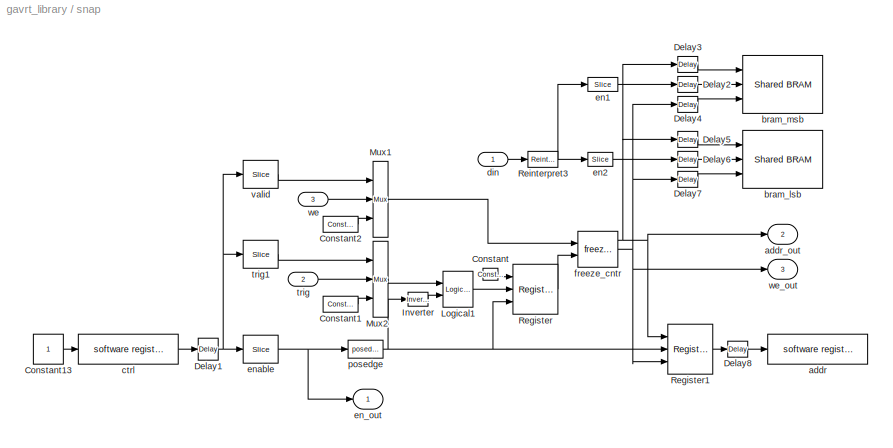
BLOCK [SubSystem] snap
  FunctionWithSeparateData = off
  MaskCallbackString = |
  MaskDescription = The <i>snap</i> block provides a packaged solution to capturing data from\nthe FPGA fabric and making it accessible from the CPU.  The block comes in\n2 flavors: <i>snap</i> (which captures to a 32 bit wide Shared BRAM), and\n<i>snap64</i> (which captures to 2x32 bit wide Shared BRAMs to effect a\n64 bit capture).\nen_out provides access to the ctrl[en] bit\naddr_out and we_out can be used to cont...<+254ch>
  MaskEnableString = on,on
  MaskHelp = eval('xlWeb([getenv(''MLIB_ROOT''), ''<path>''])')
  MaskIconFrame = on
  MaskIconOpaque = on
  MaskIconRotate = none
  MaskIconUnits = autoscale
  MaskPromptString = No. of samples(2^?)|Register Latency
  MaskStyleString = edit,edit
  MaskTabNameString = ,
  MaskToolTipString = on,on
  MaskTunableValueString = on,on
  MaskType = snap64
  MaskValueString = 13|4
  MaskVarAliasString = ,
  MaskVariables = nsamples=@1;latency=@2;
  MaskVisibilityString = on,on
  MinAlgLoopOccurrences = off
  Ports = [3, 3]
  RTWSystemCode = Auto
BLOCK [Reference] snap/Constant  REF=xbsIndex_r4/Constant
  Ports = [0, 1]
  SourceBlock = xbsIndex_r4/Constant
  SourceType = Xilinx Constant Block Block
  arith_type = Boolean
  bin_pt = 0
  block_type = constant
  block_version = 10.1.2
  carry = CIN
  const = 1
  dbl_ovrd = off
  dsp48_infoedit = The use of this block for DSP48 instructions is deprecated.  Please use the Opmode block.
  equ = P=C
  explicit_period = on
  has_advanced_control = 0
  inp1 = P
  inp2 = PCIN>>17
  n_bits = 1
  opr = +
  opselect = C
  period = 1
  sg_icon_stat = 15,12,1,1,white,blue,0,06094819,right
  sg_mask_display = fprintf('','COMMENT: begin icon graphics');\npatch([0 15 15 0 ],[0 0 12 12 ],[0.77 0.82 0.91]);\npatch([4 2 5 2 4 7 8 9 12 9 6 4 7 4 6 9 12 9 8 7 4 ],[1 3 6 9 11 11 10 11 11 8 11 9 6 3 1 4 1 1 2 1 1 ],[0.98 0.96 0.92]);\nplot([0 15 15 0 0 ],[0 0 12 12 0 ]);\nfprintf('','COMMENT: end icon graphics');\nfprintf('','COMMENT: begin icon text');\ncolor('black');port_label('output',1,'1');\nfprintf('','C...<+26ch>
  sggui_pos = -1,-1,-1,-1
BLOCK [Reference] snap/Constant1  REF=xbsIndex_r4/Constant
  Ports = [0, 1]
  SourceBlock = xbsIndex_r4/Constant
  SourceType = Xilinx Constant Block Block
  arith_type = Boolean
  bin_pt = 0
  block_type = constant
  block_version = 10.1.2
  carry = CIN
  const = 1
  dbl_ovrd = off
  dsp48_infoedit = The use of this block for DSP48 instructions is deprecated.  Please use the Opmode block.
  equ = P=C
  explicit_period = on
  has_advanced_control = 0
  inp1 = P
  inp2 = PCIN>>17
  n_bits = 1
  opr = +
  opselect = C
  period = 1
  sg_icon_stat = 35,16,1,1,white,blue,0,06094819,right
  sg_mask_display = fprintf('','COMMENT: begin icon graphics');\npatch([0 35 35 0 ],[0 0 16 16 ],[0.77 0.82 0.91]);\npatch([14 11 15 11 14 18 19 20 25 21 18 16 20 16 18 21 25 20 19 18 14 ],[2 5 9 13 16 16 15 16 16 12 15 13 9 5 3 6 2 2 3 2 2 ],[0.98 0.96 0.92]);\nplot([0 35 35 0 0 ],[0 0 16 16 0 ]);\nfprintf('','COMMENT: end icon graphics');\nfprintf('','COMMENT: begin icon text');\ncolor('black');port_label('output',...<+48ch>
  sggui_pos = -1,-1,-1,-1
BLOCK [Constant] snap/Constant13
  OutDataType = sfix(16)
  OutScaling = 2^0
BLOCK [Reference] snap/Constant2  REF=xbsIndex_r4/Constant
  Ports = [0, 1]
  SourceBlock = xbsIndex_r4/Constant
  SourceType = Xilinx Constant Block Block
  arith_type = Boolean
  bin_pt = 0
  block_type = constant
  block_version = 10.1.2
  carry = CIN
  const = 1
  dbl_ovrd = off
  dsp48_infoedit = The use of this block for DSP48 instructions is deprecated.  Please use the Opmode block.
  equ = P=C
  explicit_period = on
  has_advanced_control = 0
  inp1 = P
  inp2 = PCIN>>17
  n_bits = 1
  opr = +
  opselect = C
  period = 1
  sg_icon_stat = 35,16,1,1,white,blue,0,06094819,right
  sg_mask_display = fprintf('','COMMENT: begin icon graphics');\npatch([0 35 35 0 ],[0 0 16 16 ],[0.77 0.82 0.91]);\npatch([14 11 15 11 14 18 19 20 25 21 18 16 20 16 18 21 25 20 19 18 14 ],[2 5 9 13 16 16 15 16 16 12 15 13 9 5 3 6 2 2 3 2 2 ],[0.98 0.96 0.92]);\nplot([0 35 35 0 0 ],[0 0 16 16 0 ]);\nfprintf('','COMMENT: end icon graphics');\nfprintf('','COMMENT: begin icon text');\ncolor('black');port_label('output',...<+48ch>
  sggui_pos = -1,-1,-1,-1
BLOCK [Reference] snap/Delay1  REF=xbsIndex_r4/Delay
  Ports = [1, 1]
  SourceBlock = xbsIndex_r4/Delay
  SourceType = Xilinx Delay Block
  block_type = delay
  block_version = 10.1.2
  dbl_ovrd = off
  en = off
  has_advanced_control = 0
  infoedit = Hardware notes: A delay line is a chain, each link of which is an SRL16 followed by a flip-flop.
  latency = latency
  reg_retiming = on
  sg_icon_stat = 20,22,1,1,white,blue,0,c2217bc4,right
  sg_mask_display = fprintf('','COMMENT: begin icon graphics');\npatch([0 20 20 0 ],[0 0 22 22 ],[0.77 0.82 0.91]);\npatch([4 1 6 1 4 9 10 11 17 13 9 6 11 6 9 13 17 11 10 9 4 ],[3 6 11 16 19 19 18 19 19 15 19 16 11 6 3 7 3 3 4 3 3 ],[0.98 0.96 0.92]);\nplot([0 20 20 0 0 ],[0 0 22 22 0 ]);\nfprintf('','COMMENT: end icon graphics');\nfprintf('','COMMENT: begin icon text');\ncolor('black');disp('z^{-4}','texmode','on');...<+41ch>
  sggui_pos = -1,-1,-1,-1
  xl_area = [0, 0, 0, 0, 0, 0, 0]
  xl_use_area = off
BLOCK [Reference] snap/Delay2  REF=xbsIndex_r4/Delay
  Ports = [1, 1]
  SourceBlock = xbsIndex_r4/Delay
  SourceType = Xilinx Delay Block
  block_type = delay
  block_version = 10.1.2
  dbl_ovrd = off
  en = off
  has_advanced_control = 0
  infoedit = Hardware notes: A delay line is a chain, each link of which is an SRL16 followed by a flip-flop.
  latency = latency
  reg_retiming = on
  sg_icon_stat = 20,16,1,1,white,blue,0,c2217bc4,right
  sg_mask_display = fprintf('','COMMENT: begin icon graphics');\npatch([0 20 20 0 ],[0 0 16 16 ],[0.77 0.82 0.91]);\npatch([6 3 7 3 6 10 11 12 17 13 10 8 12 8 10 13 17 12 11 10 6 ],[2 5 9 13 16 16 15 16 16 12 15 13 9 5 3 6 2 2 3 2 2 ],[0.98 0.96 0.92]);\nplot([0 20 20 0 0 ],[0 0 16 16 0 ]);\nfprintf('','COMMENT: end icon graphics');\nfprintf('','COMMENT: begin icon text');\ncolor('black');disp('z^{-4}','texmode','on'...<+43ch>  <repeated x7 — deduplicated; at blocks: Delay2, Delay3, Delay4, Delay5, Delay6, Delay7, Delay8>
  sggui_pos = -1,-1,-1,-1
  xl_area = [0, 0, 0, 0, 0, 0, 0]
  xl_use_area = off
BLOCK [Reference] snap/Delay3  REF=xbsIndex_r4/Delay
  Ports = [1, 1]
  SourceBlock = xbsIndex_r4/Delay
  SourceType = Xilinx Delay Block
  block_type = delay
  block_version = 10.1.2
  dbl_ovrd = off
  en = off
  has_advanced_control = 0
  infoedit = Hardware notes: A delay line is a chain, each link of which is an SRL16 followed by a flip-flop.
  latency = latency
  reg_retiming = on
  sg_icon_stat = 20,16,1,1,white,blue,0,c2217bc4,right
  sggui_pos = -1,-1,-1,-1
  xl_area = [0, 0, 0, 0, 0, 0, 0]
  xl_use_area = off
BLOCK [Reference] snap/Delay4  REF=xbsIndex_r4/Delay
  Ports = [1, 1]
  SourceBlock = xbsIndex_r4/Delay
  SourceType = Xilinx Delay Block
  block_type = delay
  block_version = 10.1.2
  dbl_ovrd = off
  en = off
  has_advanced_control = 0
  infoedit = Hardware notes: A delay line is a chain, each link of which is an SRL16 followed by a flip-flop.
  latency = latency
  reg_retiming = on
  sg_icon_stat = 20,16,1,1,white,blue,0,c2217bc4,right
  sggui_pos = -1,-1,-1,-1
  xl_area = [0, 0, 0, 0, 0, 0, 0]
  xl_use_area = off
BLOCK [Reference] snap/Delay5  REF=xbsIndex_r4/Delay
  Ports = [1, 1]
  SourceBlock = xbsIndex_r4/Delay
  SourceType = Xilinx Delay Block
  block_type = delay
  block_version = 10.1.2
  dbl_ovrd = off
  en = off
  has_advanced_control = 0
  infoedit = Hardware notes: A delay line is a chain, each link of which is an SRL16 followed by a flip-flop.
  latency = latency
  reg_retiming = on
  sg_icon_stat = 20,16,1,1,white,blue,0,c2217bc4,right
  sggui_pos = -1,-1,-1,-1
  xl_area = [0, 0, 0, 0, 0, 0, 0]
  xl_use_area = off
BLOCK [Reference] snap/Delay6  REF=xbsIndex_r4/Delay
  Ports = [1, 1]
  SourceBlock = xbsIndex_r4/Delay
  SourceType = Xilinx Delay Block
  block_type = delay
  block_version = 10.1.2
  dbl_ovrd = off
  en = off
  has_advanced_control = 0
  infoedit = Hardware notes: A delay line is a chain, each link of which is an SRL16 followed by a flip-flop.
  latency = latency
  reg_retiming = on
  sg_icon_stat = 20,16,1,1,white,blue,0,c2217bc4,right
  sggui_pos = -1,-1,-1,-1
  xl_area = [0, 0, 0, 0, 0, 0, 0]
  xl_use_area = off
BLOCK [Reference] snap/Delay7  REF=xbsIndex_r4/Delay
  Ports = [1, 1]
  SourceBlock = xbsIndex_r4/Delay
  SourceType = Xilinx Delay Block
  block_type = delay
  block_version = 10.1.2
  dbl_ovrd = off
  en = off
  has_advanced_control = 0
  infoedit = Hardware notes: A delay line is a chain, each link of which is an SRL16 followed by a flip-flop.
  latency = latency
  reg_retiming = on
  sg_icon_stat = 20,16,1,1,white,blue,0,c2217bc4,right
  sggui_pos = -1,-1,-1,-1
  xl_area = [0, 0, 0, 0, 0, 0, 0]
  xl_use_area = off
BLOCK [Reference] snap/Delay8  REF=xbsIndex_r4/Delay
  Ports = [1, 1]
  SourceBlock = xbsIndex_r4/Delay
  SourceType = Xilinx Delay Block
  block_type = delay
  block_version = 10.1.2
  dbl_ovrd = off
  en = off
  has_advanced_control = 0
  infoedit = Hardware notes: A delay line is a chain, each link of which is an SRL16 followed by a flip-flop.
  latency = latency
  reg_retiming = on
  sg_icon_stat = 20,16,1,1,white,blue,0,c2217bc4,right
  sggui_pos = -1,-1,-1,-1
  xl_area = [0, 0, 0, 0, 0, 0, 0]
  xl_use_area = off
BLOCK [Reference] snap/Inverter  REF=xbsIndex_r4/Inverter
  Ports = [1, 1]
  SourceBlock = xbsIndex_r4/Inverter
  SourceType = Xilinx Inverter Block
  block_type = inv
  block_version = 10.1.2
  dbl_ovrd = off
  en = off
  has_advanced_control = 0
  infoedit = Bitwise logical negation (one's complement) operator.
  latency = 0
  sg_icon_stat = 20,14,1,1,white,blue,0,1ab4a85f,right
  sg_mask_display = fprintf('','COMMENT: begin icon graphics');\npatch([0 20 20 0 ],[0 0 14 14 ],[0.77 0.82 0.91]);\npatch([6 4 7 4 6 10 11 12 16 13 10 8 11 8 10 13 16 12 11 10 6 ],[2 4 7 10 12 12 11 12 12 9 12 10 7 4 2 5 2 2 3 2 2 ],[0.98 0.96 0.92]);\nplot([0 20 20 0 0 ],[0 0 14 14 0 ]);\nfprintf('','COMMENT: end icon graphics');\nfprintf('','COMMENT: begin icon text');\ncolor('black');disp('not');\nfprintf('','COM...<+24ch>
  sggui_pos = -1,-1,-1,-1
  xl_area = [0, 0, 0, 0, 0, 0, 0]
  xl_use_area = off
BLOCK [Reference] snap/Logical1  REF=xbsIndex_r4/Logical
  Ports = [2, 1]
  SourceBlock = xbsIndex_r4/Logical
  SourceType = Xilinx Logical Block Block
  align_bp = on
  arith_type = Unsigned
  bin_pt = 2
  block_type = logical
  block_version = 10.1.2
  dbl_ovrd = off
  en = off
  has_advanced_control = 0
  inputs = 2
  latency = 0
  logical_function = AND
  n_bits = 8
  precision = Full
  sg_icon_stat = 30,36,1,1,white,blue,0,087b5522,right
  sg_mask_display = fprintf('','COMMENT: begin icon graphics');\npatch([0 30 30 0 ],[0 0 36 36 ],[0.77 0.82 0.91]);\npatch([7 2 9 2 7 15 17 19 27 20 14 9 15 9 14 20 27 19 17 15 7 ],[6 11 18 25 30 30 28 30 30 23 29 24 18 12 7 13 6 6 8 6 6 ],[0.98 0.96 0.92]);\nplot([0 30 30 0 0 ],[0 0 36 36 0 ]);\nfprintf('','COMMENT: end icon graphics');\nfprintf('','COMMENT: begin icon text');\ncolor('black');disp('\\newlineand\\new...<+69ch>
  sggui_pos = -1,-1,-1,-1
  xl_area = [0, 0, 0, 0, 0, 0, 0]
  xl_use_area = off
BLOCK [Reference] snap/Mux1  REF=xbsIndex_r4/Mux
  Ports = [3, 1]
  SourceBlock = xbsIndex_r4/Mux
  SourceType = Xilinx Bus Multiplexer Block
  arith_type = Signed  (2's comp)
  bin_pt = 2
  block_type = mux
  block_version = 10.1.2
  dbl_ovrd = off
  en = off
  has_advanced_control = 0
  inputs = 2
  latency = 0
  n_bits = 8
  overflow = Wrap
  precision = Full
  quantization = Truncate
  sg_icon_stat = 15,76,1,1,white,blue,3,613f58e1,right
  sg_mask_display = fprintf('','COMMENT: begin icon graphics');\npatch([0 15 15 0 ],[0 10.8571 65.1429 76 ],[0.77 0.82 0.91]);\npatch([3 1 5 1 3 7 8 9 13 10 7 5 9 5 7 10 13 9 8 7 3 ],[32 34 38 42 44 44 43 44 44 41 44 42 38 34 32 35 32 32 33 32 32 ],[0.98 0.96 0.92]);\nplot([0 15 15 0 0 ],[0 10.8571 65.1429 76 0 ]);\nfprintf('','COMMENT: end icon graphics');\nfprintf('','COMMENT: begin icon text');\ncolor('black');por...<+201ch>
  sggui_pos = -1,-1,-1,-1
  xl_area = [0, 0, 0, 0, 0, 0, 0]
  xl_use_area = off
BLOCK [Reference] snap/Mux2  REF=xbsIndex_r4/Mux
  Ports = [3, 1]
  SourceBlock = xbsIndex_r4/Mux
  SourceType = Xilinx Bus Multiplexer Block
  arith_type = Signed  (2's comp)
  bin_pt = 2
  block_type = mux
  block_version = 10.1.2
  dbl_ovrd = off
  en = off
  has_advanced_control = 0
  inputs = 2
  latency = 0
  n_bits = 8
  overflow = Wrap
  precision = Full
  quantization = Truncate
  sg_icon_stat = 15,76,1,1,white,blue,3,613f58e1,right
  sg_mask_display = fprintf('','COMMENT: begin icon graphics');\npatch([0 15 15 0 ],[0 10.8571 65.1429 76 ],[0.77 0.82 0.91]);\npatch([3 1 5 1 3 7 8 9 13 10 7 5 9 5 7 10 13 9 8 7 3 ],[32 34 38 42 44 44 43 44 44 41 44 42 38 34 32 35 32 32 33 32 32 ],[0.98 0.96 0.92]);\nplot([0 15 15 0 0 ],[0 10.8571 65.1429 76 0 ]);\nfprintf('','COMMENT: end icon graphics');\nfprintf('','COMMENT: begin icon text');\ncolor('black');por...<+201ch>
  sggui_pos = -1,-1,-1,-1
  xl_area = [0, 0, 0, 0, 0, 0, 0]
  xl_use_area = off
BLOCK [Reference] snap/Register  REF=xbsIndex_r4/Register
  Ports = [3, 1]
  SourceBlock = xbsIndex_r4/Register
  SourceType = Xilinx Register Block
  block_type = register
  block_version = 10.1.2
  dbl_ovrd = off
  en = on
  has_advanced_control = 0
  init = 0
  rst = on
  sg_icon_stat = 45,50,3,1,white,blue,0,923c1847,right
  sg_mask_display = fprintf('','COMMENT: begin icon graphics');\npatch([0 45 45 0 ],[0 0 50 50 ],[0.77 0.82 0.91]);\npatch([10 3 14 3 10 22 25 28 41 31 21 14 25 14 21 31 41 28 25 22 10 ],[7 14 25 36 43 43 40 43 43 33 43 36 25 14 7 17 7 7 10 7 7 ],[0.98 0.96 0.92]);\nplot([0 45 45 0 0 ],[0 0 50 50 0 ]);\nfprintf('','COMMENT: end icon graphics');\nfprintf('','COMMENT: begin icon text');\ncolor('black');port_label('inpu...<+237ch>
  sggui_pos = -1,-1,-1,-1
  xl_area = [0, 0, 0, 0, 0, 0, 0]
  xl_use_area = off
BLOCK [Reference] snap/Register1  REF=xbsIndex_r4/Register
  Ports = [3, 1]
  SourceBlock = xbsIndex_r4/Register
  SourceType = Xilinx Register Block
  block_type = register
  block_version = 10.1.2
  dbl_ovrd = off
  en = on
  has_advanced_control = 0
  init = 0
  rst = on
  sg_icon_stat = 45,50,3,1,white,blue,0,923c1847,right
  sg_mask_display = fprintf('','COMMENT: begin icon graphics');\npatch([0 45 45 0 ],[0 0 50 50 ],[0.77 0.82 0.91]);\npatch([10 3 14 3 10 22 25 28 41 31 21 14 25 14 21 31 41 28 25 22 10 ],[7 14 25 36 43 43 40 43 43 33 43 36 25 14 7 17 7 7 10 7 7 ],[0.98 0.96 0.92]);\nplot([0 45 45 0 0 ],[0 0 50 50 0 ]);\nfprintf('','COMMENT: end icon graphics');\nfprintf('','COMMENT: begin icon text');\ncolor('black');port_label('inpu...<+237ch>
  sggui_pos = -1,-1,-1,-1
  xl_area = [0, 0, 0, 0, 0, 0, 0]
  xl_use_area = off
BLOCK [Reference] snap/Reinterpret3  REF=xbsIndex_r4/Reinterpret
  Ports = [1, 1]
  SourceBlock = xbsIndex_r4/Reinterpret
  SourceType = Xilinx Type Reinterpreter Block
  arith_type = Unsigned
  bin_pt = 0
  block_type = reinterpret
  block_version = 10.1.2
  force_arith_type = on
  force_bin_pt = on
  has_advanced_control = 0
  sg_icon_stat = 30,16,1,1,white,blue,0,8982c1db,right
  sg_mask_display = fprintf('','COMMENT: begin icon graphics');\npatch([0 30 30 0 ],[0 0 16 16 ],[0.77 0.82 0.91]);\npatch([11 8 12 8 11 15 16 17 22 18 15 13 17 13 15 18 22 17 16 15 11 ],[2 5 9 13 16 16 15 16 16 12 15 13 9 5 3 6 2 2 3 2 2 ],[0.98 0.96 0.92]);\nplot([0 30 30 0 0 ],[0 0 16 16 0 ]);\nfprintf('','COMMENT: end icon graphics');\nfprintf('','COMMENT: begin icon text');\ncolor('black');disp('reinterpret');\n...<+39ch>
  sggui_pos = -1,-1,-1,-1
BLOCK [Reference] snap/addr  REF=xps_library/software register  (lib defined in mdl_00b5cec29cd0, mdl_02ab6ecaa3d1, +5 more)
  FunctionWithSeparateData = off
  Ports = [1, 1]
  RTWMemSecDataConstants = Inherit from model
  RTWMemSecDataInternal = Inherit from model
  RTWMemSecDataParameters = Inherit from model
  RTWMemSecFuncExecute = Inherit from model
  RTWMemSecFuncInitTerm = Inherit from model
  ShowPortLabels = FromPortIcon
  SourceBlock = xps_library/software register
  SourceType = Unknown
  SystemSampleTime = -1
  Tag = xps:sw_reg
  arith_type = Unsigned
  bin_pt = 0
  bitwidth = 32
  gw_name = gavrt_library_snap_addr_user_data_in
  io_dir = To Processor
  sample_period = 1
BLOCK [Outport] snap/addr_out
  IconDisplay = Port number
  OutDataType = sfix(16)
  OutScaling = 2^0
  Port = 2
BLOCK [Reference] snap/bram_lsb  REF=xps_library/Shared BRAM  (lib defined in mdl_00b5cec29cd0, mdl_02ab6ecaa3d1, +5 more)
  FunctionWithSeparateData = off
  Ports = [3, 1]
  RTWMemSecDataConstants = Inherit from model
  RTWMemSecDataInternal = Inherit from model
  RTWMemSecDataParameters = Inherit from model
  RTWMemSecFuncExecute = Inherit from model
  RTWMemSecFuncInitTerm = Inherit from model
  ShowPortLabels = FromPortIcon
  SourceBlock = xps_library/Shared BRAM
  SourceType = Unknown
  SystemSampleTime = -1
  Tag = xps:bram
  addr_width = nsamples
  arith_type = Unsigned
  data_bin_pt = 0
  data_width = 32
  init_vals = 0
  sample_rate = 1
BLOCK [Reference] snap/bram_msb  REF=xps_library/Shared BRAM  (lib defined in mdl_00b5cec29cd0, mdl_02ab6ecaa3d1, +5 more)
  FunctionWithSeparateData = off
  Ports = [3, 1]
  RTWMemSecDataConstants = Inherit from model
  RTWMemSecDataInternal = Inherit from model
  RTWMemSecDataParameters = Inherit from model
  RTWMemSecFuncExecute = Inherit from model
  RTWMemSecFuncInitTerm = Inherit from model
  ShowPortLabels = FromPortIcon
  SourceBlock = xps_library/Shared BRAM
  SourceType = Unknown
  SystemSampleTime = -1
  Tag = xps:bram
  addr_width = nsamples
  arith_type = Unsigned
  data_bin_pt = 0
  data_width = 32
  init_vals = 0
  sample_rate = 1
BLOCK [Reference] snap/ctrl  REF=xps_library/software register  (lib defined in mdl_00b5cec29cd0, mdl_02ab6ecaa3d1, +5 more)
  FunctionWithSeparateData = off
  Ports = [1, 1]
  RTWMemSecDataConstants = Inherit from model
  RTWMemSecDataInternal = Inherit from model
  RTWMemSecDataParameters = Inherit from model
  RTWMemSecFuncExecute = Inherit from model
  RTWMemSecFuncInitTerm = Inherit from model
  ShowPortLabels = FromPortIcon
  SourceBlock = xps_library/software register
  SourceType = Unknown
  SystemSampleTime = -1
  Tag = xps:sw_reg
  arith_type = Unsigned
  bin_pt = 0
  bitwidth = 32
  gw_name = gavrt_library_snap_ctrl_user_data_out
  io_dir = From Processor
  sample_period = 1
BLOCK [Inport] snap/din
  IconDisplay = Port number
  OutDataType = sfix(16)
  OutScaling = 2^0
BLOCK [Reference] snap/en1  REF=xbsIndex_r4/Slice
  Ports = [1, 1]
  SourceBlock = xbsIndex_r4/Slice
  SourceType = Xilinx Bit Slice Extractor Block
  base0 = LSB of Input
  base1 = LSB of Input
  bit0 = 32
  bit1 = 0
  block_type = slice
  block_version = 10.1.2
  boolean_output = off
  dbl_ovrd = off
  has_advanced_control = 0
  mode = Lower Bit Location + Width
  nbits = 32
  sg_icon_stat = 30,14,1,1,white,blue,0,b1026674,right
  sg_mask_display = fprintf('','COMMENT: begin icon graphics');\npatch([0 30 30 0 ],[0 0 14 14 ],[0.77 0.82 0.91]);\npatch([11 9 12 9 11 15 16 17 21 18 15 13 16 13 15 18 21 17 16 15 11 ],[2 4 7 10 12 12 11 12 12 9 12 10 7 4 2 5 2 2 3 2 2 ],[0.98 0.96 0.92]);\nplot([0 30 30 0 0 ],[0 0 14 14 0 ]);\nfprintf('','COMMENT: end icon graphics');\nfprintf('','COMMENT: begin icon text');\ncolor('black');port_label('output',1,'...<+49ch>
  sggui_pos = -1,-1,-1,-1
BLOCK [Reference] snap/en2  REF=xbsIndex_r4/Slice
  Ports = [1, 1]
  SourceBlock = xbsIndex_r4/Slice
  SourceType = Xilinx Bit Slice Extractor Block
  base0 = LSB of Input
  base1 = LSB of Input
  bit0 = 0
  bit1 = 0
  block_type = slice
  block_version = 10.1.2
  boolean_output = off
  dbl_ovrd = off
  has_advanced_control = 0
  mode = Lower Bit Location + Width
  nbits = 32
  sg_icon_stat = 25,14,1,1,white,blue,0,b1026674,right
  sg_mask_display = fprintf('','COMMENT: begin icon graphics');\npatch([0 25 25 0 ],[0 0 14 14 ],[0.77 0.82 0.91]);\npatch([8 6 9 6 8 12 13 14 18 15 12 10 13 10 12 15 18 14 13 12 8 ],[2 4 7 10 12 12 11 12 12 9 12 10 7 4 2 5 2 2 3 2 2 ],[0.98 0.96 0.92]);\nplot([0 25 25 0 0 ],[0 0 14 14 0 ]);\nfprintf('','COMMENT: end icon graphics');\nfprintf('','COMMENT: begin icon text');\ncolor('black');port_label('output',1,'[a:b...<+45ch>
  sggui_pos = -1,-1,-1,-1
BLOCK [Outport] snap/en_out
  IconDisplay = Port number
  OutDataType = sfix(16)
  OutScaling = 2^0
BLOCK [Reference] snap/enable  REF=xbsIndex_r4/Slice
  Ports = [1, 1]
  SourceBlock = xbsIndex_r4/Slice
  SourceType = Xilinx Bit Slice Extractor Block
  base0 = LSB of Input
  base1 = LSB of Input
  bit0 = 0
  bit1 = 0
  block_type = slice
  block_version = 10.1.2
  boolean_output = on
  dbl_ovrd = off
  has_advanced_control = 0
  mode = Lower Bit Location + Width
  nbits = 1
  sg_icon_stat = 35,28,1,1,white,blue,0,b1026674,right
  sg_mask_display = fprintf('','COMMENT: begin icon graphics');\npatch([0 35 35 0 ],[0 0 28 28 ],[0.77 0.82 0.91]);\npatch([10 5 12 5 10 17 19 21 29 23 17 13 21 13 17 23 29 21 19 17 10 ],[3 8 15 22 27 27 25 27 27 21 27 23 15 7 3 9 3 3 5 3 3 ],[0.98 0.96 0.92]);\nplot([0 35 35 0 0 ],[0 0 28 28 0 ]);\nfprintf('','COMMENT: end icon graphics');\nfprintf('','COMMENT: begin icon text');\ncolor('black');port_label('output',...<+52ch>  <repeated x3 — deduplicated; at blocks: enable, trig1, valid>
  sggui_pos = -1,-1,-1,-1
BLOCK [Reference] snap/freeze_cntr  REF=casper_library/Misc/freeze_cntr  (lib defined in mdl_138b2fc3435f, mdl_4ed325b712b3, +2 more)
  CounterBits = nsamples
  FunctionWithSeparateData = off
  Ports = [2, 3]
  RTWMemSecDataConstants = Inherit from model
  RTWMemSecDataInternal = Inherit from model
  RTWMemSecDataParameters = Inherit from model
  RTWMemSecFuncExecute = Inherit from model
  RTWMemSecFuncInitTerm = Inherit from model
  ShowPortLabels = FromPortIcon
  SourceBlock = casper_library/Misc/freeze_cntr
  SourceType = freeze_cntr
  SystemSampleTime = -1
BLOCK [Reference] snap/posedge  REF=casper_library/Misc/posedge  (lib defined in mdl_138b2fc3435f, mdl_4ed325b712b3, +2 more)
  FunctionWithSeparateData = off
  Ports = [1, 1]
  RTWMemSecDataConstants = Inherit from model
  RTWMemSecDataInternal = Inherit from model
  RTWMemSecDataParameters = Inherit from model
  RTWMemSecFuncExecute = Inherit from model
  RTWMemSecFuncInitTerm = Inherit from model
  ShowPortLabels = FromPortIcon
  SourceBlock = casper_library/Misc/posedge
  SourceType = posedge
  SystemSampleTime = -1
  Tag = Rising Edge Detector
BLOCK [Inport] snap/trig
  IconDisplay = Port number
  OutDataType = sfix(16)
  OutScaling = 2^0
  Port = 2
BLOCK [Reference] snap/trig1  REF=xbsIndex_r4/Slice
  Ports = [1, 1]
  SourceBlock = xbsIndex_r4/Slice
  SourceType = Xilinx Bit Slice Extractor Block
  base0 = LSB of Input
  base1 = LSB of Input
  bit0 = 1
  bit1 = 0
  block_type = slice
  block_version = 10.1.2
  boolean_output = on
  dbl_ovrd = off
  has_advanced_control = 0
  mode = Lower Bit Location + Width
  nbits = 1
  sg_icon_stat = 35,28,1,1,white,blue,0,b1026674,right
  sggui_pos = -1,-1,-1,-1
BLOCK [Reference] snap/valid  REF=xbsIndex_r4/Slice
  Ports = [1, 1]
  SourceBlock = xbsIndex_r4/Slice
  SourceType = Xilinx Bit Slice Extractor Block
  base0 = LSB of Input
  base1 = LSB of Input
  bit0 = 2
  bit1 = 0
  block_type = slice
  block_version = 10.1.2
  boolean_output = on
  dbl_ovrd = off
  has_advanced_control = 0
  mode = Lower Bit Location + Width
  nbits = 1
  sg_icon_stat = 35,28,1,1,white,blue,0,b1026674,right
  sggui_pos = -1,-1,-1,-1
BLOCK [Inport] snap/we
  IconDisplay = Port number
  OutDataType = sfix(16)
  OutScaling = 2^0
  Port = 3
BLOCK [Outport] snap/we_out
  IconDisplay = Port number
  OutDataType = sfix(16)
  OutScaling = 2^0
  Port = 3
BLOCK [SubSystem] supercat
  FunctionWithSeparateData = off
  MaskEnableString = on
  MaskIconFrame = on
  MaskIconOpaque = on
  MaskIconRotate = none
  MaskIconUnits = autoscale
  MaskInitialization = supercat_init(gcb, 'n', n);
  MaskPromptString = Number of Inputs
  MaskStyleString = edit
  MaskToolTipString = on
  MaskTunableValueString = on
  MaskType = supercat
  MaskValueString = 8
  MaskVariables = n=@1;
  MaskVisibilityString = on
  MinAlgLoopOccurrences = off
  Ports = [8, 1]
  RTWSystemCode = Auto
  UserData = DataTag19
  UserDataPersistent = on
BLOCK [Reference] supercat/Concat_1  REF=xbsIndex_r4/Concat
  Ports = [8, 1]
  SourceBlock = xbsIndex_r4/Concat
  SourceType = Xilinx Bus Concatenator Block
  block_type = concat
  block_version = 10.1.2
  dbl_ovrd = off
  has_advanced_control = 0
  infoedit = Concatenates two or more inputs.  Output will be cast to an unsigned value with the binary point at zero.
  num_inputs = 8
  sg_icon_stat = 50,201,8,1,white,blue,0,7ccc19ac,right
  sg_mask_display = fprintf('','COMMENT: begin icon graphics');\npatch([0 50 50 0 ],[0 0 201 201 ],[0.77 0.82 0.91]);\npatch([11 3 15 3 11 24 28 32 46 35 24 16 28 16 24 35 46 32 28 24 11 ],[81 89 101 113 121 121 117 121 121 110 121 113 101 89 81 92 81 81 85 81 81 ],[0.98 0.96 0.92]);\nplot([0 50 50 0 0 ],[0 0 201 201 0 ]);\nfprintf('','COMMENT: end icon graphics');\nfprintf('','COMMENT: begin icon text');\ncolor('bla...<+117ch>
  sggui_pos = -1,-1,-1,-1
BLOCK [Outport] supercat/Out
  IconDisplay = Port number
  OutDataType = sfix(16)
  OutScaling = 2^0
BLOCK [Inport] supercat/i1
  IconDisplay = Port number
  OutDataType = sfix(16)
  OutScaling = 2^0
BLOCK [Inport] supercat/i2
  IconDisplay = Port number
  OutDataType = sfix(16)
  OutScaling = 2^0
  Port = 2
BLOCK [Inport] supercat/i3
  IconDisplay = Port number
  OutDataType = sfix(16)
  OutScaling = 2^0
  Port = 3
BLOCK [Inport] supercat/i4
  IconDisplay = Port number
  OutDataType = sfix(16)
  OutScaling = 2^0
  Port = 4
BLOCK [Inport] supercat/i5
  IconDisplay = Port number
  OutDataType = sfix(16)
  OutScaling = 2^0
  Port = 5
BLOCK [Inport] supercat/i6
  IconDisplay = Port number
  OutDataType = sfix(16)
  OutScaling = 2^0
  Port = 6
BLOCK [Inport] supercat/i7
  IconDisplay = Port number
  OutDataType = sfix(16)
  OutScaling = 2^0
  Port = 7
BLOCK [Inport] supercat/i8
  IconDisplay = Port number
  OutDataType = sfix(16)
  OutScaling = 2^0
  Port = 8
BLOCK [SubSystem] uncram
  AttributesFormatString = Fix_18_17
  FunctionWithSeparateData = off
  MaskCallbackString = |||
  MaskDescription = Takes a concatenated input and slices it up into even pieces and reinterprets them as signed fixed point numbers with a given binary point.
  MaskEnableString = on,on,on,on
  MaskIconFrame = on
  MaskIconOpaque = on
  MaskIconRotate = none
  MaskIconUnits = autoscale
  MaskInitialization = uncram_init(gcb, ...\n    'num_slice', num_slice, ...\n    'slice_width', slice_width, ...\n    'bin_pt', bin_pt, ...\n    'arith_type', arith_type);
  MaskPromptString = Number of slices|Slice Width|Output Binary Point|Output Arithmetic Type (0=Unsigned, 1=Signed)
  MaskSelfModifiable = on
  MaskStyleString = edit,edit,edit,edit
  MaskTabNameString = ,,,
  MaskToolTipString = on,on,on,on
  MaskTunableValueString = on,on,on,on
  MaskType = uncram
  MaskValueString = 4|18|17|1
  MaskVarAliasString = ,,,
  MaskVariables = num_slice=@1;slice_width=@2;bin_pt=@3;arith_type=@4;
  MaskVisibilityString = on,on,on,on
  MinAlgLoopOccurrences = off
  Ports = [1, 4]
  RTWSystemCode = Auto
  UserData = DataTag20
  UserDataPersistent = on
BLOCK [Inport] uncram/In
  IconDisplay = Port number
  OutDataType = sfix(16)
  OutScaling = 2^0
BLOCK [Outport] uncram/Out1
  IconDisplay = Port number
  OutDataType = sfix(16)
  OutScaling = 2^0
BLOCK [Outport] uncram/Out2
  IconDisplay = Port number
  OutDataType = sfix(16)
  OutScaling = 2^0
  Port = 2
BLOCK [Outport] uncram/Out3
  IconDisplay = Port number
  Port = 3
BLOCK [Outport] uncram/Out4
  IconDisplay = Port number
  Port = 4
BLOCK [Reference] uncram/Reinterp1  REF=xbsIndex_r4/Reinterpret
  Ports = [1, 1]
  SourceBlock = xbsIndex_r4/Reinterpret
  SourceType = Xilinx Type Reinterpreter Block
  arith_type = Signed  (2's comp)
  bin_pt = 17
  block_type = reinterpret
  block_version = 10.1.2
  force_arith_type = on
  force_bin_pt = on
  has_advanced_control = 0
  sg_icon_stat = 50,50,1,1,white,blue,0,8982c1db,right
  sggui_pos = -1,-1,-1,-1
BLOCK [Reference] uncram/Reinterp2  REF=xbsIndex_r4/Reinterpret
  Ports = [1, 1]
  SourceBlock = xbsIndex_r4/Reinterpret
  SourceType = Xilinx Type Reinterpreter Block
  arith_type = Signed  (2's comp)
  bin_pt = 17
  block_type = reinterpret
  block_version = 10.1.2
  force_arith_type = on
  force_bin_pt = on
  has_advanced_control = 0
  sg_icon_stat = 50,50,1,1,white,blue,0,8982c1db,right
  sggui_pos = 20,20,336,312
BLOCK [Reference] uncram/Reinterp3  REF=xbsIndex_r4/Reinterpret
  Ports = [1, 1]
  SourceBlock = xbsIndex_r4/Reinterpret
  SourceType = Xilinx Type Reinterpreter Block
  arith_type = Signed  (2's comp)
  bin_pt = 17
  block_type = reinterpret
  block_version = 10.1.2
  force_arith_type = on
  force_bin_pt = on
  has_advanced_control = 0
  sg_icon_stat = 50,50,1,1,white,blue,0,8982c1db,right
  sggui_pos = -1,-1,-1,-1
BLOCK [Reference] uncram/Reinterp4  REF=xbsIndex_r4/Reinterpret
  Ports = [1, 1]
  SourceBlock = xbsIndex_r4/Reinterpret
  SourceType = Xilinx Type Reinterpreter Block
  arith_type = Signed  (2's comp)
  bin_pt = 17
  block_type = reinterpret
  block_version = 10.1.2
  force_arith_type = on
  force_bin_pt = on
  has_advanced_control = 0
  sg_icon_stat = 50,50,1,1,white,blue,0,8982c1db,right
  sggui_pos = -1,-1,-1,-1
BLOCK [Reference] uncram/Slice1  REF=xbsIndex_r4/Slice
  Ports = [1, 1]
  SourceBlock = xbsIndex_r4/Slice
  SourceType = Xilinx Bit Slice Extractor Block
  base0 = LSB of Input
  base1 = MSB of Input
  bit0 = 0
  bit1 = 0
  block_type = slice
  block_version = 10.1.2
  boolean_output = off
  dbl_ovrd = off
  has_advanced_control = 0
  mode = Upper Bit Location + Width
  nbits = 18
  sg_icon_stat = 50,50,1,1,white,blue,0,b1026674,right
  sggui_pos = -1,-1,-1,-1
BLOCK [Reference] uncram/Slice2  REF=xbsIndex_r4/Slice
  Ports = [1, 1]
  SourceBlock = xbsIndex_r4/Slice
  SourceType = Xilinx Bit Slice Extractor Block
  base0 = LSB of Input
  base1 = MSB of Input
  bit0 = 0
  bit1 = -18
  block_type = slice
  block_version = 10.1.2
  boolean_output = off
  dbl_ovrd = off
  has_advanced_control = 0
  mode = Upper Bit Location + Width
  nbits = 18
  sg_icon_stat = 50,50,1,1,white,blue,0,b1026674,right
  sggui_pos = 20,20,449,376
BLOCK [Reference] uncram/Slice3  REF=xbsIndex_r4/Slice
  Ports = [1, 1]
  SourceBlock = xbsIndex_r4/Slice
  SourceType = Xilinx Bit Slice Extractor Block
  base0 = LSB of Input
  base1 = MSB of Input
  bit0 = 0
  bit1 = -36
  block_type = slice
  block_version = 10.1.2
  boolean_output = off
  dbl_ovrd = off
  has_advanced_control = 0
  mode = Upper Bit Location + Width
  nbits = 18
  sg_icon_stat = 50,50,1,1,white,blue,0,b1026674,right
  sggui_pos = -1,-1,-1,-1
BLOCK [Reference] uncram/Slice4  REF=xbsIndex_r4/Slice
  Ports = [1, 1]
  SourceBlock = xbsIndex_r4/Slice
  SourceType = Xilinx Bit Slice Extractor Block
  base0 = LSB of Input
  base1 = MSB of Input
  bit0 = 0
  bit1 = -54
  block_type = slice
  block_version = 10.1.2
  boolean_output = off
  dbl_ovrd = off
  has_advanced_control = 0
  mode = Upper Bit Location + Width
  nbits = 18
  sg_icon_stat = 50,50,1,1,white,blue,0,b1026674,right
  sggui_pos = -1,-1,-1,-1
BLOCK [SubSystem] vacc
  AttributesFormatString = vector length=32, inputs=4\nmax accumulations=2^5
  FunctionWithSeparateData = off
  MaskCallbackString = |||||||||||
  MaskDescription = Sync is expected the clock before the first data to be accumulated.\nUse the Cram block to feed din for multiple simultaneous inputs.\nacc_len is the number of vectors to sum.\nvalid is high while a valid accumulation is being clocked out on dout.\nIf only one sync pulse is provided, valid accumulations will repeatedly appear on dout as they become available.\nUndesired behavior may occur if acc_l...<+279ch>
  MaskEnableString = on,on,on,on,on,on,on,on,on,on,on,on
  MaskIconFrame = on
  MaskIconOpaque = on
  MaskIconRotate = none
  MaskIconUnits = autoscale
  MaskInitialization = vacc_init(gcb, ...\n    'veclen', veclen, ...\n    'ninputs', ninputs, ...\n    'max_accum', max_accum, ...\n    'arith_type', arith_type, ...\n    'in_bit_width', in_bit_width, ...\n    'in_bin_pt', in_bin_pt, ...\n    'out_bit_width', out_bit_width, ...\n    'out_bin_pt', out_bin_pt, ...\n    'register_din', register_din, ...\n    'add_latency', add_latency, ...\n    'bram_latency', bram_latency...<+39ch>
  MaskPromptString = Vector Length (2^?)|Number of Simultaneous Vectors|Maximum # Accumulations (2^?)|Arithmetic Type (0=Unsigned, 1=Signed)|Input Bit Width|Input Binary Point|Output Bit Width|Output Binary Point|Register Input Data  (1 = Enable Register Retiming on input delay)|Add Latency|BRAM Latency|Mux Latency
  MaskStyleString = edit,edit,edit,edit,edit,edit,edit,edit,edit,edit,edit,edit
  MaskTabNameString = ,,,,,,,,,,,
  MaskToolTipString = on,on,on,on,on,on,on,on,on,on,on,on
  MaskTunableValueString = on,on,on,on,on,on,on,on,on,on,on,on
  MaskType = vacc
  MaskValueString = 5|4|5|0|18|17|32|17|0|2|2|1
  MaskVarAliasString = ,,,,,,,,,,,
  MaskVariables = veclen=@1;ninputs=@2;max_accum=@3;arith_type=@4;in_bit_width=@5;in_bin_pt=@6;out_bit_width=@7;out_bin_pt=@8;register_din=@9;add_latency=@10;bram_latency=@11;mux_latency=@12;
  MaskVisibilityString = on,on,on,on,on,on,on,on,on,on,on,on
  MinAlgLoopOccurrences = off
  Ports = [3, 2]
  RTWSystemCode = Auto
  UserData = DataTag21
  UserDataPersistent = on
BLOCK [Reference] vacc/AND  REF=xbsIndex_r4/Logical
  Ports = [2, 1]
  SourceBlock = xbsIndex_r4/Logical
  SourceType = Xilinx Logical Block Block
  align_bp = on
  arith_type = Unsigned
  bin_pt = 2
  block_type = logical
  block_version = 10.1.2
  dbl_ovrd = off
  en = off
  has_advanced_control = 0
  inputs = 2
  latency = 0
  logical_function = AND
  n_bits = 8
  precision = Full
  sg_icon_stat = 20,42,2,1,white,blue,0,087b5522,right
  sggui_pos = -1,-1,-1,-1
  xl_area = [0, 0, 0, 0, 0, 0, 0]
  xl_use_area = off
BLOCK [Reference] vacc/AccEnCompare  REF=xbsIndex_r4/Relational
  Ports = [2, 1]
  SourceBlock = xbsIndex_r4/Relational
  SourceType = Xilinx Arithmetic Relational Operator Block
  block_type = relational
  block_version = 10.1.2
  dbl_ovrd = off
  en = off
  has_advanced_control = 0
  latency = 1
  mode = a!=b
  sg_icon_stat = 45,44,2,1,white,blue,0,5b3ad671,right
  sg_mask_display = fprintf('','COMMENT: begin icon graphics');\npatch([0 55 55 0 ],[0 0 56 56 ],[0.77 0.82 0.91]);\npatch([13 4 17 4 13 28 32 36 52 40 28 19 32 19 28 40 52 36 32 28 13 ],[6 15 28 41 50 50 46 50 50 38 50 41 28 15 6 18 6 6 10 6 6 ],[0.98 0.96 0.92]);\nplot([0 55 55 0 0 ],[0 0 56 56 0 ]);\nfprintf('','COMMENT: end icon graphics');\nfprintf('','COMMENT: begin icon text');\ncolor('black');port_label('inpu...<+169ch>
  sggui_pos = -1,-1,-1,-1
  xl_area = [0, 0, 0, 0, 0, 0, 0]
  xl_use_area = off
BLOCK [Reference] vacc/Counter  REF=xbsIndex_r4/Counter
  Ports = [1, 1]
  SourceBlock = xbsIndex_r4/Counter
  SourceType = Xilinx Counter Block
  arith_type = Unsigned
  bin_pt = 0
  block_type = counter
  block_version = 10.1.2
  cnt_by_val = 1
  cnt_to = Inf
  cnt_type = Free Running
  dbl_ovrd = off
  en = off
  explicit_period = on
  has_advanced_control = 0
  implementation = Fabric
  infoedit = Hardware notes: Free running counters are the least expensive in hardware.  A count limited counter is implemented by combining a counter with a comparator.
  load_pin = off
  n_bits = 10
  operation = Up
  period = 1
  rst = on
  sg_icon_stat = 35,52,1,1,white,blue,0,300e9576,right
  sg_mask_display = fprintf('','COMMENT: begin icon graphics');\npatch([0 60 60 0 ],[0 0 60 60 ],[0.77 0.82 0.91]);\npatch([14 4 18 4 14 30 34 38 55 42 29 20 35 20 29 42 55 38 34 30 14 ],[6 16 30 44 54 54 50 54 54 41 54 45 30 15 6 19 6 6 10 6 6 ],[0.98 0.96 0.92]);\nplot([0 60 60 0 0 ],[0 0 60 60 0 ]);\nfprintf('','COMMENT: end icon graphics');\nfprintf('','COMMENT: begin icon text');\ncolor('black');port_label('inpu...<+99ch>
  sggui_pos = 20,20,348,619
  start_count = 0
  use_behavioral_HDL = off
  use_rpm = on
  xl_area = [0, 0, 0, 0, 0, 0, 0]
  xl_use_area = off
BLOCK [SubSystem] vacc/Cram
  AncestorBlock = gavrt_library/cram
  FunctionWithSeparateData = off
  MaskDescription = Concatenates inputs together after forcing binary point to zero.
  MaskEnableString = on
  MaskIconFrame = on
  MaskIconOpaque = on
  MaskIconRotate = none
  MaskIconUnits = autoscale
  MaskInitialization = cram_init(gcb, ...\n    'num_slice', num_slice);
  MaskPromptString = Number of slices
  MaskSelfModifiable = on
  MaskStyleString = edit
  MaskToolTipString = on
  MaskTunableValueString = on
  MaskType = cram
  MaskValueString = 4
  MaskVariables = num_slice=@1;
  MaskVisibilityString = on
  MinAlgLoopOccurrences = off
  Ports = [4, 1]
  RTWSystemCode = Auto
  UserData = DataTag22
  UserDataPersistent = on
BLOCK [Reference] vacc/Cram/Concat  REF=xbsIndex_r4/Concat
  Ports = [4, 1]
  SourceBlock = xbsIndex_r4/Concat
  SourceType = Xilinx Bus Concatenator Block
  block_type = concat
  block_version = 10.1.2
  dbl_ovrd = off
  has_advanced_control = 0
  infoedit = Concatenates two or more inputs.  Output will be cast to an unsigned value with the binary point at zero.
  num_inputs = 4
  sg_icon_stat = 50,501,4,1,white,blue,0,ad63c393,right
  sg_mask_display = fprintf('','COMMENT: begin icon graphics');\npatch([0 50 50 0 ],[0 0 501 501 ],[0.77 0.82 0.91]);\npatch([11 3 15 3 11 24 28 32 46 35 24 16 28 16 24 35 46 32 28 24 11 ],[231 239 251 263 271 271 267 271 271 260 271 263 251 239 231 242 231 231 235 231 231 ],[0.98 0.96 0.92]);\nplot([0 50 50 0 0 ],[0 0 501 501 0 ]);\nfprintf('','COMMENT: end icon graphics');\nfprintf('','COMMENT: begin icon text');\n...<+127ch>
  sggui_pos = -1,-1,-1,-1
BLOCK [Inport] vacc/Cram/In1
  IconDisplay = Port number
  OutDataType = sfix(16)
  OutScaling = 2^0
BLOCK [Inport] vacc/Cram/In2
  IconDisplay = Port number
  OutDataType = sfix(16)
  OutScaling = 2^0
  Port = 2
BLOCK [Inport] vacc/Cram/In3
  IconDisplay = Port number
  Port = 3
BLOCK [Inport] vacc/Cram/In4
  IconDisplay = Port number
  Port = 4
BLOCK [Outport] vacc/Cram/Out
  IconDisplay = Port number
  OutDataType = sfix(16)
  OutScaling = 2^0
BLOCK [Reference] vacc/Cram/Reinterp1  REF=xbsIndex_r4/Reinterpret
  Ports = [1, 1]
  SourceBlock = xbsIndex_r4/Reinterpret
  SourceType = Xilinx Type Reinterpreter Block
  arith_type = Unsigned
  bin_pt = 0
  block_type = reinterpret
  block_version = 10.1.2
  force_arith_type = on
  force_bin_pt = on
  has_advanced_control = 0
  sg_icon_stat = 50,50,1,1,white,blue,0,8982c1db,right
  sggui_pos = -1,-1,-1,-1
BLOCK [Reference] vacc/Cram/Reinterp2  REF=xbsIndex_r4/Reinterpret
  Ports = [1, 1]
  SourceBlock = xbsIndex_r4/Reinterpret
  SourceType = Xilinx Type Reinterpreter Block
  arith_type = Unsigned
  bin_pt = 0
  block_type = reinterpret
  block_version = 10.1.2
  force_arith_type = on
  force_bin_pt = on
  has_advanced_control = 0
  sg_icon_stat = 50,50,1,1,white,blue,0,8982c1db,right
  sggui_pos = -1,-1,-1,-1
BLOCK [Reference] vacc/Cram/Reinterp3  REF=xbsIndex_r4/Reinterpret
  Ports = [1, 1]
  SourceBlock = xbsIndex_r4/Reinterpret
  SourceType = Xilinx Type Reinterpreter Block
  arith_type = Unsigned
  bin_pt = 0
  block_type = reinterpret
  block_version = 10.1.2
  force_arith_type = on
  force_bin_pt = on
  has_advanced_control = 0
  sg_icon_stat = 50,50,1,1,white,blue,0,8982c1db,right
  sggui_pos = -1,-1,-1,-1
BLOCK [Reference] vacc/Cram/Reinterp4  REF=xbsIndex_r4/Reinterpret
  Ports = [1, 1]
  SourceBlock = xbsIndex_r4/Reinterpret
  SourceType = Xilinx Type Reinterpreter Block
  arith_type = Unsigned
  bin_pt = 0
  block_type = reinterpret
  block_version = 10.1.2
  force_arith_type = on
  force_bin_pt = on
  has_advanced_control = 0
  sg_icon_stat = 50,50,1,1,white,blue,0,8982c1db,right
  sggui_pos = -1,-1,-1,-1
BLOCK [Reference] vacc/DinDelay  REF=xbsIndex_r4/Delay
  Ports = [1, 1]
  SourceBlock = xbsIndex_r4/Delay
  SourceType = Xilinx Delay Block
  block_type = delay
  block_version = 10.1.2
  dbl_ovrd = off
  en = off
  has_advanced_control = 0
  infoedit = Hardware notes: A delay line is a chain, each link of which is an SRL16 followed by a flip-flop.
  latency = 2
  reg_retiming = off
  sg_icon_stat = 40,38,1,1,white,blue,0,0a7a6cf1,right
  sg_mask_display = fprintf('','COMMENT: begin icon graphics');\npatch([0 60 60 0 ],[0 0 56 56 ],[0.77 0.82 0.91]);\npatch([15 6 19 6 15 30 34 38 54 41 29 20 32 20 29 41 54 38 34 30 15 ],[6 15 28 41 50 50 46 50 50 37 49 40 28 16 7 19 6 6 10 6 6 ],[0.98 0.96 0.92]);\nplot([0 60 60 0 0 ],[0 0 56 56 0 ]);\nfprintf('','COMMENT: end icon graphics');\nfprintf('','COMMENT: begin icon text');\ncolor('black');disp('z^{-2}','t...<+55ch>
  sggui_pos = -1,-1,-1,-1
  xl_area = [0,0,0,0,0,0,0]
  xl_use_area = off
BLOCK [From] vacc/FromCount
  CloseFcn = tagdialog Close
  GotoTag = count
BLOCK [From] vacc/FromValid
  CloseFcn = tagdialog Close
  GotoTag = valid
BLOCK [Goto] vacc/GotoCount
  GotoTag = count
  TagVisibility = local
BLOCK [Goto] vacc/GotoValid
  GotoTag = valid
  TagVisibility = local
BLOCK [Reference] vacc/OR  REF=xbsIndex_r4/Logical
  Ports = [2, 1]
  SourceBlock = xbsIndex_r4/Logical
  SourceType = Xilinx Logical Block Block
  align_bp = on
  arith_type = Unsigned
  bin_pt = 2
  block_type = logical
  block_version = 10.1.2
  dbl_ovrd = off
  en = off
  has_advanced_control = 0
  inputs = 2
  latency = 0
  logical_function = OR
  n_bits = 8
  precision = Full
  sg_icon_stat = 20,47,2,1,white,blue,0,f4a65842,right
  sg_mask_display = fprintf('','COMMENT: begin icon graphics');\npatch([0 55 55 0 ],[0 0 60 60 ],[0.77 0.82 0.91]);\npatch([13 4 17 4 13 28 32 36 52 40 28 19 32 19 28 40 52 36 32 28 13 ],[8 17 30 43 52 52 48 52 52 40 52 43 30 17 8 20 8 8 12 8 8 ],[0.98 0.96 0.92]);\nplot([0 55 55 0 0 ],[0 0 60 60 0 ]);\nfprintf('','COMMENT: end icon graphics');\nfprintf('','COMMENT: begin icon text');\ncolor('black');disp('\\newlineo...<+75ch>
  sggui_pos = -1,-1,-1,-1
  xl_area = [0, 0, 0, 0, 0, 0, 0]
  xl_use_area = off
BLOCK [Reference] vacc/Slice  REF=xbsIndex_r4/Slice
  Ports = [1, 1]
  SourceBlock = xbsIndex_r4/Slice
  SourceType = Xilinx Bit Slice Extractor Block
  base0 = LSB of Input
  base1 = MSB of Input
  bit0 = 0
  bit1 = 0
  block_type = slice
  block_version = 10.1.2
  boolean_output = off
  dbl_ovrd = off
  has_advanced_control = 0
  mode = Upper Bit Location + Width
  nbits = 5
  sg_icon_stat = 30,16,1,1,white,blue,0,b1026674,right
  sggui_pos = -1,-1,-1,-1
BLOCK [Reference] vacc/SliceLow  REF=xbsIndex_r4/Slice
  Ports = [1, 1]
  SourceBlock = xbsIndex_r4/Slice
  SourceType = Xilinx Bit Slice Extractor Block
  base0 = LSB of Input
  base1 = MSB of Input
  bit0 = 0
  bit1 = 0
  block_type = slice
  block_version = 10.1.2
  boolean_output = off
  dbl_ovrd = off
  has_advanced_control = 0
  mode = Lower Bit Location + Width
  nbits = 5
  sg_icon_stat = 30,16,1,1,white,blue,0,b1026674,right
  sggui_pos = -1,-1,-1,-1
BLOCK [Reference] vacc/SyncCompare  REF=xbsIndex_r4/Relational
  Ports = [2, 1]
  SourceBlock = xbsIndex_r4/Relational
  SourceType = Xilinx Arithmetic Relational Operator Block
  block_type = relational
  block_version = 10.1.2
  dbl_ovrd = off
  en = off
  has_advanced_control = 0
  latency = 1
  mode = a=b
  sg_icon_stat = 35,47,2,1,white,blue,0,1cf02e61,right
  sggui_pos = -1,-1,-1,-1
  xl_area = [0, 0, 0, 0, 0, 0, 0]
  xl_use_area = off
BLOCK [Reference] vacc/SyncConst  REF=xbsIndex_r4/Constant
  Ports = [0, 1]
  SourceBlock = xbsIndex_r4/Constant
  SourceType = Xilinx Constant Block Block
  arith_type = Unsigned
  bin_pt = 0
  block_type = constant
  block_version = 10.1.2
  carry = CIN
  const = 30
  dbl_ovrd = off
  dsp48_infoedit = The use of this block for DSP48 instructions is deprecated.  Please use the Opmode block.
  equ = P=C
  explicit_period = on
  has_advanced_control = 0
  inp1 = P
  inp2 = PCIN>>17
  n_bits = 5
  opr = +
  opselect = C
  period = 1
  sg_icon_stat = 45,18,0,1,white,blue,0,b7b4d8af,right
  sg_mask_display = fprintf('','COMMENT: begin icon graphics');\npatch([0 55 55 0 ],[0 0 26 26 ],[0.77 0.82 0.91]);\npatch([20 16 22 16 20 27 29 31 38 32 26 22 28 22 26 32 38 31 29 27 20 ],[3 7 13 19 23 23 21 23 23 17 23 19 13 7 3 9 3 3 5 3 3 ],[0.98 0.96 0.92]);\nplot([0 55 55 0 0 ],[0 0 26 26 0 ]);\nfprintf('','COMMENT: end icon graphics');\nfprintf('','COMMENT: begin icon text');\ncolor('black');port_label('output...<+51ch>
  sggui_pos = -1,-1,-1,-1
BLOCK [Reference] vacc/SyncDelay  REF=xbsIndex_r4/Delay
  Ports = [1, 1]
  SourceBlock = xbsIndex_r4/Delay
  SourceType = Xilinx Delay Block
  block_type = delay
  block_version = 10.1.2
  dbl_ovrd = off
  en = off
  has_advanced_control = 0
  infoedit = Hardware notes: A delay line is a chain, each link of which is an SRL16 followed by a flip-flop.
  latency = 0
  reg_retiming = off
  sg_icon_stat = 25,30,1,1,white,blue,0,d74ee26d,right
  sg_mask_display = fprintf('','COMMENT: begin icon graphics');\npatch([0 60 60 0 ],[0 0 56 56 ],[0.77 0.82 0.91]);\npatch([15 6 19 6 15 30 34 38 54 41 29 20 32 20 29 41 54 38 34 30 15 ],[6 15 28 41 50 50 46 50 50 37 49 40 28 16 7 19 6 6 10 6 6 ],[0.98 0.96 0.92]);\nplot([0 60 60 0 0 ],[0 0 56 56 0 ]);\nfprintf('','COMMENT: end icon graphics');\nfprintf('','COMMENT: begin icon text');\ncolor('black');disp('z^{-0}','t...<+55ch>
  sggui_pos = -1,-1,-1,-1
  xl_area = [0, 0, 0, 0, 0, 0, 0]
  xl_use_area = off
BLOCK [SubSystem] vacc/Uncram
  AncestorBlock = gavrt_library/uncram
  AttributesFormatString = UFix_18_17
  FunctionWithSeparateData = off
  MaskCallbackString = |||
  MaskDescription = Takes a concatenated input and slices it up into even pieces and reinterprets them as signed fixed point numbers with a given binary point.
  MaskEnableString = on,on,on,on
  MaskIconFrame = on
  MaskIconOpaque = on
  MaskIconRotate = none
  MaskIconUnits = autoscale
  MaskInitialization = uncram_init(gcb, ...\n    'num_slice', num_slice, ...\n    'slice_width', slice_width, ...\n    'bin_pt', bin_pt, ...\n    'arith_type', arith_type);
  MaskPromptString = Number of slices|Slice Width|Output Binary Point|Output Arithmetic Type (0=Unsigned, 1=Signed, 2=Boolean)
  MaskSelfModifiable = on
  MaskStyleString = edit,edit,edit,edit
  MaskTabNameString = ,,,
  MaskToolTipString = on,on,on,on
  MaskTunableValueString = on,on,on,on
  MaskType = uncram
  MaskValueString = 4|18|17|0
  MaskVarAliasString = ,,,
  MaskVariables = num_slice=@1;slice_width=@2;bin_pt=@3;arith_type=@4;
  MaskVisibilityString = on,on,on,on
  MinAlgLoopOccurrences = off
  Ports = [1, 4]
  RTWSystemCode = Auto
  UserData = DataTag23
  UserDataPersistent = on
BLOCK [Inport] vacc/Uncram/In
  IconDisplay = Port number
  OutDataType = sfix(16)
  OutScaling = 2^0
BLOCK [Outport] vacc/Uncram/Out1
  IconDisplay = Port number
  OutDataType = sfix(16)
  OutScaling = 2^0
BLOCK [Outport] vacc/Uncram/Out2
  IconDisplay = Port number
  OutDataType = sfix(16)
  OutScaling = 2^0
  Port = 2
BLOCK [Outport] vacc/Uncram/Out3
  IconDisplay = Port number
  Port = 3
BLOCK [Outport] vacc/Uncram/Out4
  IconDisplay = Port number
  Port = 4
BLOCK [Reference] vacc/Uncram/Reinterp1  REF=xbsIndex_r4/Reinterpret
  Ports = [1, 1]
  SourceBlock = xbsIndex_r4/Reinterpret
  SourceType = Xilinx Type Reinterpreter Block
  arith_type = Unsigned
  bin_pt = 17
  block_type = reinterpret
  block_version = 10.1.2
  force_arith_type = on
  force_bin_pt = on
  has_advanced_control = 0
  sg_icon_stat = 50,50,1,1,white,blue,0,8982c1db,right
  sggui_pos = -1,-1,-1,-1
BLOCK [Reference] vacc/Uncram/Reinterp2  REF=xbsIndex_r4/Reinterpret
  Ports = [1, 1]
  SourceBlock = xbsIndex_r4/Reinterpret
  SourceType = Xilinx Type Reinterpreter Block
  arith_type = Unsigned
  bin_pt = 17
  block_type = reinterpret
  block_version = 10.1.2
  force_arith_type = on
  force_bin_pt = on
  has_advanced_control = 0
  sg_icon_stat = 50,50,1,1,white,blue,0,8982c1db,right
  sggui_pos = -1,-1,-1,-1
BLOCK [Reference] vacc/Uncram/Reinterp3  REF=xbsIndex_r4/Reinterpret
  Ports = [1, 1]
  SourceBlock = xbsIndex_r4/Reinterpret
  SourceType = Xilinx Type Reinterpreter Block
  arith_type = Unsigned
  bin_pt = 17
  block_type = reinterpret
  block_version = 10.1.2
  force_arith_type = on
  force_bin_pt = on
  has_advanced_control = 0
  sg_icon_stat = 50,50,1,1,white,blue,0,8982c1db,right
  sggui_pos = -1,-1,-1,-1
BLOCK [Reference] vacc/Uncram/Reinterp4  REF=xbsIndex_r4/Reinterpret
  Ports = [1, 1]
  SourceBlock = xbsIndex_r4/Reinterpret
  SourceType = Xilinx Type Reinterpreter Block
  arith_type = Unsigned
  bin_pt = 17
  block_type = reinterpret
  block_version = 10.1.2
  force_arith_type = on
  force_bin_pt = on
  has_advanced_control = 0
  sg_icon_stat = 50,50,1,1,white,blue,0,8982c1db,right
  sggui_pos = -1,-1,-1,-1
BLOCK [Reference] vacc/Uncram/Slice1  REF=xbsIndex_r4/Slice
  Ports = [1, 1]
  SourceBlock = xbsIndex_r4/Slice
  SourceType = Xilinx Bit Slice Extractor Block
  base0 = LSB of Input
  base1 = MSB of Input
  bit0 = 0
  bit1 = 0
  block_type = slice
  block_version = 10.1.2
  boolean_output = off
  dbl_ovrd = off
  has_advanced_control = 0
  mode = Upper Bit Location + Width
  nbits = 18
  sg_icon_stat = 50,50,1,1,white,blue,0,b1026674,right
  sggui_pos = -1,-1,-1,-1
BLOCK [Reference] vacc/Uncram/Slice2  REF=xbsIndex_r4/Slice
  Ports = [1, 1]
  SourceBlock = xbsIndex_r4/Slice
  SourceType = Xilinx Bit Slice Extractor Block
  base0 = LSB of Input
  base1 = MSB of Input
  bit0 = 0
  bit1 = -18
  block_type = slice
  block_version = 10.1.2
  boolean_output = off
  dbl_ovrd = off
  has_advanced_control = 0
  mode = Upper Bit Location + Width
  nbits = 18
  sg_icon_stat = 50,50,1,1,white,blue,0,b1026674,right
  sggui_pos = -1,-1,-1,-1
BLOCK [Reference] vacc/Uncram/Slice3  REF=xbsIndex_r4/Slice
  Ports = [1, 1]
  SourceBlock = xbsIndex_r4/Slice
  SourceType = Xilinx Bit Slice Extractor Block
  base0 = LSB of Input
  base1 = MSB of Input
  bit0 = 0
  bit1 = -36
  block_type = slice
  block_version = 10.1.2
  boolean_output = off
  dbl_ovrd = off
  has_advanced_control = 0
  mode = Upper Bit Location + Width
  nbits = 18
  sg_icon_stat = 50,50,1,1,white,blue,0,b1026674,right
  sggui_pos = -1,-1,-1,-1
BLOCK [Reference] vacc/Uncram/Slice4  REF=xbsIndex_r4/Slice
  Ports = [1, 1]
  SourceBlock = xbsIndex_r4/Slice
  SourceType = Xilinx Bit Slice Extractor Block
  base0 = LSB of Input
  base1 = MSB of Input
  bit0 = 0
  bit1 = -54
  block_type = slice
  block_version = 10.1.2
  boolean_output = off
  dbl_ovrd = off
  has_advanced_control = 0
  mode = Upper Bit Location + Width
  nbits = 18
  sg_icon_stat = 50,50,1,1,white,blue,0,b1026674,right
  sggui_pos = -1,-1,-1,-1
BLOCK [Reference] vacc/ValidCompare  REF=xbsIndex_r4/Relational
  Ports = [2, 1]
  SourceBlock = xbsIndex_r4/Relational
  SourceType = Xilinx Arithmetic Relational Operator Block
  block_type = relational
  block_version = 10.1.2
  dbl_ovrd = off
  en = off
  has_advanced_control = 0
  latency = 1
  mode = a=b
  sg_icon_stat = 45,44,2,1,white,blue,0,1cf02e61,right
  sggui_pos = -1,-1,-1,-1
  xl_area = [0, 0, 0, 0, 0, 0, 0]
  xl_use_area = off
BLOCK [Reference] vacc/ValidDelay  REF=xbsIndex_r4/Delay
  Ports = [1, 1]
  SourceBlock = xbsIndex_r4/Delay
  SourceType = Xilinx Delay Block
  block_type = delay
  block_version = 10.1.2
  dbl_ovrd = off
  en = off
  has_advanced_control = 0
  infoedit = Hardware notes: A delay line is a chain, each link of which is an SRL16 followed by a flip-flop.
  latency = 3
  reg_retiming = off
  sg_icon_stat = 15,18,1,1,white,blue,0,eabd56db,right
  sg_mask_display = fprintf('','COMMENT: begin icon graphics');\npatch([0 60 60 0 ],[0 0 56 56 ],[0.77 0.82 0.91]);\npatch([15 6 19 6 15 30 34 38 54 41 29 20 32 20 29 41 54 38 34 30 15 ],[6 15 28 41 50 50 46 50 50 37 49 40 28 16 7 19 6 6 10 6 6 ],[0.98 0.96 0.92]);\nplot([0 60 60 0 0 ],[0 0 56 56 0 ]);\nfprintf('','COMMENT: end icon graphics');\nfprintf('','COMMENT: begin icon text');\ncolor('black');disp('z^{-3}','t...<+55ch>
  sggui_pos = -1,-1,-1,-1
  xl_area = [0, 0, 0, 0, 0, 0, 0]
  xl_use_area = off
BLOCK [Reference] vacc/Zero  REF=xbsIndex_r4/Constant
  Ports = [0, 1]
  SourceBlock = xbsIndex_r4/Constant
  SourceType = Xilinx Constant Block Block
  arith_type = Unsigned
  bin_pt = 0
  block_type = constant
  block_version = 10.1.2
  carry = CIN
  const = 0
  dbl_ovrd = off
  dsp48_infoedit = The use of this block for DSP48 instructions is deprecated.  Please use the Opmode block.
  equ = P=C
  explicit_period = on
  has_advanced_control = 0
  inp1 = P
  inp2 = PCIN>>17
  n_bits = 8
  opr = +
  opselect = C
  period = 1
  sg_icon_stat = 20,14,0,1,white,blue,0,72d575a1,right
  sggui_pos = -1,-1,-1,-1
BLOCK [Inport] vacc/acc_len
  IconDisplay = Port number
  OutDataType = sfix(16)
  OutScaling = 2^0
  Port = 3
BLOCK [Inport] vacc/din
  IconDisplay = Port number
  OutDataType = sfix(16)
  OutScaling = 2^0
  Port = 2
BLOCK [Outport] vacc/dout
  IconDisplay = Port number
  OutDataType = sfix(16)
  OutScaling = 2^0
  Port = 2
BLOCK [Inport] vacc/sync
  IconDisplay = Port number
  OutDataType = sfix(16)
  OutScaling = 2^0
BLOCK [Reference] vacc/vacc_core1  REF=gavrt_library/vacc_core  (lib defined in mdl_32bd0963308d, mdl_3c21e696b527, +1 more)
  FunctionWithSeparateData = off
  Ports = [2, 1]
  RTWMemSecDataConstants = Inherit from model
  RTWMemSecDataInternal = Inherit from model
  RTWMemSecDataParameters = Inherit from model
  RTWMemSecFuncExecute = Inherit from model
  RTWMemSecFuncInitTerm = Inherit from model
  ShowPortLabels = FromPortIcon
  SourceBlock = gavrt_library/vacc_core
  SourceType = vacc_core
  SystemSampleTime = -1
  UserData = DataTag24
  UserDataPersistent = on
  add_latency = 2
  arith_type = 0
  bram_latency = 2
  mux_latency = 1
  out_bin_pt = 17
  out_bit_width = 32
  veclen = 32
BLOCK [Reference] vacc/vacc_core2  REF=gavrt_library/vacc_core  (lib defined in mdl_32bd0963308d, mdl_3c21e696b527, +1 more)
  FunctionWithSeparateData = off
  Ports = [2, 1]
  RTWMemSecDataConstants = Inherit from model
  RTWMemSecDataInternal = Inherit from model
  RTWMemSecDataParameters = Inherit from model
  RTWMemSecFuncExecute = Inherit from model
  RTWMemSecFuncInitTerm = Inherit from model
  ShowPortLabels = FromPortIcon
  SourceBlock = gavrt_library/vacc_core
  SourceType = vacc_core
  SystemSampleTime = -1
  UserData = DataTag25
  UserDataPersistent = on
  add_latency = 2
  arith_type = 0
  bram_latency = 2
  mux_latency = 1
  out_bin_pt = 17
  out_bit_width = 32
  veclen = 32
BLOCK [Reference] vacc/vacc_core3  REF=gavrt_library/vacc_core  (lib defined in mdl_32bd0963308d, mdl_3c21e696b527, +1 more)
  FunctionWithSeparateData = off
  Ports = [2, 1]
  RTWMemSecDataConstants = Inherit from model
  RTWMemSecDataInternal = Inherit from model
  RTWMemSecDataParameters = Inherit from model
  RTWMemSecFuncExecute = Inherit from model
  RTWMemSecFuncInitTerm = Inherit from model
  ShowPortLabels = FromPortIcon
  SourceBlock = gavrt_library/vacc_core
  SourceType = vacc_core
  SystemSampleTime = -1
  UserData = DataTag26
  UserDataPersistent = on
  add_latency = 2
  arith_type = 0
  bram_latency = 2
  mux_latency = 1
  out_bin_pt = 17
  out_bit_width = 32
  veclen = 32
BLOCK [Reference] vacc/vacc_core4  REF=gavrt_library/vacc_core  (lib defined in mdl_32bd0963308d, mdl_3c21e696b527, +1 more)
  FunctionWithSeparateData = off
  Ports = [2, 1]
  RTWMemSecDataConstants = Inherit from model
  RTWMemSecDataInternal = Inherit from model
  RTWMemSecDataParameters = Inherit from model
  RTWMemSecFuncExecute = Inherit from model
  RTWMemSecFuncInitTerm = Inherit from model
  ShowPortLabels = FromPortIcon
  SourceBlock = gavrt_library/vacc_core
  SourceType = vacc_core
  SystemSampleTime = -1
  UserData = DataTag27
  UserDataPersistent = on
  add_latency = 2
  arith_type = 0
  bram_latency = 2
  mux_latency = 1
  out_bin_pt = 17
  out_bit_width = 32
  veclen = 32
BLOCK [Outport] vacc/valid
  IconDisplay = Port number
  OutDataType = sfix(16)
  OutScaling = 2^0
BLOCK [SubSystem] vacc_core
  FunctionWithSeparateData = off
  MaskCallbackString = ||||||
  MaskDescription = Currently only Signed arithmetic supported\nacc_en = 0 --> Load a vector (start a new accumulation)\nacc_en = 1 --> Accumulate
  MaskEnableString = on,on,on,on,on,on,on
  MaskIconFrame = on
  MaskIconOpaque = on
  MaskIconRotate = none
  MaskIconUnits = autoscale
  MaskInitialization = vacc_core_init(gcb, ...\n    'veclen', veclen, ...\n    'arith_type', arith_type, ...\n    'out_bit_width', out_bit_width, ...\n    'out_bin_pt', out_bin_pt, ...\n    'add_latency', add_latency, ...\n    'bram_latency', bram_latency, ...\n    'mux_latency', mux_latency);
  MaskPromptString = Vector Length|Arithmetic Type (0=Unsigned, 1=Signed)|Output Bit Width|Output Binary Point|Add Latency|BRAM Latency|Mux Latency
  MaskStyleString = edit,edit,edit,edit,edit,edit,edit
  MaskTabNameString = ,,,,,,
  MaskToolTipString = on,on,on,on,on,on,on
  MaskTunableValueString = on,on,on,on,on,on,on
  MaskType = vacc_core
  MaskValueString = 32|1|32|7|2|2|0
  MaskVarAliasString = ,,,,,,
  MaskVariables = veclen=@1;arith_type=@2;out_bit_width=@3;out_bin_pt=@4;add_latency=@5;bram_latency=&6;mux_latency=@7;
  MaskVisibilityString = on,on,on,on,on,on,on
  MinAlgLoopOccurrences = off
  Ports = [2, 1]
  RTWSystemCode = Auto
  UserData = DataTag28
  UserDataPersistent = on
BLOCK [Reference] vacc_core/Adder  REF=xbsIndex_r4/AddSub
  Ports = [2, 1]
  SourceBlock = xbsIndex_r4/AddSub
  SourceType = Xilinx Adder/Subtractor Block
  arith_type = Signed  (2's comp)
  bin_pt = 7
  block_type = addsub
  block_version = 10.1.2
  dbl_ovrd = off
  en = off
  has_advanced_control = 0
  hw_selection = Fabric
  latency = 2
  mode = Addition
  n_bits = 32
  overflow = Wrap
  pipelined = on
  precision = User Defined
  quantization = Truncate
  sg_icon_stat = 100,100,2,1,white,blue,0,89752214,right
  sg_mask_display = fprintf('','COMMENT: begin icon graphics');\npatch([0 60 60 0 ],[0 0 58 58 ],[0.77 0.82 0.91]);\npatch([15 5 19 5 15 30 34 38 54 41 29 20 34 20 29 41 54 38 34 30 15 ],[6 16 30 44 54 54 50 54 54 41 53 44 30 16 7 19 6 6 10 6 6 ],[0.98 0.96 0.92]);\nplot([0 60 60 0 0 ],[0 0 58 58 0 ]);\nfprintf('','COMMENT: end icon graphics');\nfprintf('','COMMENT: begin icon text');\ncolor('black');port_label('inpu...<+234ch>
  sggui_pos = 20,20,348,307
  use_behavioral_HDL = on
  use_carryin = off
  use_carryout = off
  use_rpm = on
  xl_area = [0, 0, 0, 0, 0, 0, 0]
  xl_use_area = off
BLOCK [Reference] vacc_core/BRAM  REF=xbsIndex_r4/Single Port RAM
  Ports = [3, 1]
  SourceBlock = xbsIndex_r4/Single Port RAM
  SourceType = Xilinx Single Port Random Access Memory Block
  block_type = spram
  block_version = 10.1.2
  dbl_ovrd = off
  depth = 32
  distributed_mem = Block RAM
  en = off
  has_advanced_control = 0
  initVector = 0
  init_reg = 0
  latency = 2
  optimize = Area
  rst = off
  sg_icon_stat = 65,54,3,1,white,blue,0,e5f9a5f3,right
  sg_mask_display = fprintf('','COMMENT: begin icon graphics');\npatch([0 60 60 0 ],[0 0 54 54 ],[0.77 0.82 0.91]);\npatch([16 7 20 7 16 30 34 38 53 41 29 21 35 21 29 41 53 38 34 30 16 ],[6 15 28 41 50 50 46 50 50 38 50 42 28 14 6 18 6 6 10 6 6 ],[0.98 0.96 0.92]);\nplot([0 60 60 0 0 ],[0 0 54 54 0 ]);\nfprintf('','COMMENT: end icon graphics');\nfprintf('','COMMENT: begin icon text');\ncolor('black');port_label('inpu...<+191ch>
  sggui_pos = 20,20,368,345
  use_rpm = off
  write_mode = Read Before Write
  xl_area = [0, 0, 0, 0, 0, 0, 0]
  xl_use_area = off
BLOCK [Reference] vacc_core/Constant  REF=xbsIndex_r4/Constant
  Ports = [0, 1]
  SourceBlock = xbsIndex_r4/Constant
  SourceType = Xilinx Constant Block Block
  arith_type = Unsigned
  bin_pt = 0
  block_type = constant
  block_version = 10.1.2
  carry = CIN
  const = 0
  dbl_ovrd = off
  dsp48_infoedit = The use of this block for DSP48 instructions is deprecated.  Please use the Opmode block.
  equ = P=C
  explicit_period = on
  has_advanced_control = 0
  inp1 = P
  inp2 = PCIN>>17
  n_bits = 1
  opr = +
  opselect = C
  period = 1
  sg_icon_stat = 45,30,1,1,white,blue,0,72d575a1,right
  sggui_pos = 20,20,400,346
BLOCK [Reference] vacc_core/Constant2  REF=xbsIndex_r4/Constant
  Ports = [0, 1]
  SourceBlock = xbsIndex_r4/Constant
  SourceType = Xilinx Constant Block Block
  arith_type = Boolean
  bin_pt = 0
  block_type = constant
  block_version = 10.1.2
  carry = CIN
  const = 1
  dbl_ovrd = off
  dsp48_infoedit = The use of this block for DSP48 instructions is deprecated.  Please use the Opmode block.
  equ = P=C
  explicit_period = on
  has_advanced_control = 0
  inp1 = P
  inp2 = PCIN>>17
  n_bits = 1
  opr = +
  opselect = C
  period = 1
  sg_icon_stat = 35,24,0,1,white,blue,0,06094819,right
  sggui_pos = -1,-1,-1,-1
BLOCK [Reference] vacc_core/Counter  REF=xbsIndex_r4/Counter
  Ports = [0, 1]
  SourceBlock = xbsIndex_r4/Counter
  SourceType = Xilinx Counter Block
  arith_type = Unsigned
  bin_pt = 0
  block_type = counter
  block_version = 10.1.2
  cnt_by_val = 1
  cnt_to = 27
  cnt_type = Count Limited
  dbl_ovrd = off
  en = off
  explicit_period = off
  has_advanced_control = 0
  implementation = Fabric
  infoedit = Hardware notes: Free running counters are the least expensive in hardware.  A count limited counter is implemented by combining a counter with a comparator.
  load_pin = off
  n_bits = 5
  operation = Up
  period = 1
  rst = off
  sg_icon_stat = 40,40,0,1,white,blue,0,a170c862,right
  sg_mask_display = fprintf('','COMMENT: begin icon graphics');\npatch([0 60 60 0 ],[0 0 60 60 ],[0.77 0.82 0.91]);\npatch([14 4 18 4 14 30 34 38 55 42 29 20 35 20 29 42 55 38 34 30 14 ],[6 16 30 44 54 54 50 54 54 41 54 45 30 15 6 19 6 6 10 6 6 ],[0.98 0.96 0.92]);\nplot([0 60 60 0 0 ],[0 0 60 60 0 ]);\nfprintf('','COMMENT: end icon graphics');\nfprintf('','COMMENT: begin icon text');\ncolor('black');port_label('outp...<+54ch>
  sggui_pos = 20,20,348,619
  start_count = 0
  use_behavioral_HDL = off
  use_rpm = off
  xl_area = [0, 0, 0, 0, 0, 0, 0]
  xl_use_area = off
BLOCK [Reference] vacc_core/Mux  REF=xbsIndex_r4/Mux
  Ports = [3, 1]
  SourceBlock = xbsIndex_r4/Mux
  SourceType = Xilinx Bus Multiplexer Block
  arith_type = Signed  (2's comp)
  bin_pt = 2
  block_type = mux
  block_version = 10.1.2
  dbl_ovrd = off
  en = off
  has_advanced_control = 0
  inputs = 2
  latency = 0
  n_bits = 8
  overflow = Wrap
  precision = Full
  quantization = Truncate
  sg_icon_stat = 25,66,3,1,white,blue,3,613f58e1,right
  sg_mask_display = fprintf('','COMMENT: begin icon graphics');\npatch([0 45 45 0 ],[0 14.8571 89.1429 104 ],[0.77 0.82 0.91]);\npatch([10 3 14 3 10 22 25 28 41 31 21 14 25 14 21 31 41 28 25 22 10 ],[34 41 52 63 70 70 67 70 70 60 70 63 52 41 34 44 34 34 37 34 34 ],[0.98 0.96 0.92]);\nplot([0 45 45 0 0 ],[0 14.8571 89.1429 104 0 ]);\nfprintf('','COMMENT: end icon graphics');\nfprintf('','COMMENT: begin icon text');\nc...<+218ch>
  sggui_pos = -1,-1,-1,-1
  xl_area = [0, 0, 0, 0, 0, 0, 0]
  xl_use_area = off
BLOCK [Inport] vacc_core/acc_en
  IconDisplay = Port number
  OutDataType = sfix(16)
  OutScaling = 2^0
  Port = 2
BLOCK [Inport] vacc_core/din
  IconDisplay = Port number
  OutDataType = sfix(16)
  OutScaling = 2^0
BLOCK [Outport] vacc_core/dout
  IconDisplay = Port number
  OutDataType = sfix(16)
  OutScaling = 2^0
BLOCK [Reference] vacc_core/warn period Adder0  REF=xbsReplacements_r4/Warning
  FunctionWithSeparateData = off
  Ports = []
  RTWMemSecDataConstants = Inherit from model
  RTWMemSecDataInternal = Inherit from model
  RTWMemSecDataParameters = Inherit from model
  RTWMemSecFuncExecute = Inherit from model
  RTWMemSecFuncInitTerm = Inherit from model
  ShowPortLabels = FromPortIcon
  SourceBlock = xbsReplacements_r4/Warning
  SystemSampleTime = -1
  period = 1
ANNOTATION Serialize: needed to disable reset signal for\nan extra 5 clocks to make sure it didn't\ntrigger when addr = 15 and muxcnt=0 =>\naddr_out = 60 = 64 - 4 = max_addr for \n4 inputs, depth 16
ANNOTATION vacc: Acc Len is the total number of vectors accumulated minus one\nThus acc_len = 0 causes no accumulation, the data is passed through
ANNOTATION vacc: The slice selects the upper bits of the\ncounter which represent the vector number.
ANNOTATION vacc: Valid goes high when dout \nrepresents a valid accumulation
ANNOTATION vacc: ValidDelay should be equal to\nAdd Latency + Mux Latency to align the valid pulse with the output data.
ANNOTATION vacc: We want to generate a sync pulse that\nwill reset the counter right when the low bits\nwould roll over from veclen-1 to 0 so we need\nto compare to veclen-2 to take into account \nthe latency in the comparator
ANNOTATION vacc_core: This BRAM and counter is exactly what is inside the green\nDelay BRAM block. The functionality was extracted to avoid\nlibrary issues.
LINE AddWithEnable/AddSub:1 -> AddWithEnable/Convert2:1
LINE AddWithEnable/Constant1:1 -> AddWithEnable/Mux:2
LINE AddWithEnable/Convert2:1 -> AddWithEnable/Reinterpret1:1
LINE AddWithEnable/Mux:1 -> AddWithEnable/AddSub:2
LINE AddWithEnable/Reinterpret1:1 -> AddWithEnable/toram:1
NET AddWithEnable/Reinterpret:1 -> AddWithEnable/Mux:3, AddWithEnable/rdout:1
LINE AddWithEnable/accen:1 -> AddWithEnable/Mux:1
LINE AddWithEnable/din:1 -> AddWithEnable/AddSub:1
LINE AddWithEnable/fromram:1 -> AddWithEnable/Reinterpret:1
LINE DataRateChanger/Add:1 -> DataRateChanger/Mux:1
LINE DataRateChanger/Compare1:1 -> DataRateChanger/FIFO1:3
LINE DataRateChanger/Compare2:1 -> DataRateChanger/FIFO2:3
LINE DataRateChanger/ConsOne:1 -> DataRateChanger/Add:2
LINE DataRateChanger/Const1:1 -> DataRateChanger/Compare1:2
LINE DataRateChanger/Const2:1 -> DataRateChanger/Compare2:2
LINE DataRateChanger/Delay:1 -> DataRateChanger/enOut:1
LINE DataRateChanger/FIFO1:1 -> DataRateChanger/Mux:2
LINE DataRateChanger/FIFO2:1 -> DataRateChanger/Mux:3
LINE DataRateChanger/Inverter:1 -> DataRateChanger/freeze_cntr:1
LINE DataRateChanger/Mux:1 -> DataRateChanger/dout:1
NET DataRateChanger/Slice1:1 -> DataRateChanger/Compare1:1, DataRateChanger/Compare2:1
LINE DataRateChanger/Slice2:1 -> DataRateChanger/Add:1
NET DataRateChanger/Uncram/In:1 -> DataRateChanger/Uncram/Slice1:1, DataRateChanger/Uncram/Slice2:1
LINE DataRateChanger/Uncram/Reinterp1:1 -> DataRateChanger/Uncram/Out1:1
LINE DataRateChanger/Uncram/Reinterp2:1 -> DataRateChanger/Uncram/Out2:1
LINE DataRateChanger/Uncram/Slice1:1 -> DataRateChanger/Uncram/Reinterp1:1
LINE DataRateChanger/Uncram/Slice2:1 -> DataRateChanger/Uncram/Reinterp2:1
LINE DataRateChanger/Uncram:1 -> DataRateChanger/FIFO1:1
LINE DataRateChanger/Uncram:2 -> DataRateChanger/FIFO2:1
LINE DataRateChanger/din:1 -> DataRateChanger/Uncram:1
NET DataRateChanger/enIn:1 -> DataRateChanger/FIFO1:2, DataRateChanger/FIFO2:2, DataRateChanger/Inverter:1, DataRateChanger/freeze_cntr:2
NET DataRateChanger/freeze_cntr/Counter3:1 -> DataRateChanger/freeze_cntr/enable1:1, DataRateChanger/freeze_cntr/enable:1
LINE DataRateChanger/freeze_cntr/Inverter1:1 -> DataRateChanger/freeze_cntr/Logical5:2
LINE DataRateChanger/freeze_cntr/Inverter:1 -> DataRateChanger/freeze_cntr/Logical1:1
LINE DataRateChanger/freeze_cntr/Logical1:1 -> DataRateChanger/freeze_cntr/we:1
NET DataRateChanger/freeze_cntr/Logical5:1 -> DataRateChanger/freeze_cntr/Counter3:2, DataRateChanger/freeze_cntr/Logical1:2
LINE DataRateChanger/freeze_cntr/en:1 -> DataRateChanger/freeze_cntr/Logical5:1
NET DataRateChanger/freeze_cntr/enable1:1 -> DataRateChanger/freeze_cntr/Inverter1:1, DataRateChanger/freeze_cntr/done:1
LINE DataRateChanger/freeze_cntr/enable:1 -> DataRateChanger/freeze_cntr/addr:1
NET DataRateChanger/freeze_cntr/rst:1 -> DataRateChanger/freeze_cntr/Counter3:1, DataRateChanger/freeze_cntr/Inverter:1
NET DataRateChanger/freeze_cntr:1 -> DataRateChanger/Slice1:1, DataRateChanger/Slice2:1
LINE DataRateChanger/freeze_cntr:2 -> DataRateChanger/Delay:1
LINE DataRateChanger/syncIn:1 -> DataRateChanger/sync_delay:1
LINE DataRateChanger/sync_delay/Constant1:1 -> DataRateChanger/sync_delay/Relational1:2
LINE DataRateChanger/sync_delay/Constant2:1 -> DataRateChanger/sync_delay/Counter:2
LINE DataRateChanger/sync_delay/Constant3:1 -> DataRateChanger/sync_delay/Mux:1
LINE DataRateChanger/sync_delay/Constant:1 -> DataRateChanger/sync_delay/Relational:1
NET DataRateChanger/sync_delay/Counter:1 -> DataRateChanger/sync_delay/Relational1:1, DataRateChanger/sync_delay/Relational:2
NET DataRateChanger/sync_delay/In:1 -> DataRateChanger/sync_delay/Counter:1, DataRateChanger/sync_delay/Logical:1, DataRateChanger/sync_delay/Mux:2
LINE DataRateChanger/sync_delay/Logical:1 -> DataRateChanger/sync_delay/Counter:3
LINE DataRateChanger/sync_delay/Mux:1 -> DataRateChanger/sync_delay/Out:1
LINE DataRateChanger/sync_delay/Relational1:1 -> DataRateChanger/sync_delay/Logical:2
LINE DataRateChanger/sync_delay/Relational:1 -> DataRateChanger/sync_delay/Mux:3
LINE DataRateChanger/sync_delay:1 -> DataRateChanger/syncOut:1
LINE Serialize/Concat:1 -> Serialize/Delay5:1
LINE Serialize/Convert:1 -> Serialize/Delay6:1
LINE Serialize/Counter2:1 -> Serialize/Convert:1
LINE Serialize/Delay1:1 -> Serialize/Single Port RAM:3
LINE Serialize/Delay2:1 -> Serialize/Logical:1
LINE Serialize/Delay3:1 -> Serialize/Concat:1
LINE Serialize/Delay4:1 -> Serialize/Counter2:2
NET Serialize/Delay5:1 -> Serialize/Goto5:1, Serialize/addr:1
NET Serialize/Delay6:1 -> Serialize/Goto4:1, Serialize/valid_out:1
LINE Serialize/Delay7:1 -> Serialize/Logical1:1
LINE Serialize/Delay:1 -> Serialize/Single Port RAM:2
LINE Serialize/From10:1 -> Serialize/Delay4:1
LINE Serialize/From11:1 -> Serialize/Relational1:1
LINE Serialize/From12:1 -> Serialize/Gateway Out6:1
LINE Serialize/From13:1 -> Serialize/Delay7:1
LINE Serialize/From1:1 -> Serialize/addr_cnt:2
LINE Serialize/From2:1 -> Serialize/Relational:1
LINE Serialize/From3:1 -> Serialize/Delay3:1
LINE Serialize/From4:1 -> Serialize/Gateway Out:1
LINE Serialize/From5:1 -> Serialize/Gateway Out1:1
LINE Serialize/From6:1 -> Serialize/Gateway Out2:1
LINE Serialize/From7:1 -> Serialize/Gateway Out3:1
LINE Serialize/From8:1 -> Serialize/Gateway Out4:1
LINE Serialize/From9:1 -> Serialize/Gateway Out5:1
LINE Serialize/Gateway Out1:1 -> Serialize/Scope:2
LINE Serialize/Gateway Out2:1 -> Serialize/Scope:3
LINE Serialize/Gateway Out3:1 -> Serialize/Scope:4
LINE Serialize/Gateway Out4:1 -> Serialize/Scope:5
LINE Serialize/Gateway Out5:1 -> Serialize/Scope:6
LINE Serialize/Gateway Out6:1 -> Serialize/Scope:7
LINE Serialize/Gateway Out:1 -> Serialize/Scope:1
NET Serialize/Inverter:1 -> Serialize/Goto10:1, Serialize/commutator:2
LINE Serialize/Logical1:1 -> Serialize/Counter2:1
LINE Serialize/Logical:1 -> Serialize/Goto8:1
LINE Serialize/Relational1:1 -> Serialize/Logical1:2
LINE Serialize/Relational:1 -> Serialize/Logical:2
LINE Serialize/Single Port RAM:1 -> Serialize/commutator:3
NET Serialize/addr_cnt:1 -> Serialize/Goto1:1, Serialize/Single Port RAM:1
NET Serialize/commutator:1 -> Serialize/Concat:2, Serialize/Goto7:1
NET Serialize/commutator:2 -> Serialize/Goto6:1, Serialize/dout:1
LINE Serialize/din:1 -> Serialize/Delay:1
LINE Serialize/max_addr:1 -> Serialize/Relational1:2
LINE Serialize/max_mux:1 -> Serialize/Relational:2
NET Serialize/negedge1:1 -> Serialize/Goto9:1, Serialize/commutator:1
NET Serialize/posedge:1 -> Serialize/Goto3:1, Serialize/addr_cnt:1
NET Serialize/valid_in:1 -> Serialize/Delay1:1, Serialize/Delay2:1, Serialize/Goto2:1, Serialize/Inverter:1, Serialize/negedge1:1, Serialize/posedge:1
LINE SharedROM/Concat:1 -> SharedROM/dout:1
NET SharedROM/Convert:1 -> SharedROM/SharedROM0:1, SharedROM/SharedROM10:1, SharedROM/SharedROM1:1, SharedROM/SharedROM2:1, SharedROM/SharedROM3:1, SharedROM/SharedROM4:1, SharedROM/SharedROM5:1, SharedROM/SharedROM6:1, SharedROM/SharedROM7:1, SharedROM/SharedROM8:1, SharedROM/SharedROM9:1
LINE SharedROM/SharedROM0:1 -> SharedROM/Concat:11
LINE SharedROM/SharedROM10:1 -> SharedROM/Slice:1
LINE SharedROM/SharedROM1:1 -> SharedROM/Concat:10
LINE SharedROM/SharedROM2:1 -> SharedROM/Concat:9
LINE SharedROM/SharedROM3:1 -> SharedROM/Concat:8
LINE SharedROM/SharedROM4:1 -> SharedROM/Concat:7
LINE SharedROM/SharedROM5:1 -> SharedROM/Concat:6
LINE SharedROM/SharedROM6:1 -> SharedROM/Concat:5
LINE SharedROM/SharedROM7:1 -> SharedROM/Concat:4
LINE SharedROM/SharedROM8:1 -> SharedROM/Concat:3
LINE SharedROM/SharedROM9:1 -> SharedROM/Concat:2
LINE SharedROM/Slice:1 -> SharedROM/Concat:1
LINE SharedROM/addr:1 -> SharedROM/Convert:1
NET SharedROM/dinz:1 -> SharedROM/SharedROM0:2, SharedROM/SharedROM10:2, SharedROM/SharedROM1:2, SharedROM/SharedROM2:2, SharedROM/SharedROM3:2, SharedROM/SharedROM4:2, SharedROM/SharedROM5:2, SharedROM/SharedROM6:2, SharedROM/SharedROM7:2, SharedROM/SharedROM8:2, SharedROM/SharedROM9:2
NET SharedROM/wez:1 -> SharedROM/SharedROM0:3, SharedROM/SharedROM10:3, SharedROM/SharedROM1:3, SharedROM/SharedROM2:3, SharedROM/SharedROM3:3, SharedROM/SharedROM4:3, SharedROM/SharedROM5:3, SharedROM/SharedROM6:3, SharedROM/SharedROM7:3, SharedROM/SharedROM8:3, SharedROM/SharedROM9:3
LINE StokesDetector/Delay:1 -> StokesDetector/sync_out:1
LINE StokesDetector/XMultiply_f0/Pol1:1 -> StokesDetector/XMultiply_f0/c_to_ri:1
LINE StokesDetector/XMultiply_f0/Pol2:1 -> StokesDetector/XMultiply_f0/c_to_ri1:1
LINE StokesDetector/XMultiply_f0/add:1 -> StokesDetector/XMultiply_f0/X Real:1
NET StokesDetector/XMultiply_f0/c_to_ri1:1 -> StokesDetector/XMultiply_f0/mult1:2, StokesDetector/XMultiply_f0/mult3:2
NET StokesDetector/XMultiply_f0/c_to_ri1:2 -> StokesDetector/XMultiply_f0/mult2:2, StokesDetector/XMultiply_f0/mult4:2
NET StokesDetector/XMultiply_f0/c_to_ri:1 -> StokesDetector/XMultiply_f0/mult1:1, StokesDetector/XMultiply_f0/mult2:1
NET StokesDetector/XMultiply_f0/c_to_ri:2 -> StokesDetector/XMultiply_f0/mult3:1, StokesDetector/XMultiply_f0/mult4:1
LINE StokesDetector/XMultiply_f0/mult1:1 -> StokesDetector/XMultiply_f0/add:2
LINE StokesDetector/XMultiply_f0/mult2:1 -> StokesDetector/XMultiply_f0/sub:1
LINE StokesDetector/XMultiply_f0/mult3:1 -> StokesDetector/XMultiply_f0/sub:2
LINE StokesDetector/XMultiply_f0/mult4:1 -> StokesDetector/XMultiply_f0/add:1
LINE StokesDetector/XMultiply_f0/sub:1 -> StokesDetector/XMultiply_f0/X Imag:1
LINE StokesDetector/XMultiply_f0:1 -> StokesDetector/f0_x_re:1
LINE StokesDetector/XMultiply_f0:2 -> StokesDetector/f0_x_im:1
LINE StokesDetector/XMultiply_f1/Pol1:1 -> StokesDetector/XMultiply_f1/c_to_ri:1
LINE StokesDetector/XMultiply_f1/Pol2:1 -> StokesDetector/XMultiply_f1/c_to_ri1:1
LINE StokesDetector/XMultiply_f1/add:1 -> StokesDetector/XMultiply_f1/X Real:1
NET StokesDetector/XMultiply_f1/c_to_ri1:1 -> StokesDetector/XMultiply_f1/mult1:2, StokesDetector/XMultiply_f1/mult3:2
NET StokesDetector/XMultiply_f1/c_to_ri1:2 -> StokesDetector/XMultiply_f1/mult2:2, StokesDetector/XMultiply_f1/mult4:2
NET StokesDetector/XMultiply_f1/c_to_ri:1 -> StokesDetector/XMultiply_f1/mult1:1, StokesDetector/XMultiply_f1/mult2:1
NET StokesDetector/XMultiply_f1/c_to_ri:2 -> StokesDetector/XMultiply_f1/mult3:1, StokesDetector/XMultiply_f1/mult4:1
LINE StokesDetector/XMultiply_f1/mult1:1 -> StokesDetector/XMultiply_f1/add:2
LINE StokesDetector/XMultiply_f1/mult2:1 -> StokesDetector/XMultiply_f1/sub:1
LINE StokesDetector/XMultiply_f1/mult3:1 -> StokesDetector/XMultiply_f1/sub:2
LINE StokesDetector/XMultiply_f1/mult4:1 -> StokesDetector/XMultiply_f1/add:1
LINE StokesDetector/XMultiply_f1/sub:1 -> StokesDetector/XMultiply_f1/X Imag:1
LINE StokesDetector/XMultiply_f1:1 -> StokesDetector/f1_x_re:1
LINE StokesDetector/XMultiply_f1:2 -> StokesDetector/f1_x_im:1
NET StokesDetector/pol1_f0:1 -> StokesDetector/XMultiply_f0:1, StokesDetector/pow2:1
NET StokesDetector/pol1_f1:1 -> StokesDetector/XMultiply_f1:1, StokesDetector/pow:1
NET StokesDetector/pol2_f0:1 -> StokesDetector/XMultiply_f0:2, StokesDetector/pow3:1
NET StokesDetector/pol2_f1:1 -> StokesDetector/XMultiply_f1:2, StokesDetector/pow1:1
LINE StokesDetector/pow1:1 -> StokesDetector/f1_pol2_pow:1
LINE StokesDetector/pow2:1 -> StokesDetector/f0_pol1_pow:1
LINE StokesDetector/pow3:1 -> StokesDetector/f0_pol2_pow:1
LINE StokesDetector/pow:1 -> StokesDetector/f1_pol1_pow:1
LINE StokesDetector/sync_in:1 -> StokesDetector/Delay:1
NET SuperSlice/In:1 -> SuperSlice/Slice1:1, SuperSlice/Slice2:1, SuperSlice/Slice3:1, SuperSlice/Slice4:1
LINE SuperSlice/Slice1:1 -> SuperSlice/[3]:1
LINE SuperSlice/Slice2:1 -> SuperSlice/[2]:1
LINE SuperSlice/Slice3:1 -> SuperSlice/[1]:1
LINE SuperSlice/Slice4:1 -> SuperSlice/[0]:1
LINE Vacc Readout Control/Constant1:1 -> Vacc Readout Control/Register:1
LINE Vacc Readout Control/From1:1 -> Vacc Readout Control/Inverter:1
LINE Vacc Readout Control/From2:1 -> Vacc Readout Control/Inverter3:1
LINE Vacc Readout Control/From3:1 -> Vacc Readout Control/Logical1:1
LINE Vacc Readout Control/Inverter1:1 -> Vacc Readout Control/Logical1:2
LINE Vacc Readout Control/Inverter2:1 -> Vacc Readout Control/Logical2:2
LINE Vacc Readout Control/Inverter3:1 -> Vacc Readout Control/Logical2:1
LINE Vacc Readout Control/Inverter:1 -> Vacc Readout Control/Logical:2
LINE Vacc Readout Control/Logical1:1 -> Vacc Readout Control/BRAM we:1
LINE Vacc Readout Control/Logical2:1 -> Vacc Readout Control/Register:2
LINE Vacc Readout Control/Logical:1 -> Vacc Readout Control/Register:3
LINE Vacc Readout Control/Register:1 -> Vacc Readout Control/Inverter1:1
NET Vacc Readout Control/get_spec:1 -> Vacc Readout Control/Inverter2:1, Vacc Readout Control/Logical:1
LINE Vacc Readout Control/valid:1 -> Vacc Readout Control/Goto5:1
LINE cmult/Delay7:1 -> cmult/sync_out:1
NET cmult/a:1 -> cmult/ac:1, cmult/ad:1
LINE cmult/ac:1 -> cmult/real_sum:1
LINE cmult/ad:1 -> cmult/imag_sum:2
NET cmult/b:1 -> cmult/bc:1, cmult/bd:1
LINE cmult/bc:1 -> cmult/imag_sum:1
LINE cmult/bd:1 -> cmult/real_sum:2
NET cmult/c:1 -> cmult/ac:2, cmult/bc:2
NET cmult/d:1 -> cmult/ad:2, cmult/bd:2
LINE cmult/imag_sum:1 -> cmult/imag:1
LINE cmult/real_sum:1 -> cmult/real:1
LINE cmult/sync:1 -> cmult/Delay7:1
LINE commutator/Mux:1 -> commutator/dout:1
LINE commutator/din:1 -> commutator/uncram:1
LINE commutator/enable:1 -> commutator/index_cnt:2
NET commutator/index_cnt:1 -> commutator/Mux:1, commutator/index:1
LINE commutator/reset:1 -> commutator/index_cnt:1
LINE commutator/uncram:1 -> commutator/Mux:2
LINE commutator/uncram:2 -> commutator/Mux:3
LINE commutator/uncram:3 -> commutator/Mux:4
LINE commutator/uncram:4 -> commutator/Mux:5
LINE commutator/uncram:5 -> commutator/Mux:6
LINE commutator/uncram:6 -> commutator/Mux:7
LINE commutator/uncram:7 -> commutator/Mux:8
LINE commutator/uncram:8 -> commutator/Mux:9
LINE cram/Concat:1 -> cram/Out:1
LINE cram/In1:1 -> cram/Reinterp1:1
LINE cram/In2:1 -> cram/Reinterp2:1
LINE cram/In3:1 -> cram/Reinterp3:1
LINE cram/In4:1 -> cram/Reinterp4:1
LINE cram/Reinterp1:1 -> cram/Concat:1
LINE cram/Reinterp2:1 -> cram/Concat:2
LINE cram/Reinterp3:1 -> cram/Concat:3
LINE cram/Reinterp4:1 -> cram/Concat:4
NET fpga_cplx_to_sim_cplx/Gateway Out10:1 -> fpga_cplx_to_sim_cplx/Real-Imag to\nComplex:2, fpga_cplx_to_sim_cplx/im:1
NET fpga_cplx_to_sim_cplx/Gateway Out6:1 -> fpga_cplx_to_sim_cplx/Real-Imag to\nComplex:1, fpga_cplx_to_sim_cplx/re:1
LINE fpga_cplx_to_sim_cplx/Real-Imag to\nComplex:1 -> fpga_cplx_to_sim_cplx/cplx:1
LINE fpga_cplx_to_sim_cplx/c_to_ri:1 -> fpga_cplx_to_sim_cplx/Gateway Out6:1
LINE fpga_cplx_to_sim_cplx/c_to_ri:2 -> fpga_cplx_to_sim_cplx/Gateway Out10:1
LINE fpga_cplx_to_sim_cplx/in:1 -> fpga_cplx_to_sim_cplx/c_to_ri:1
LINE nCasts/Cast1:1 -> nCasts/Out1:1
LINE nCasts/Cast2:1 -> nCasts/Out2:1
LINE nCasts/In1:1 -> nCasts/Cast1:1
LINE nCasts/In2:1 -> nCasts/Cast2:1
LINE npower/din1:1 -> npower/power1:1
LINE npower/din2:1 -> npower/power2:1
LINE npower/power1:1 -> npower/dout1:1
LINE npower/power2:1 -> npower/dout2:1
LINE npower/sync_delay:1 -> npower/sync_out:1
LINE npower/sync_in:1 -> npower/sync_delay:1
NET pow/c_to_ri:1 -> pow/real_square:1, pow/real_square:2
NET pow/c_to_ri:2 -> pow/imag_square:1, pow/imag_square:2
LINE pow/cplx:1 -> pow/c_to_ri:1
LINE pow/imag_square:1 -> pow/power_adder:2
LINE pow/power_adder:1 -> pow/magsq:1
LINE pow/real_square:1 -> pow/power_adder:1
LINE power/c:1 -> power/c_to_ri:1
NET power/c_to_ri:1 -> power/real_square:1, power/real_square:2
NET power/c_to_ri:2 -> power/imag_square:1, power/imag_square:2
LINE power/imag_square:1 -> power/power_adder:2
LINE power/power_adder:1 -> power/power:1
LINE power/real_square:1 -> power/power_adder:1
LINE sim_cplx_to_fpga_cplx/Complex to\nReal-Imag:1 -> sim_cplx_to_fpga_cplx/Gateway In1:1
LINE sim_cplx_to_fpga_cplx/Complex to\nReal-Imag:2 -> sim_cplx_to_fpga_cplx/Gateway In2:1
LINE sim_cplx_to_fpga_cplx/Gateway In1:1 -> sim_cplx_to_fpga_cplx/ri_to_c:1
LINE sim_cplx_to_fpga_cplx/Gateway In2:1 -> sim_cplx_to_fpga_cplx/ri_to_c:2
LINE sim_cplx_to_fpga_cplx/ri_to_c:1 -> sim_cplx_to_fpga_cplx/fpga:1
LINE sim_cplx_to_fpga_cplx/sim:1 -> sim_cplx_to_fpga_cplx/Complex to\nReal-Imag:1
LINE snap/Constant13:1 -> snap/ctrl:1
LINE snap/Constant1:1 -> snap/Mux2:3
LINE snap/Constant2:1 -> snap/Mux1:3
LINE snap/Constant:1 -> snap/Register:1
NET snap/Delay1:1 -> snap/enable:1, snap/trig1:1, snap/valid:1
LINE snap/Delay2:1 -> snap/bram_msb:2
LINE snap/Delay3:1 -> snap/bram_msb:1
LINE snap/Delay4:1 -> snap/bram_msb:3
LINE snap/Delay5:1 -> snap/bram_lsb:1
LINE snap/Delay6:1 -> snap/bram_lsb:2
LINE snap/Delay7:1 -> snap/bram_lsb:3
LINE snap/Delay8:1 -> snap/addr:1
LINE snap/Inverter:1 -> snap/Logical1:2
LINE snap/Logical1:1 -> snap/Register:2
LINE snap/Mux1:1 -> snap/freeze_cntr:1
LINE snap/Mux2:1 -> snap/Logical1:1
LINE snap/Register1:1 -> snap/Delay8:1
LINE snap/Register:1 -> snap/freeze_cntr:2
NET snap/Reinterpret3:1 -> snap/en1:1, snap/en2:1
LINE snap/ctrl:1 -> snap/Delay1:1
LINE snap/din:1 -> snap/Reinterpret3:1
LINE snap/en1:1 -> snap/Delay2:1
LINE snap/en2:1 -> snap/Delay6:1
NET snap/enable:1 -> snap/en_out:1, snap/posedge:1
NET snap/freeze_cntr:1 -> snap/Delay3:1, snap/Delay5:1, snap/Register1:1, snap/addr_out:1
NET snap/freeze_cntr:2 -> snap/Delay4:1, snap/Delay7:1, snap/Register1:3, snap/we_out:1
NET snap/posedge:1 -> snap/Inverter:1, snap/Register1:2, snap/Register:3
LINE snap/trig1:1 -> snap/Mux2:1
LINE snap/trig:1 -> snap/Mux2:2
LINE snap/valid:1 -> snap/Mux1:1
LINE snap/we:1 -> snap/Mux1:2
LINE supercat/Concat_1:1 -> supercat/Out:1
LINE supercat/i1:1 -> supercat/Concat_1:1
LINE supercat/i2:1 -> supercat/Concat_1:2
LINE supercat/i3:1 -> supercat/Concat_1:3
LINE supercat/i4:1 -> supercat/Concat_1:4
LINE supercat/i5:1 -> supercat/Concat_1:5
LINE supercat/i6:1 -> supercat/Concat_1:6
LINE supercat/i7:1 -> supercat/Concat_1:7
LINE supercat/i8:1 -> supercat/Concat_1:8
NET uncram/In:1 -> uncram/Slice1:1, uncram/Slice2:1, uncram/Slice3:1, uncram/Slice4:1
LINE uncram/Reinterp1:1 -> uncram/Out1:1
LINE uncram/Reinterp2:1 -> uncram/Out2:1
LINE uncram/Reinterp3:1 -> uncram/Out3:1
LINE uncram/Reinterp4:1 -> uncram/Out4:1
LINE uncram/Slice1:1 -> uncram/Reinterp1:1
LINE uncram/Slice2:1 -> uncram/Reinterp2:1
LINE uncram/Slice3:1 -> uncram/Reinterp3:1
LINE uncram/Slice4:1 -> uncram/Reinterp4:1
LINE vacc/AND:1 -> vacc/OR:2
NET vacc/AccEnCompare:1 -> vacc/vacc_core1:2, vacc/vacc_core2:2, vacc/vacc_core3:2, vacc/vacc_core4:2
NET vacc/Counter:1 -> vacc/GotoCount:1, vacc/Slice:1
LINE vacc/Cram/Concat:1 -> vacc/Cram/Out:1
LINE vacc/Cram/In1:1 -> vacc/Cram/Reinterp1:1
LINE vacc/Cram/In2:1 -> vacc/Cram/Reinterp2:1
LINE vacc/Cram/In3:1 -> vacc/Cram/Reinterp3:1
LINE vacc/Cram/In4:1 -> vacc/Cram/Reinterp4:1
LINE vacc/Cram/Reinterp1:1 -> vacc/Cram/Concat:1
LINE vacc/Cram/Reinterp2:1 -> vacc/Cram/Concat:2
LINE vacc/Cram/Reinterp3:1 -> vacc/Cram/Concat:3
LINE vacc/Cram/Reinterp4:1 -> vacc/Cram/Concat:4
LINE vacc/Cram:1 -> vacc/dout:1
LINE vacc/DinDelay:1 -> vacc/Uncram:1
LINE vacc/FromCount:1 -> vacc/SliceLow:1
LINE vacc/FromValid:1 -> vacc/AND:1
LINE vacc/OR:1 -> vacc/Counter:1
NET vacc/Slice:1 -> vacc/AccEnCompare:1, vacc/ValidCompare:2
LINE vacc/SliceLow:1 -> vacc/SyncCompare:1
LINE vacc/SyncCompare:1 -> vacc/AND:2
LINE vacc/SyncConst:1 -> vacc/SyncCompare:2
LINE vacc/SyncDelay:1 -> vacc/OR:1
NET vacc/Uncram/In:1 -> vacc/Uncram/Slice1:1, vacc/Uncram/Slice2:1, vacc/Uncram/Slice3:1, vacc/Uncram/Slice4:1
LINE vacc/Uncram/Reinterp1:1 -> vacc/Uncram/Out1:1
LINE vacc/Uncram/Reinterp2:1 -> vacc/Uncram/Out2:1
LINE vacc/Uncram/Reinterp3:1 -> vacc/Uncram/Out3:1
LINE vacc/Uncram/Reinterp4:1 -> vacc/Uncram/Out4:1
LINE vacc/Uncram/Slice1:1 -> vacc/Uncram/Reinterp1:1
LINE vacc/Uncram/Slice2:1 -> vacc/Uncram/Reinterp2:1
LINE vacc/Uncram/Slice3:1 -> vacc/Uncram/Reinterp3:1
LINE vacc/Uncram/Slice4:1 -> vacc/Uncram/Reinterp4:1
LINE vacc/Uncram:1 -> vacc/vacc_core1:1
LINE vacc/Uncram:2 -> vacc/vacc_core2:1
LINE vacc/Uncram:3 -> vacc/vacc_core3:1
LINE vacc/Uncram:4 -> vacc/vacc_core4:1
NET vacc/ValidCompare:1 -> vacc/GotoValid:1, vacc/ValidDelay:1
LINE vacc/ValidDelay:1 -> vacc/valid:1
LINE vacc/Zero:1 -> vacc/AccEnCompare:2
LINE vacc/acc_len:1 -> vacc/ValidCompare:1
LINE vacc/din:1 -> vacc/DinDelay:1
LINE vacc/sync:1 -> vacc/SyncDelay:1
LINE vacc/vacc_core1:1 -> vacc/Cram:1
LINE vacc/vacc_core2:1 -> vacc/Cram:2
LINE vacc/vacc_core3:1 -> vacc/Cram:3
LINE vacc/vacc_core4:1 -> vacc/Cram:4
NET vacc_core/Adder:1 -> vacc_core/BRAM:2, vacc_core/dout:1
LINE vacc_core/BRAM:1 -> vacc_core/Mux:3
LINE vacc_core/Constant2:1 -> vacc_core/BRAM:3
LINE vacc_core/Constant:1 -> vacc_core/Mux:2
LINE vacc_core/Counter:1 -> vacc_core/BRAM:1
LINE vacc_core/Mux:1 -> vacc_core/Adder:2
LINE vacc_core/acc_en:1 -> vacc_core/Mux:1
LINE vacc_core/din:1 -> vacc_core/Adder:1
note: NET lines group one-source signal fan-out (src -> all destinations, sorted); 1:1 wires keep LINE
note: 4 file-system paths scrubbed to <path> (not preserved elsewhere — flat text is the only slx artifact)
